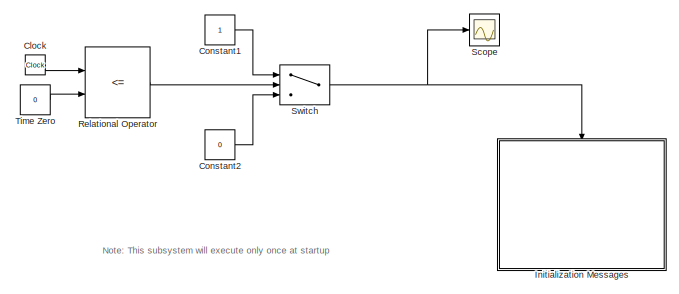
[diagram: root canvas - part 1/3, top left region]
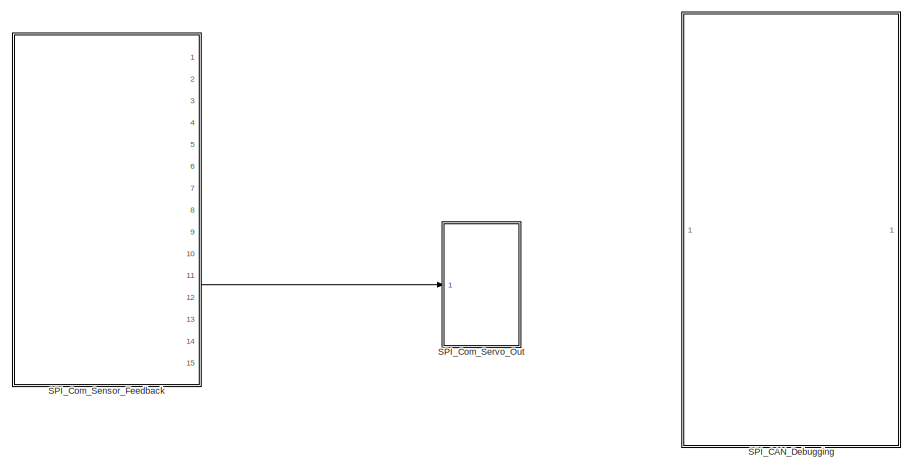
[diagram: root canvas - part 2/3, middle right region]
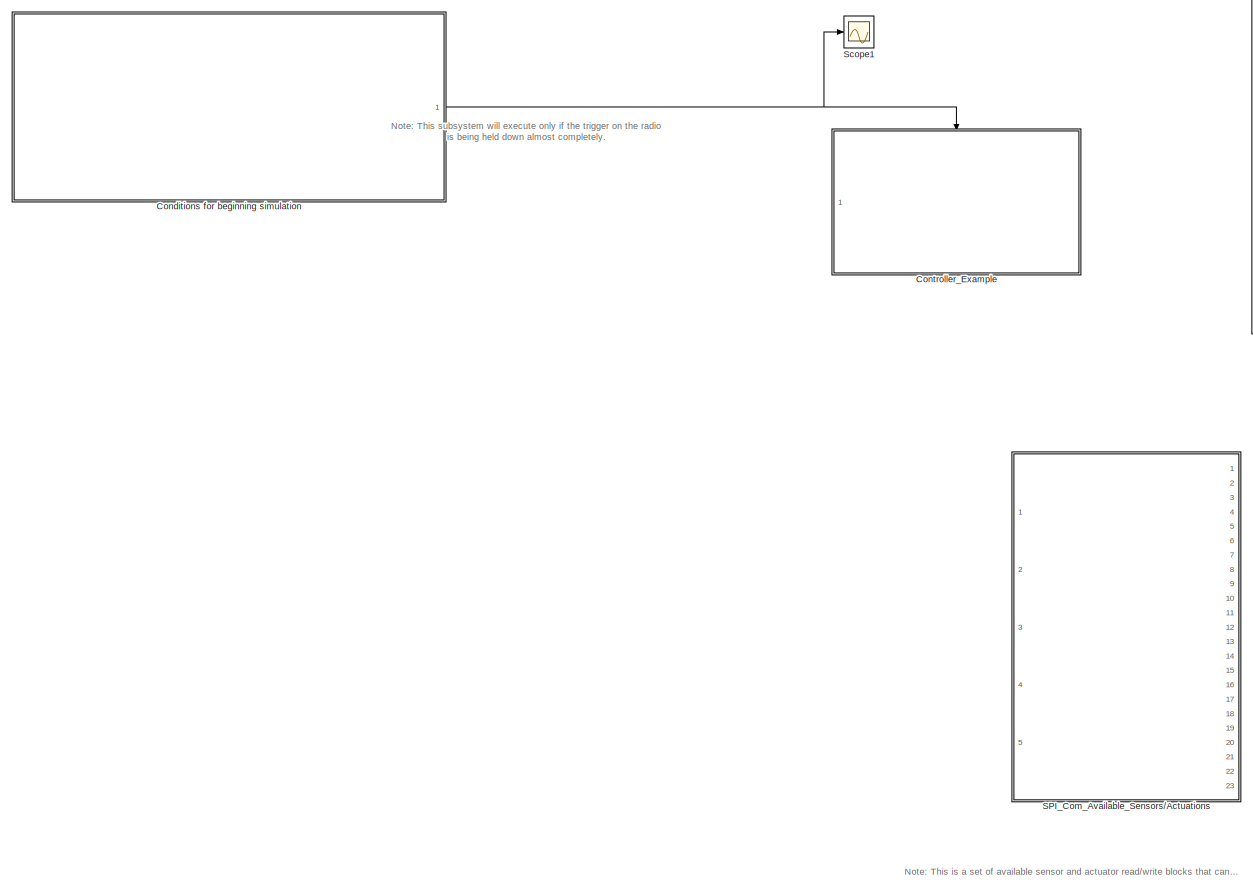
[diagram: root canvas - part 3/3, middle left region]
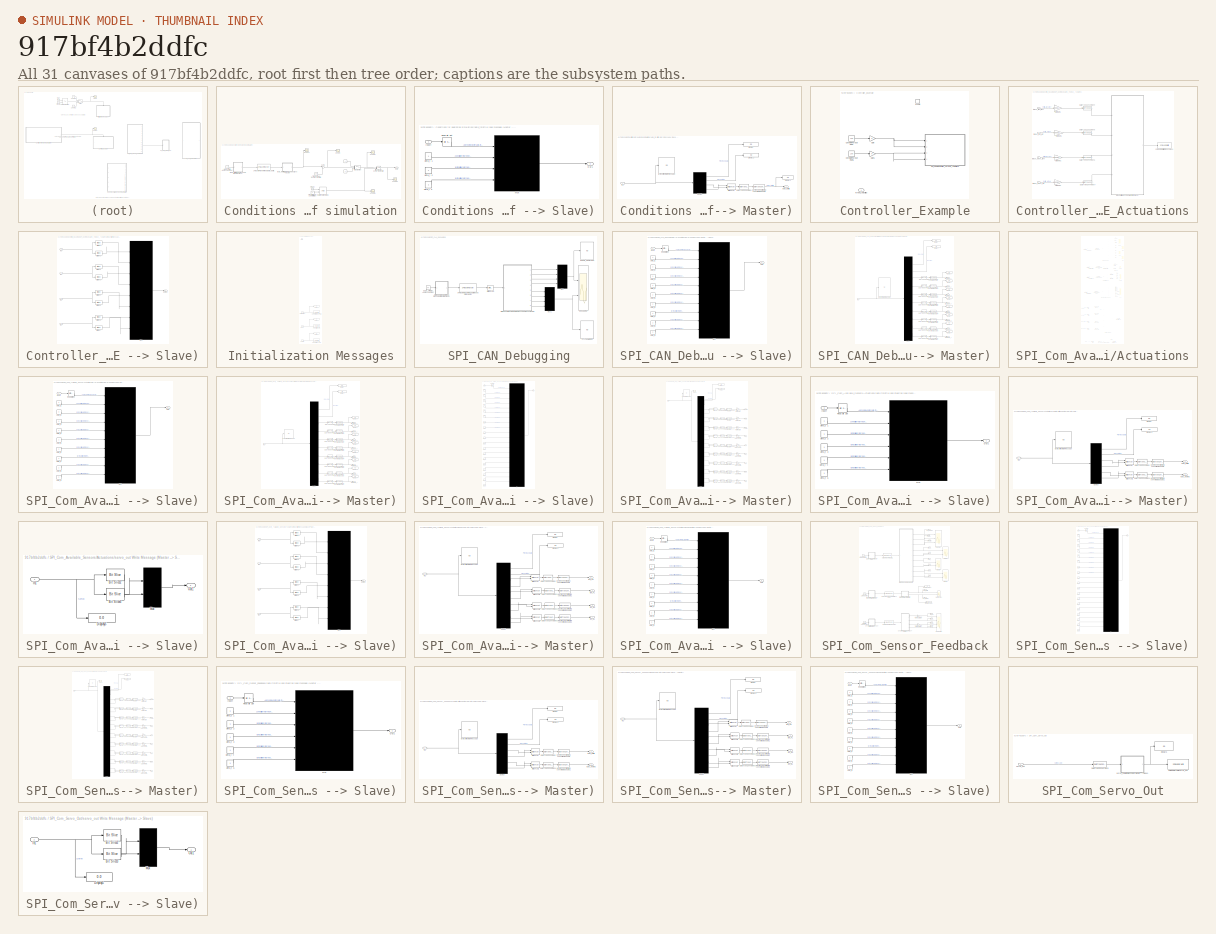
[diagram: thumbnail index - all 31 canvases of the model, root first then tree order]
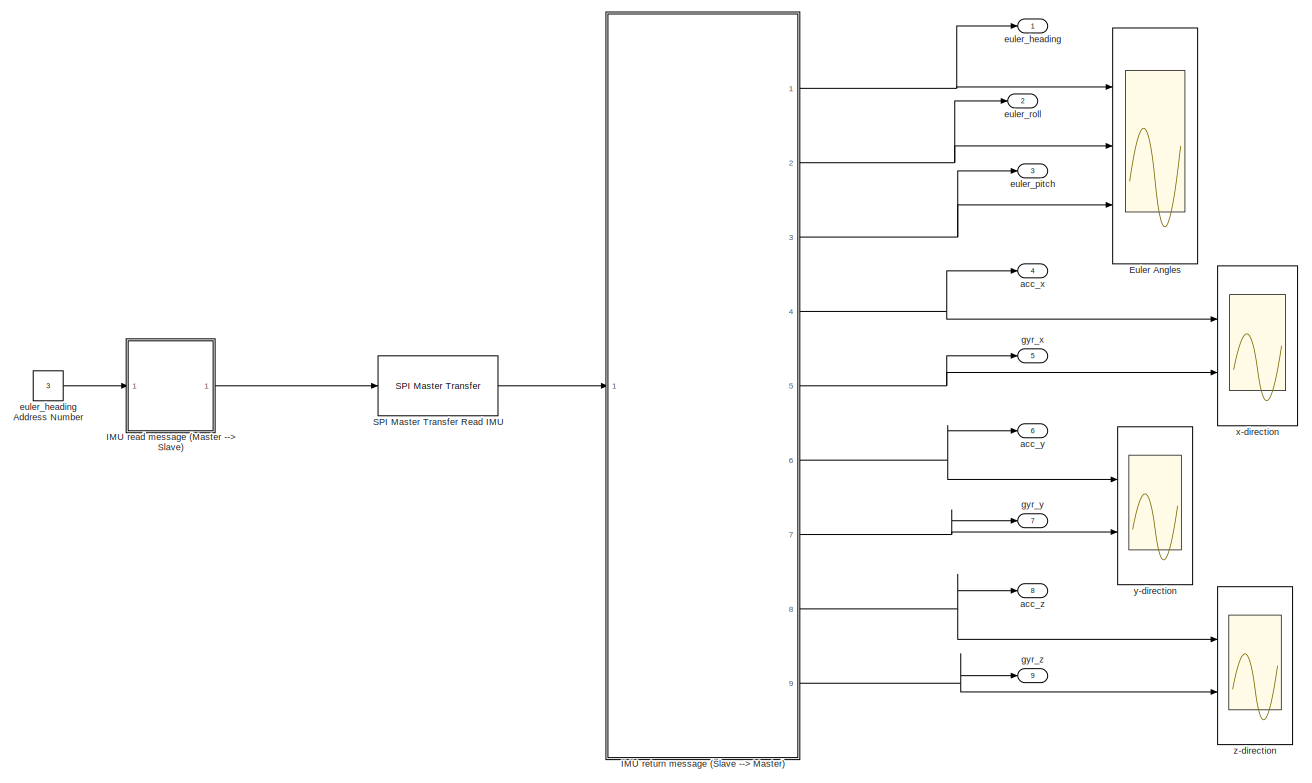
[diagram: SPI_Com_Available_Sensors/Actuations - part 1/5, full width, top band]
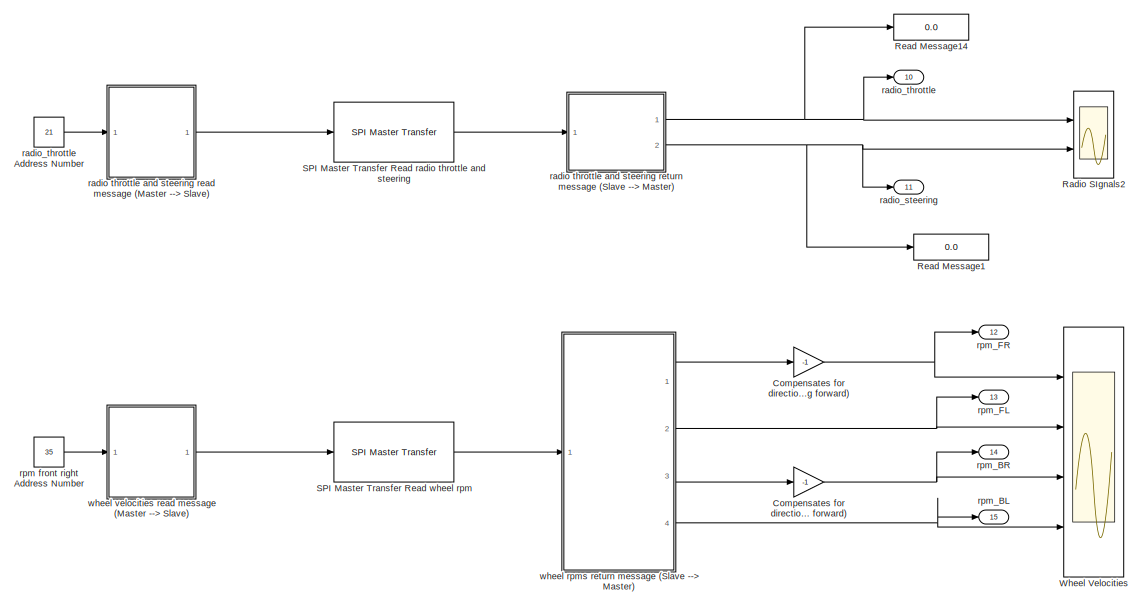
[diagram: SPI_Com_Available_Sensors/Actuations - part 2/5, full width, middle band]
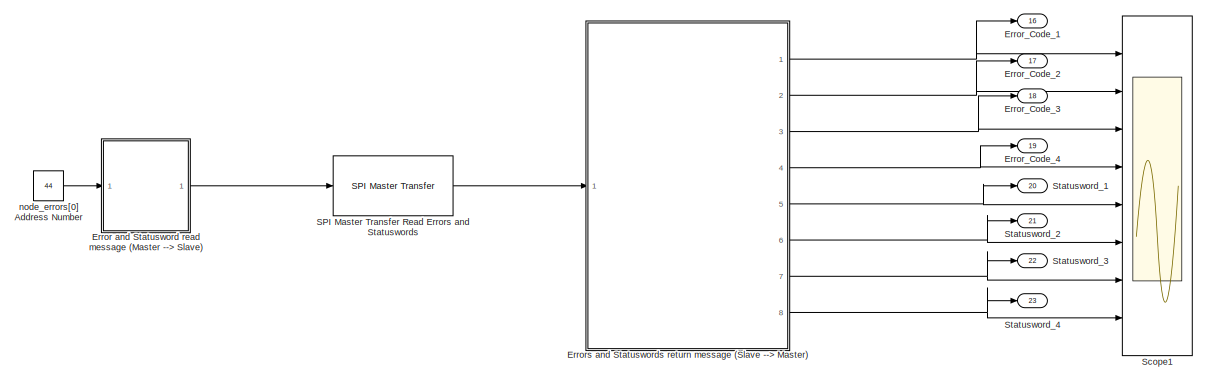
[diagram: SPI_Com_Available_Sensors/Actuations - part 3/5, full width, middle band]
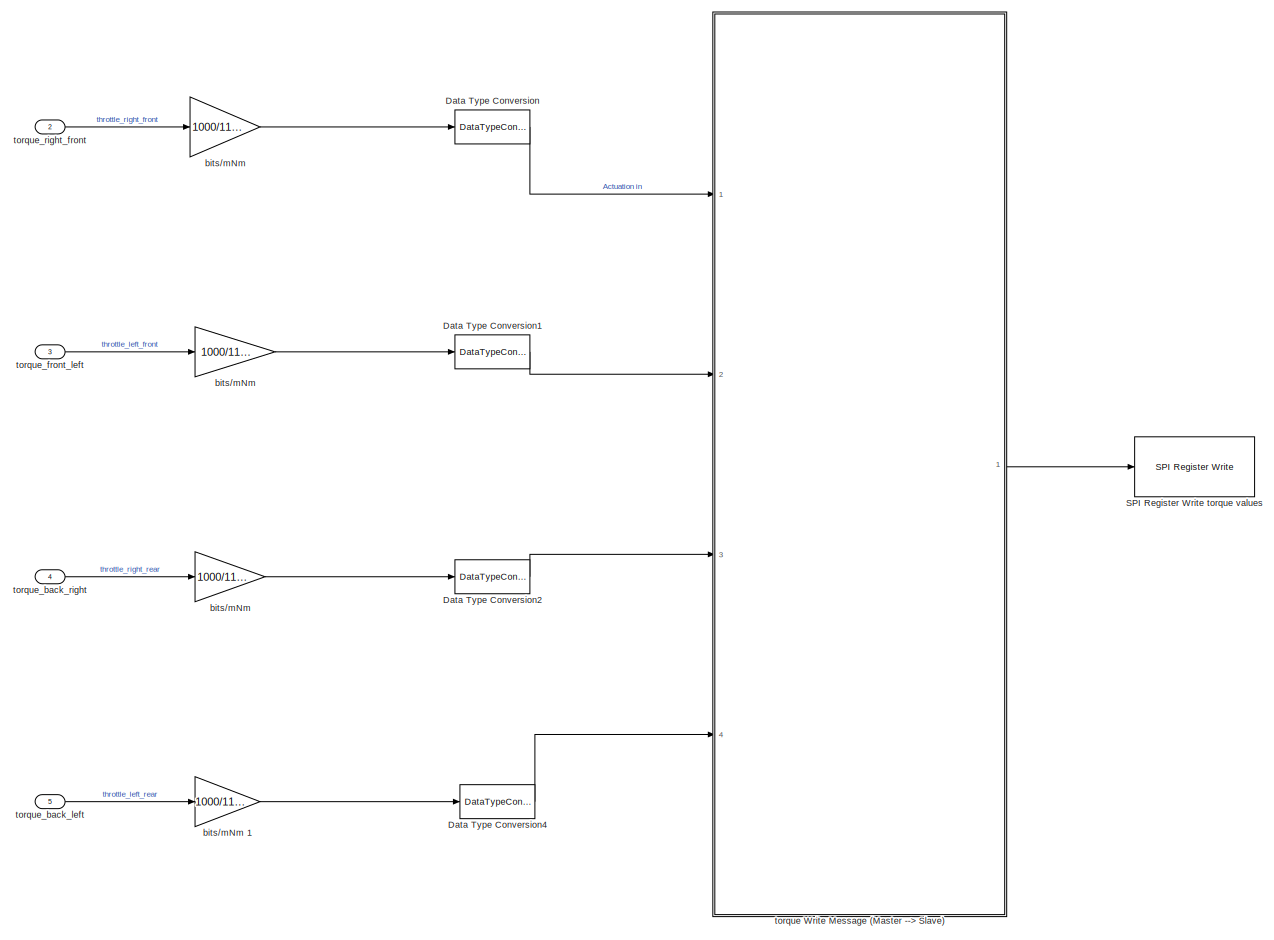
[diagram: SPI_Com_Available_Sensors/Actuations - part 4/5, full width, bottom band]
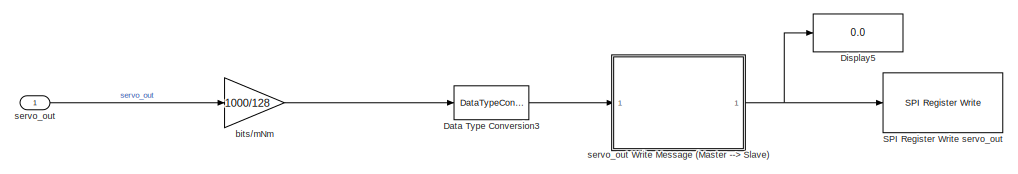
[diagram: SPI_Com_Available_Sensors/Actuations - part 5/5, full width, bottom band]
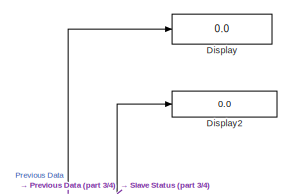
[diagram: SPI_Com_Available_Sensors/Actuations/IMU return message (Slave --> Master) - part 1/4, top center region]
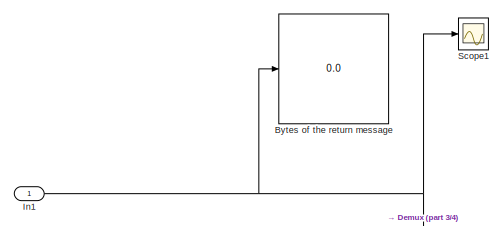
[diagram: SPI_Com_Available_Sensors/Actuations/IMU return message (Slave --> Master) - part 2/4, top left region]
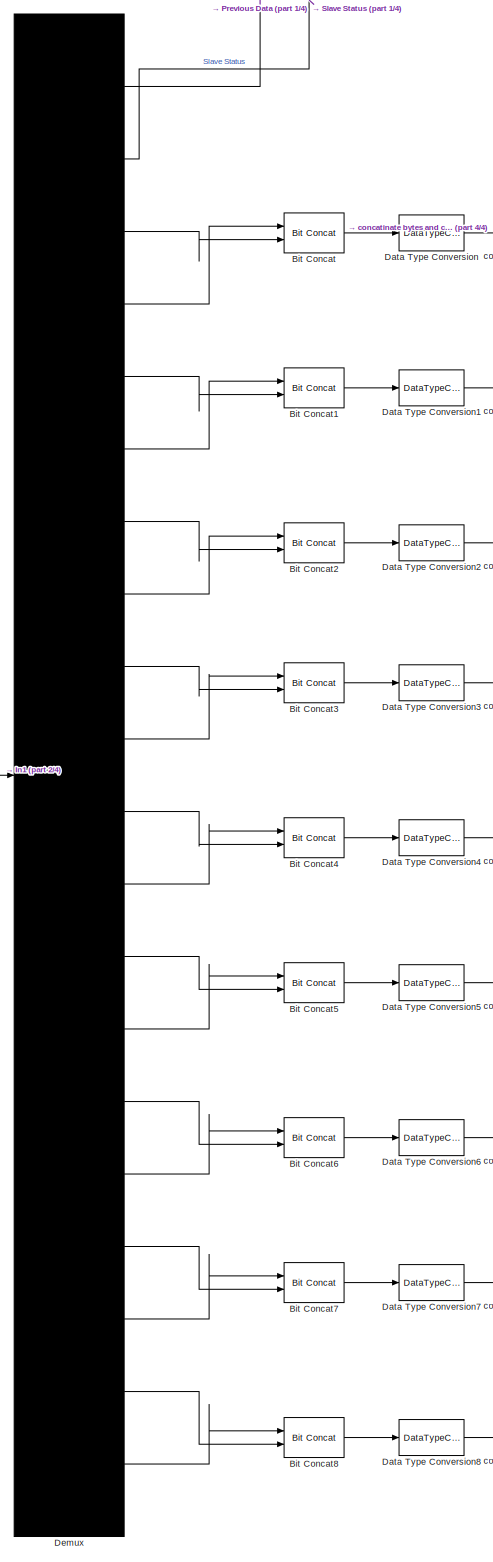
[diagram: SPI_Com_Available_Sensors/Actuations/IMU return message (Slave --> Master) - part 3/4, center side, full height]
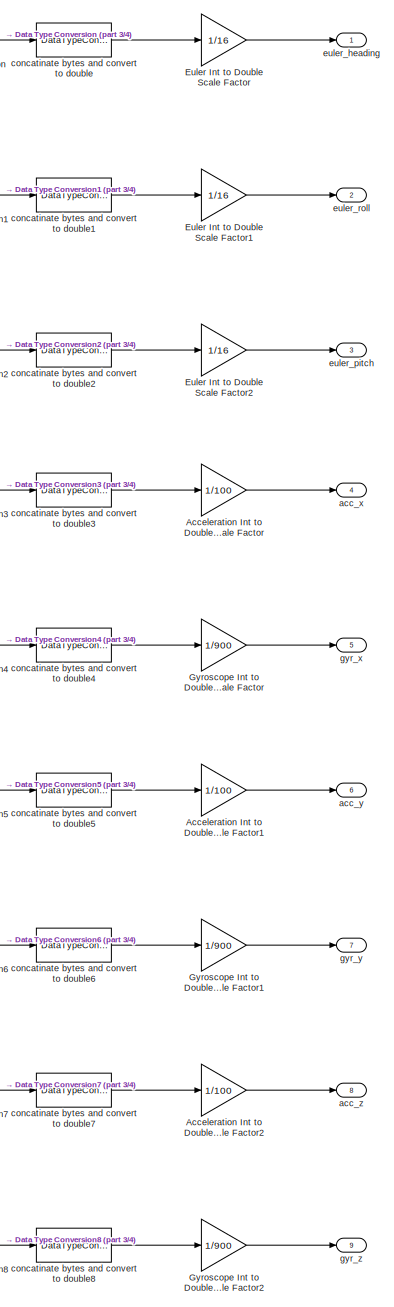
[diagram: SPI_Com_Available_Sensors/Actuations/IMU return message (Slave --> Master) - part 4/4, middle right region]
MODEL slx_917bf4b2ddfc
KIND model
CONFIG AbsTol = auto
CONFIG EnableMultiTasking = on
CONFIG FixedStep = .015
CONFIG MaxStep = auto
CONFIG MinStep = auto
CONFIG RelTol = 1e-3
CONFIG SampleTimeConstraint = Unconstrained
CONFIG SolverName = FixedStepAuto
CONFIG StartTime = 0.0
CONFIG StopTime = inf
BLOCK [Clock] Clock
BLOCK [SubSystem] Conditions for beginning simulation
  Ports = [0, 1]
  RequestExecContextInheritance = off
BLOCK [Constant] Conditions for beginning simulation/ 
  Value = 0
BLOCK [Constant] Conditions for beginning simulation/   
BLOCK [Clock] Conditions for beginning simulation/Clock1
BLOCK [Logic] Conditions for beginning simulation/If trigger pulled down and system given enough time to start
  AllPortsSameDT = off
  IconShape = distinctive
  OutDataTypeStr = boolean
  Ports = [2, 1]
BLOCK [Outport] Conditions for beginning simulation/Out1
  VectorParamsAs1DForOutWhenUnconnected = off
BLOCK [RelationalOperator] Conditions for beginning simulation/Relational Operator1
  InputSameDT = off
  OutDataTypeStr = boolean
  Ports = [2, 1]
  RndMeth = Simplest
BLOCK [Reference] Conditions for beginning simulation/SPI Master Transfer Read radio_throttle  REF=raspberrypilib/SPI Master Transfer
  Ports = [1, 1]
  SourceBlock = raspberrypilib/SPI Master Transfer
  SourceProductBaseCode = RASPPI
  SourceType = codertarget.raspi.internal.SPIMasterTransfer
BLOCK [Scope] Conditions for beginning simulation/Scope
  Floating = off
  NumInputPorts = 1
  Ports = [1]
  ScopeSpecificationString = Simulink.scopes.TimeScopeBlockCfg('CurrentConfiguration', extmgr.ConfigurationSet(extmgr.Configuration('Core','General UI',true),extmgr.Configuration('Core','Source UI',true),extmgr.Configuration('Sources','WiredSimulink',true,'DataLoggingVariableName','ScopeData3'),extmgr.Configuration('Visuals','Time Domain',true,'SerializedDisplays',{struct('MinYLimReal','-201.375','MaxYLimReal','-197.625','YLa...<+1367ch>
BLOCK [Scope] Conditions for beginning simulation/Scope1
  Floating = off
  NumInputPorts = 1
  Ports = [1]
  ScopeSpecificationString = Simulink.scopes.TimeScopeBlockCfg('CurrentConfiguration', extmgr.ConfigurationSet(extmgr.Configuration('Core','General UI',true),extmgr.Configuration('Core','Source UI',true),extmgr.Configuration('Sources','WiredSimulink',true,'DataLoggingVariableName','ScopeData4'),extmgr.Configuration('Visuals','Time Domain',true,'SerializedDisplays',{struct('MinYLimReal','-1.375','MaxYLimReal','2.375','YLabelRe...<+1396ch>
BLOCK [Scope] Conditions for beginning simulation/Scope2
  Floating = off
  NumInputPorts = 1
  Ports = [1]
  ScopeSpecificationString = Simulink.scopes.TimeScopeBlockCfg('CurrentConfiguration', extmgr.ConfigurationSet(extmgr.Configuration('Core','General UI',true),extmgr.Configuration('Core','Source UI',true),extmgr.Configuration('Sources','WiredSimulink',true,'DataLoggingVariableName','ScopeData5'),extmgr.Configuration('Visuals','Time Domain',true,'SerializedDisplays',{struct('MinYLimReal','-1.00000','MaxYLimReal','1.00000','YLab...<+1398ch>
BLOCK [Scope] Conditions for beginning simulation/Scope3
  Floating = off
  NumInputPorts = 1
  Ports = [1]
  ScopeSpecificationString = Simulink.scopes.TimeScopeBlockCfg('CurrentConfiguration', extmgr.ConfigurationSet(extmgr.Configuration('Core','General UI',true),extmgr.Configuration('Core','Source UI',true),extmgr.Configuration('Sources','WiredSimulink',true,'DataLoggingVariableName','ScopeData6'),extmgr.Configuration('Visuals','Time Domain',true,'SerializedDisplays',{struct('MinYLimReal','-0.125','MaxYLimReal','1.125','YLabelRe...<+1367ch>
BLOCK [Scope] Conditions for beginning simulation/Scope4
  Floating = off
  NumInputPorts = 1
  Ports = [1]
  ScopeSpecificationString = Simulink.scopes.TimeScopeBlockCfg('CurrentConfiguration', extmgr.ConfigurationSet(extmgr.Configuration('Core','General UI',true),extmgr.Configuration('Core','Source UI',true),extmgr.Configuration('Sources','WiredSimulink',true,'DataLoggingVariableName','ScopeData7'),extmgr.Configuration('Visuals','Time Domain',true,'SerializedDisplays',{struct('MinYLimReal','-1.00000','MaxYLimReal','1.00000','YLab...<+1445ch>
BLOCK [Sum] Conditions for beginning simulation/Sum1
  Inputs = |+-
  Ports = [2, 1]
BLOCK [Constant] Conditions for beginning simulation/Time allotted for SSIV to initialize
  Value = 5
BLOCK [Switch] Conditions for beginning simulation/Trigger Switch
  InputSameDT = off
  SaturateOnIntegerOverflow = off
BLOCK [Constant] Conditions for beginning simulation/Trigger Value Required for Subsystem Activation
  Value = 200
BLOCK [Constant] Conditions for beginning simulation/radio_throttle Address Number 
  OutDataTypeStr = uint8
  Value = 21
BLOCK [SubSystem] Conditions for beginning simulation/radio_throttle read message (Master --> Slave)
  Ports = [1, 1]
  RequestExecContextInheritance = off
BLOCK [Inport] Conditions for beginning simulation/radio_throttle read message (Master --> Slave)/Inport
BLOCK [Mux] Conditions for beginning simulation/radio_throttle read message (Master --> Slave)/Mux
  DisplayOption = signals
  Ports = [4, 1]
BLOCK [Outport] Conditions for beginning simulation/radio_throttle read message (Master --> Slave)/Out1
  VectorParamsAs1DForOutWhenUnconnected = off
BLOCK [Reference] Conditions for beginning simulation/radio_throttle read message (Master --> Slave)/Read Bit Set  REF=simulink/Logic and Bit
Operations/Bit Set
  Ports = [1, 1]
  SourceBlock = simulink/Logic and Bit\nOperations/Bit Set
  SourceProductBaseCode = SL
  SourceType = Bit Set
BLOCK [Constant] Conditions for beginning simulation/radio_throttle read message (Master --> Slave)/uint8_t 1
  OutDataTypeStr = uint8
BLOCK [Constant] Conditions for beginning simulation/radio_throttle read message (Master --> Slave)/uint8_t 2
  OutDataTypeStr = uint8
BLOCK [Constant] Conditions for beginning simulation/radio_throttle read message (Master --> Slave)/uint8_t 3
  OutDataTypeStr = uint8
BLOCK [SubSystem] Conditions for beginning simulation/radio_throttle return message (Slave --> Master)
  Ports = [1, 1]
  RequestExecContextInheritance = off
BLOCK [DataTypeConversion] Conditions for beginning simulation/radio_throttle return message (Slave --> Master)/8 bytes concatinated converted to double
  OutDataTypeStr = double
  RndMeth = Nearest
  SaturateOnIntegerOverflow = off
BLOCK [Reference] Conditions for beginning simulation/radio_throttle return message (Slave --> Master)/Bit Concat  REF=hdlsllib/Logic and Bit
Operations/Bit Concat
  Ports = [2, 1]
  SourceBlock = hdlsllib/Logic and Bit\nOperations/Bit Concat
  SourceProductBaseCode = SL
  SourceType = Bit Concat
BLOCK [Display] Conditions for beginning simulation/radio_throttle return message (Slave --> Master)/Bytes of the return message
  Decimation = 1
  Format = decimal (Stored Integer)
  Ports = [1]
BLOCK [DataTypeConversion] Conditions for beginning simulation/radio_throttle return message (Slave --> Master)/Data Type Conversion
  OutDataTypeStr = int16
  RndMeth = Nearest
  SaturateOnIntegerOverflow = off
BLOCK [Demux] Conditions for beginning simulation/radio_throttle return message (Slave --> Master)/Demux
  DisplayOption = none
  Ports = [1, 4]
BLOCK [Display] Conditions for beginning simulation/radio_throttle return message (Slave --> Master)/Display
  Decimation = 1
  Format = binary (Stored Integer)
  Ports = [1]
BLOCK [Display] Conditions for beginning simulation/radio_throttle return message (Slave --> Master)/Display1
  Decimation = 1
  Format = decimal (Stored Integer)
  Ports = [1]
BLOCK [Display] Conditions for beginning simulation/radio_throttle return message (Slave --> Master)/Display2
  Decimation = 1
  Format = binary (Stored Integer)
  Ports = [1]
BLOCK [Inport] Conditions for beginning simulation/radio_throttle return message (Slave --> Master)/In1
BLOCK [Outport] Conditions for beginning simulation/radio_throttle return message (Slave --> Master)/radio_throttle
  VectorParamsAs1DForOutWhenUnconnected = off
BLOCK [Constant] Constant1
BLOCK [Constant] Constant2
  Value = 0
BLOCK [SubSystem] Controller_Example
  Ports = [1, 0, 1]
  RequestExecContextInheritance = off
BLOCK [Constant] Controller_Example/Const Mot Torque mNm
  Value = 100
BLOCK [Constant] Controller_Example/Const Mot Torque mNm1
  Value = 100
BLOCK [EnablePort] Controller_Example/Enable
  Ports = []
BLOCK [Gain] Controller_Example/Gain
BLOCK [Gain] Controller_Example/Gain1
BLOCK [SubSystem] Controller_Example/SPI_Communication_Torque_Actuations
  Ports = [4]
  RequestExecContextInheritance = off
BLOCK [DataTypeConversion] Controller_Example/SPI_Communication_Torque_Actuations/Data Type Conversion4
  LockScale = on
  OutDataTypeStr = int16
  RndMeth = Nearest
  SaturateOnIntegerOverflow = off
BLOCK [DataTypeConversion] Controller_Example/SPI_Communication_Torque_Actuations/Data Type Conversion5
  OutDataTypeStr = int16
  RndMeth = Nearest
  SaturateOnIntegerOverflow = off
BLOCK [DataTypeConversion] Controller_Example/SPI_Communication_Torque_Actuations/Data Type Conversion6
  OutDataTypeStr = int16
  RndMeth = Nearest
  SaturateOnIntegerOverflow = off
BLOCK [DataTypeConversion] Controller_Example/SPI_Communication_Torque_Actuations/Data Type Conversion7
  OutDataTypeStr = int16
  RndMeth = Nearest
  SaturateOnIntegerOverflow = off
BLOCK [Reference] Controller_Example/SPI_Communication_Torque_Actuations/SPI Register Write torque values  REF=raspberrypilib/SPI Register Write
  Ports = [1]
  SourceBlock = raspberrypilib/SPI Register Write
  SourceProductBaseCode = RASPPI
  SourceType = codertarget.raspi.internal.SPIRegisterWrite
BLOCK [Gain] Controller_Example/SPI_Communication_Torque_Actuations/bits//mNm   2
  Gain = 1000/118.5
BLOCK [Gain] Controller_Example/SPI_Communication_Torque_Actuations/bits//mNm  1
  Gain = 1000/118.5
BLOCK [Gain] Controller_Example/SPI_Communication_Torque_Actuations/bits//mNm 1
  Gain = 1000/118.5
BLOCK [Gain] Controller_Example/SPI_Communication_Torque_Actuations/bits//mNm1
  Gain = 1000/118.5
BLOCK [SubSystem] Controller_Example/SPI_Communication_Torque_Actuations/torque Write Message (Master --> Slave)
  Ports = [4, 1]
  RequestExecContextInheritance = off
BLOCK [Reference] Controller_Example/SPI_Communication_Torque_Actuations/torque Write Message (Master --> Slave)/Bit Slice  REF=hdlsllib/Logic and Bit
Operations/Bit Slice
  Ports = [1, 1]
  SourceBlock = hdlsllib/Logic and Bit\nOperations/Bit Slice
  SourceProductBaseCode = SL
  SourceType = Bit Slice
BLOCK [Reference] Controller_Example/SPI_Communication_Torque_Actuations/torque Write Message (Master --> Slave)/Bit Slice1  REF=hdlsllib/Logic and Bit
Operations/Bit Slice
  Ports = [1, 1]
  SourceBlock = hdlsllib/Logic and Bit\nOperations/Bit Slice
  SourceProductBaseCode = SL
  SourceType = Bit Slice
BLOCK [Reference] Controller_Example/SPI_Communication_Torque_Actuations/torque Write Message (Master --> Slave)/Bit Slice2  REF=hdlsllib/Logic and Bit
Operations/Bit Slice
  Ports = [1, 1]
  SourceBlock = hdlsllib/Logic and Bit\nOperations/Bit Slice
  SourceProductBaseCode = SL
  SourceType = Bit Slice
BLOCK [Reference] Controller_Example/SPI_Communication_Torque_Actuations/torque Write Message (Master --> Slave)/Bit Slice3  REF=hdlsllib/Logic and Bit
Operations/Bit Slice
  Ports = [1, 1]
  SourceBlock = hdlsllib/Logic and Bit\nOperations/Bit Slice
  SourceProductBaseCode = SL
  SourceType = Bit Slice
BLOCK [Reference] Controller_Example/SPI_Communication_Torque_Actuations/torque Write Message (Master --> Slave)/Bit Slice4  REF=hdlsllib/Logic and Bit
Operations/Bit Slice
  Ports = [1, 1]
  SourceBlock = hdlsllib/Logic and Bit\nOperations/Bit Slice
  SourceProductBaseCode = SL
  SourceType = Bit Slice
BLOCK [Reference] Controller_Example/SPI_Communication_Torque_Actuations/torque Write Message (Master --> Slave)/Bit Slice5  REF=hdlsllib/Logic and Bit
Operations/Bit Slice
  Ports = [1, 1]
  SourceBlock = hdlsllib/Logic and Bit\nOperations/Bit Slice
  SourceProductBaseCode = SL
  SourceType = Bit Slice
BLOCK [Reference] Controller_Example/SPI_Communication_Torque_Actuations/torque Write Message (Master --> Slave)/Bit Slice6  REF=hdlsllib/Logic and Bit
Operations/Bit Slice
  Ports = [1, 1]
  SourceBlock = hdlsllib/Logic and Bit\nOperations/Bit Slice
  SourceProductBaseCode = SL
  SourceType = Bit Slice
BLOCK [Reference] Controller_Example/SPI_Communication_Torque_Actuations/torque Write Message (Master --> Slave)/Bit Slice7  REF=hdlsllib/Logic and Bit
Operations/Bit Slice
  Ports = [1, 1]
  SourceBlock = hdlsllib/Logic and Bit\nOperations/Bit Slice
  SourceProductBaseCode = SL
  SourceType = Bit Slice
BLOCK [Inport] Controller_Example/SPI_Communication_Torque_Actuations/torque Write Message (Master --> Slave)/In1
BLOCK [Inport] Controller_Example/SPI_Communication_Torque_Actuations/torque Write Message (Master --> Slave)/In2
  Port = 2
BLOCK [Inport] Controller_Example/SPI_Communication_Torque_Actuations/torque Write Message (Master --> Slave)/In3
  Port = 3
BLOCK [Inport] Controller_Example/SPI_Communication_Torque_Actuations/torque Write Message (Master --> Slave)/In4
  Port = 4
BLOCK [Mux] Controller_Example/SPI_Communication_Torque_Actuations/torque Write Message (Master --> Slave)/Mux
  DisplayOption = signals
  Inputs = 8
  Ports = [8, 1]
BLOCK [Outport] Controller_Example/SPI_Communication_Torque_Actuations/torque Write Message (Master --> Slave)/Output
  VectorParamsAs1DForOutWhenUnconnected = off
BLOCK [Inport] Controller_Example/SPI_Communication_Torque_Actuations/torque_back_left
  Port = 4
BLOCK [Inport] Controller_Example/SPI_Communication_Torque_Actuations/torque_back_right
  Port = 3
BLOCK [Inport] Controller_Example/SPI_Communication_Torque_Actuations/torque_front_left
  Port = 2
BLOCK [Inport] Controller_Example/SPI_Communication_Torque_Actuations/torque_right_front
BLOCK [Inport] Controller_Example/Wheel_Velocities 
BLOCK [SubSystem] Initialization Messages
  Ports = [0, 0, 1]
  RequestExecContextInheritance = off
BLOCK [Constant] Initialization Messages/Dead Switch
  OutDataTypeStr = uint8
BLOCK [Display] Initialization Messages/Display3
  Decimation = 1
  Format = decimal (Stored Integer)
  Ports = [1]
BLOCK [Display] Initialization Messages/Display4
  Decimation = 1
  Format = decimal (Stored Integer)
  Ports = [1]
BLOCK [Display] Initialization Messages/Display5
  Decimation = 1
  Format = decimal (Stored Integer)
  Ports = [1]
BLOCK [EnablePort] Initialization Messages/Enable
  Ports = []
BLOCK [Constant] Initialization Messages/IMU Reset
  OutDataTypeStr = uint8
BLOCK [Constant] Initialization Messages/Initialize Motor Controllers Command
  OutDataTypeStr = uint8
BLOCK [Reference] Initialization Messages/SPI Register Write dead_switch  REF=raspberrypilib/SPI Register Write
  Ports = [1]
  SourceBlock = raspberrypilib/SPI Register Write
  SourceProductBaseCode = RASPPI
  SourceType = codertarget.raspi.internal.SPIRegisterWrite
BLOCK [Reference] Initialization Messages/SPI Register Write init_motor_controllers  REF=raspberrypilib/SPI Register Write
  Ports = [1]
  SourceBlock = raspberrypilib/SPI Register Write
  SourceProductBaseCode = RASPPI
  SourceType = codertarget.raspi.internal.SPIRegisterWrite
BLOCK [Reference] Initialization Messages/SPI Register Write reset_imu  REF=raspberrypilib/SPI Register Write
  Ports = [1]
  SourceBlock = raspberrypilib/SPI Register Write
  SourceProductBaseCode = RASPPI
  SourceType = codertarget.raspi.internal.SPIRegisterWrite
BLOCK [RelationalOperator] Relational Operator
  InputSameDT = off
  Operator = <=
  OutDataTypeStr = boolean
  Ports = [2, 1]
  RndMeth = Simplest
BLOCK [SubSystem] SPI_CAN_Debugging
  Ports = []
  RequestExecContextInheritance = off
BLOCK [Reference] SPI_CAN_Debugging/Bitwise AND  REF=simulink/Logic and Bit
Operations/Bitwise
Operator
  Ports = [1, 1]
  SourceBlock = simulink/Logic and Bit\nOperations/Bitwise\nOperator
  SourceProductBaseCode = SL
  SourceType = Bitwise Operator
BLOCK [Scope] SPI_CAN_Debugging/Debugging
  Floating = off
  NumInputPorts = 2
  Ports = [2]
  ScopeSpecificationString = Simulink.scopes.TimeScopeBlockCfg('CurrentConfiguration', extmgr.ConfigurationSet(extmgr.Configuration('Core','General UI',true),extmgr.Configuration('Core','Source UI',true),extmgr.Configuration('Sources','WiredSimulink',true,'DataLoggingVariableName','ScopeData4'),extmgr.Configuration('Visuals','Time Domain',true,'SerializedDisplays',{struct('MinYLimReal','-1.00000','MaxYLimReal','1.00000','YLab...<+2525ch>
BLOCK [Display] SPI_CAN_Debugging/ERROR_REGISTERS
  Decimation = 1
  Format = binary (Stored Integer)
  Ports = [1]
BLOCK [SubSystem] SPI_CAN_Debugging/Error and Statusword read message (Master --> Slave)
  Ports = [1, 1]
  RequestExecContextInheritance = off
BLOCK [Inport] SPI_CAN_Debugging/Error and Statusword read message (Master --> Slave)/Inport
BLOCK [Mux] SPI_CAN_Debugging/Error and Statusword read message (Master --> Slave)/Mux
  DisplayOption = signals
  Inputs = 10
  Ports = [10, 1]
BLOCK [Outport] SPI_CAN_Debugging/Error and Statusword read message (Master --> Slave)/Out1
  VectorParamsAs1DForOutWhenUnconnected = off
BLOCK [Reference] SPI_CAN_Debugging/Error and Statusword read message (Master --> Slave)/Read Bit Set  REF=simulink/Logic and Bit
Operations/Bit Set
  Ports = [1, 1]
  SourceBlock = simulink/Logic and Bit\nOperations/Bit Set
  SourceProductBaseCode = SL
  SourceType = Bit Set
BLOCK [Constant] SPI_CAN_Debugging/Error and Statusword read message (Master --> Slave)/uint8_t 1
  OutDataTypeStr = uint8
BLOCK [Constant] SPI_CAN_Debugging/Error and Statusword read message (Master --> Slave)/uint8_t 2
  OutDataTypeStr = uint8
BLOCK [Constant] SPI_CAN_Debugging/Error and Statusword read message (Master --> Slave)/uint8_t 3
  OutDataTypeStr = uint8
BLOCK [Constant] SPI_CAN_Debugging/Error and Statusword read message (Master --> Slave)/uint8_t 4
  OutDataTypeStr = uint8
BLOCK [Constant] SPI_CAN_Debugging/Error and Statusword read message (Master --> Slave)/uint8_t 5
  OutDataTypeStr = uint8
BLOCK [Constant] SPI_CAN_Debugging/Error and Statusword read message (Master --> Slave)/uint8_t 6
  OutDataTypeStr = uint8
BLOCK [Constant] SPI_CAN_Debugging/Error and Statusword read message (Master --> Slave)/uint8_t 7
  OutDataTypeStr = uint8
BLOCK [Constant] SPI_CAN_Debugging/Error and Statusword read message (Master --> Slave)/uint8_t 8
  OutDataTypeStr = uint8
BLOCK [Constant] SPI_CAN_Debugging/Error and Statusword read message (Master --> Slave)/uint8_t 9
  OutDataTypeStr = uint8
BLOCK [SubSystem] SPI_CAN_Debugging/Errors and Statuswords return message (Slave --> Master)
  Ports = [1, 8]
  RequestExecContextInheritance = off
BLOCK [DataTypeConversion] SPI_CAN_Debugging/Errors and Statuswords return message (Slave --> Master)/8 bytes concatinated converted to double
  OutDataTypeStr = double
  RndMeth = Nearest
  SaturateOnIntegerOverflow = off
BLOCK [DataTypeConversion] SPI_CAN_Debugging/Errors and Statuswords return message (Slave --> Master)/8 bytes concatinated converted to double1
  OutDataTypeStr = double
  RndMeth = Nearest
  SaturateOnIntegerOverflow = off
BLOCK [DataTypeConversion] SPI_CAN_Debugging/Errors and Statuswords return message (Slave --> Master)/8 bytes concatinated converted to double2
  OutDataTypeStr = double
  RndMeth = Nearest
  SaturateOnIntegerOverflow = off
BLOCK [DataTypeConversion] SPI_CAN_Debugging/Errors and Statuswords return message (Slave --> Master)/8 bytes concatinated converted to double3
  OutDataTypeStr = double
  RndMeth = Nearest
  SaturateOnIntegerOverflow = off
BLOCK [DataTypeConversion] SPI_CAN_Debugging/Errors and Statuswords return message (Slave --> Master)/8 bytes concatinated converted to double4
  OutDataTypeStr = double
  RndMeth = Nearest
  SaturateOnIntegerOverflow = off
BLOCK [DataTypeConversion] SPI_CAN_Debugging/Errors and Statuswords return message (Slave --> Master)/8 bytes concatinated converted to double5
  OutDataTypeStr = double
  RndMeth = Nearest
  SaturateOnIntegerOverflow = off
BLOCK [DataTypeConversion] SPI_CAN_Debugging/Errors and Statuswords return message (Slave --> Master)/8 bytes concatinated converted to double6
  OutDataTypeStr = double
  RndMeth = Nearest
  SaturateOnIntegerOverflow = off
BLOCK [DataTypeConversion] SPI_CAN_Debugging/Errors and Statuswords return message (Slave --> Master)/8 bytes concatinated converted to double7
  OutDataTypeStr = double
  RndMeth = Nearest
  SaturateOnIntegerOverflow = off
BLOCK [Display] SPI_CAN_Debugging/Errors and Statuswords return message (Slave --> Master)/Bytes of the return message
  Decimation = 1
  Format = decimal (Stored Integer)
  Ports = [1]
BLOCK [DataTypeConversion] SPI_CAN_Debugging/Errors and Statuswords return message (Slave --> Master)/Data Type Conversion
  OutDataTypeStr = int8
  RndMeth = Nearest
  SaturateOnIntegerOverflow = off
BLOCK [DataTypeConversion] SPI_CAN_Debugging/Errors and Statuswords return message (Slave --> Master)/Data Type Conversion1
  OutDataTypeStr = int8
  RndMeth = Nearest
  SaturateOnIntegerOverflow = off
BLOCK [DataTypeConversion] SPI_CAN_Debugging/Errors and Statuswords return message (Slave --> Master)/Data Type Conversion2
  OutDataTypeStr = int8
  RndMeth = Nearest
  SaturateOnIntegerOverflow = off
BLOCK [DataTypeConversion] SPI_CAN_Debugging/Errors and Statuswords return message (Slave --> Master)/Data Type Conversion3
  OutDataTypeStr = int8
  RndMeth = Nearest
  SaturateOnIntegerOverflow = off
BLOCK [DataTypeConversion] SPI_CAN_Debugging/Errors and Statuswords return message (Slave --> Master)/Data Type Conversion4
  OutDataTypeStr = int8
  RndMeth = Nearest
  SaturateOnIntegerOverflow = off
BLOCK [DataTypeConversion] SPI_CAN_Debugging/Errors and Statuswords return message (Slave --> Master)/Data Type Conversion5
  OutDataTypeStr = int8
  RndMeth = Nearest
  SaturateOnIntegerOverflow = off
BLOCK [DataTypeConversion] SPI_CAN_Debugging/Errors and Statuswords return message (Slave --> Master)/Data Type Conversion6
  OutDataTypeStr = int8
  RndMeth = Nearest
  SaturateOnIntegerOverflow = off
BLOCK [DataTypeConversion] SPI_CAN_Debugging/Errors and Statuswords return message (Slave --> Master)/Data Type Conversion7
  OutDataTypeStr = int8
  RndMeth = Nearest
  SaturateOnIntegerOverflow = off
BLOCK [Demux] SPI_CAN_Debugging/Errors and Statuswords return message (Slave --> Master)/Demux
  DisplayOption = none
  Outputs = 10
  Ports = [1, 10]
BLOCK [Display] SPI_CAN_Debugging/Errors and Statuswords return message (Slave --> Master)/Display
  Decimation = 1
  Format = binary (Stored Integer)
  Ports = [1]
BLOCK [Display] SPI_CAN_Debugging/Errors and Statuswords return message (Slave --> Master)/Display1
  Decimation = 1
  Format = hex (Stored Integer)
  Ports = [1]
BLOCK [Display] SPI_CAN_Debugging/Errors and Statuswords return message (Slave --> Master)/Display2
  Decimation = 1
  Format = binary (Stored Integer)
  Ports = [1]
BLOCK [Display] SPI_CAN_Debugging/Errors and Statuswords return message (Slave --> Master)/Display3
  Decimation = 1
  Format = hex (Stored Integer)
  Ports = [1]
BLOCK [Display] SPI_CAN_Debugging/Errors and Statuswords return message (Slave --> Master)/Display4
  Decimation = 1
  Format = hex (Stored Integer)
  Ports = [1]
BLOCK [Display] SPI_CAN_Debugging/Errors and Statuswords return message (Slave --> Master)/Display5
  Decimation = 1
  Format = hex (Stored Integer)
  Ports = [1]
BLOCK [Display] SPI_CAN_Debugging/Errors and Statuswords return message (Slave --> Master)/Display6
  Decimation = 1
  Format = hex (Stored Integer)
  Ports = [1]
BLOCK [Display] SPI_CAN_Debugging/Errors and Statuswords return message (Slave --> Master)/Display7
  Decimation = 1
  Format = hex (Stored Integer)
  Ports = [1]
BLOCK [Display] SPI_CAN_Debugging/Errors and Statuswords return message (Slave --> Master)/Display8
  Decimation = 1
  Format = hex (Stored Integer)
  Ports = [1]
BLOCK [Display] SPI_CAN_Debugging/Errors and Statuswords return message (Slave --> Master)/Display9
  Decimation = 1
  Format = hex (Stored Integer)
  Ports = [1]
BLOCK [Outport] SPI_CAN_Debugging/Errors and Statuswords return message (Slave --> Master)/Error_Code_1
  VectorParamsAs1DForOutWhenUnconnected = off
BLOCK [Outport] SPI_CAN_Debugging/Errors and Statuswords return message (Slave --> Master)/Error_Code_2
  Port = 2
  VectorParamsAs1DForOutWhenUnconnected = off
BLOCK [Outport] SPI_CAN_Debugging/Errors and Statuswords return message (Slave --> Master)/Error_Code_3
  Port = 3
  VectorParamsAs1DForOutWhenUnconnected = off
BLOCK [Outport] SPI_CAN_Debugging/Errors and Statuswords return message (Slave --> Master)/Error_Code_4
  Port = 4
  VectorParamsAs1DForOutWhenUnconnected = off
BLOCK [Inport] SPI_CAN_Debugging/Errors and Statuswords return message (Slave --> Master)/In1
BLOCK [Outport] SPI_CAN_Debugging/Errors and Statuswords return message (Slave --> Master)/Statusword_1
  Port = 5
  VectorParamsAs1DForOutWhenUnconnected = off
BLOCK [Outport] SPI_CAN_Debugging/Errors and Statuswords return message (Slave --> Master)/Statusword_2
  Port = 6
  VectorParamsAs1DForOutWhenUnconnected = off
BLOCK [Outport] SPI_CAN_Debugging/Errors and Statuswords return message (Slave --> Master)/Statusword_3
  Port = 7
  VectorParamsAs1DForOutWhenUnconnected = off
BLOCK [Outport] SPI_CAN_Debugging/Errors and Statuswords return message (Slave --> Master)/Statusword_4
  Port = 8
  VectorParamsAs1DForOutWhenUnconnected = off
BLOCK [Mux] SPI_CAN_Debugging/Mux
  DisplayOption = bar
  Ports = [4, 1]
BLOCK [Mux] SPI_CAN_Debugging/Mux1
  DisplayOption = bar
  Ports = [4, 1]
BLOCK [Reference] SPI_CAN_Debugging/SPI Master Transfer Read Errors and Statuswords  REF=raspberrypilib/SPI Master Transfer
  Ports = [1, 1]
  SourceBlock = raspberrypilib/SPI Master Transfer
  SourceProductBaseCode = RASPPI
  SourceType = codertarget.raspi.internal.SPIMasterTransfer
BLOCK [Display] SPI_CAN_Debugging/STATUSWORDS
  Decimation = 1
  Format = binary (Stored Integer)
  Ports = [1]
BLOCK [Constant] SPI_CAN_Debugging/node_errors[0] Address Number
  OutDataTypeStr = uint8
  Value = 44
BLOCK [SubSystem] SPI_Com_Available_Sensors//Actuations
  Commented = on
  Ports = [5, 23]
  RequestExecContextInheritance = off
BLOCK [Gain] SPI_Com_Available_Sensors//Actuations/Compensates for direction of spin (want positive to be rolling forward)
  Gain = -1
BLOCK [Gain] SPI_Com_Available_Sensors//Actuations/Compensates for direction of spin (want positive to be rolling forward)  
  Gain = -1
BLOCK [DataTypeConversion] SPI_Com_Available_Sensors//Actuations/Data Type Conversion
  LockScale = on
  OutDataTypeStr = int16
  RndMeth = Nearest
  SaturateOnIntegerOverflow = off
BLOCK [DataTypeConversion] SPI_Com_Available_Sensors//Actuations/Data Type Conversion1
  OutDataTypeStr = int16
  RndMeth = Nearest
  SaturateOnIntegerOverflow = off
BLOCK [DataTypeConversion] SPI_Com_Available_Sensors//Actuations/Data Type Conversion2
  OutDataTypeStr = int16
  RndMeth = Nearest
  SaturateOnIntegerOverflow = off
BLOCK [DataTypeConversion] SPI_Com_Available_Sensors//Actuations/Data Type Conversion3
  OutDataTypeStr = int16
  RndMeth = Nearest
  SaturateOnIntegerOverflow = off
BLOCK [DataTypeConversion] SPI_Com_Available_Sensors//Actuations/Data Type Conversion4
  OutDataTypeStr = int16
  RndMeth = Nearest
  SaturateOnIntegerOverflow = off
BLOCK [Display] SPI_Com_Available_Sensors//Actuations/Display5
  Decimation = 1
  Format = decimal (Stored Integer)
  Ports = [1]
BLOCK [SubSystem] SPI_Com_Available_Sensors//Actuations/Error and Statusword read message (Master --> Slave)
  Ports = [1, 1]
  RequestExecContextInheritance = off
BLOCK [Inport] SPI_Com_Available_Sensors//Actuations/Error and Statusword read message (Master --> Slave)/Inport
BLOCK [Mux] SPI_Com_Available_Sensors//Actuations/Error and Statusword read message (Master --> Slave)/Mux
  DisplayOption = signals
  Inputs = 10
  Ports = [10, 1]
BLOCK [Outport] SPI_Com_Available_Sensors//Actuations/Error and Statusword read message (Master --> Slave)/Out1
  VectorParamsAs1DForOutWhenUnconnected = off
BLOCK [Reference] SPI_Com_Available_Sensors//Actuations/Error and Statusword read message (Master --> Slave)/Read Bit Set  REF=simulink/Logic and Bit
Operations/Bit Set
  Ports = [1, 1]
  SourceBlock = simulink/Logic and Bit\nOperations/Bit Set
  SourceProductBaseCode = SL
  SourceType = Bit Set
BLOCK [Constant] SPI_Com_Available_Sensors//Actuations/Error and Statusword read message (Master --> Slave)/uint8_t 1
  OutDataTypeStr = uint8
BLOCK [Constant] SPI_Com_Available_Sensors//Actuations/Error and Statusword read message (Master --> Slave)/uint8_t 2
  OutDataTypeStr = uint8
BLOCK [Constant] SPI_Com_Available_Sensors//Actuations/Error and Statusword read message (Master --> Slave)/uint8_t 3
  OutDataTypeStr = uint8
BLOCK [Constant] SPI_Com_Available_Sensors//Actuations/Error and Statusword read message (Master --> Slave)/uint8_t 4
  OutDataTypeStr = uint8
BLOCK [Constant] SPI_Com_Available_Sensors//Actuations/Error and Statusword read message (Master --> Slave)/uint8_t 5
  OutDataTypeStr = uint8
BLOCK [Constant] SPI_Com_Available_Sensors//Actuations/Error and Statusword read message (Master --> Slave)/uint8_t 6
  OutDataTypeStr = uint8
BLOCK [Constant] SPI_Com_Available_Sensors//Actuations/Error and Statusword read message (Master --> Slave)/uint8_t 7
  OutDataTypeStr = uint8
BLOCK [Constant] SPI_Com_Available_Sensors//Actuations/Error and Statusword read message (Master --> Slave)/uint8_t 8
  OutDataTypeStr = uint8
BLOCK [Constant] SPI_Com_Available_Sensors//Actuations/Error and Statusword read message (Master --> Slave)/uint8_t 9
  OutDataTypeStr = uint8
BLOCK [Outport] SPI_Com_Available_Sensors//Actuations/Error_Code_1
  Port = 16
  VectorParamsAs1DForOutWhenUnconnected = off
BLOCK [Outport] SPI_Com_Available_Sensors//Actuations/Error_Code_2
  Port = 17
  VectorParamsAs1DForOutWhenUnconnected = off
BLOCK [Outport] SPI_Com_Available_Sensors//Actuations/Error_Code_3
  Port = 18
  VectorParamsAs1DForOutWhenUnconnected = off
BLOCK [Outport] SPI_Com_Available_Sensors//Actuations/Error_Code_4
  Port = 19
  VectorParamsAs1DForOutWhenUnconnected = off
BLOCK [SubSystem] SPI_Com_Available_Sensors//Actuations/Errors and Statuswords return message (Slave --> Master)
  Ports = [1, 8]
  RequestExecContextInheritance = off
BLOCK [DataTypeConversion] SPI_Com_Available_Sensors//Actuations/Errors and Statuswords return message (Slave --> Master)/8 bytes concatinated converted to double
  OutDataTypeStr = double
  RndMeth = Nearest
  SaturateOnIntegerOverflow = off
BLOCK [DataTypeConversion] SPI_Com_Available_Sensors//Actuations/Errors and Statuswords return message (Slave --> Master)/8 bytes concatinated converted to double1
  OutDataTypeStr = double
  RndMeth = Nearest
  SaturateOnIntegerOverflow = off
BLOCK [DataTypeConversion] SPI_Com_Available_Sensors//Actuations/Errors and Statuswords return message (Slave --> Master)/8 bytes concatinated converted to double2
  OutDataTypeStr = double
  RndMeth = Nearest
  SaturateOnIntegerOverflow = off
BLOCK [DataTypeConversion] SPI_Com_Available_Sensors//Actuations/Errors and Statuswords return message (Slave --> Master)/8 bytes concatinated converted to double3
  OutDataTypeStr = double
  RndMeth = Nearest
  SaturateOnIntegerOverflow = off
BLOCK [DataTypeConversion] SPI_Com_Available_Sensors//Actuations/Errors and Statuswords return message (Slave --> Master)/8 bytes concatinated converted to double4
  OutDataTypeStr = double
  RndMeth = Nearest
  SaturateOnIntegerOverflow = off
BLOCK [DataTypeConversion] SPI_Com_Available_Sensors//Actuations/Errors and Statuswords return message (Slave --> Master)/8 bytes concatinated converted to double5
  OutDataTypeStr = double
  RndMeth = Nearest
  SaturateOnIntegerOverflow = off
BLOCK [DataTypeConversion] SPI_Com_Available_Sensors//Actuations/Errors and Statuswords return message (Slave --> Master)/8 bytes concatinated converted to double6
  OutDataTypeStr = double
  RndMeth = Nearest
  SaturateOnIntegerOverflow = off
BLOCK [DataTypeConversion] SPI_Com_Available_Sensors//Actuations/Errors and Statuswords return message (Slave --> Master)/8 bytes concatinated converted to double7
  OutDataTypeStr = double
  RndMeth = Nearest
  SaturateOnIntegerOverflow = off
BLOCK [Display] SPI_Com_Available_Sensors//Actuations/Errors and Statuswords return message (Slave --> Master)/Bytes of the return message
  Decimation = 1
  Format = decimal (Stored Integer)
  Ports = [1]
BLOCK [DataTypeConversion] SPI_Com_Available_Sensors//Actuations/Errors and Statuswords return message (Slave --> Master)/Data Type Conversion
  OutDataTypeStr = int8
  RndMeth = Nearest
  SaturateOnIntegerOverflow = off
BLOCK [DataTypeConversion] SPI_Com_Available_Sensors//Actuations/Errors and Statuswords return message (Slave --> Master)/Data Type Conversion1
  OutDataTypeStr = int8
  RndMeth = Nearest
  SaturateOnIntegerOverflow = off
BLOCK [DataTypeConversion] SPI_Com_Available_Sensors//Actuations/Errors and Statuswords return message (Slave --> Master)/Data Type Conversion2
  OutDataTypeStr = int8
  RndMeth = Nearest
  SaturateOnIntegerOverflow = off
BLOCK [DataTypeConversion] SPI_Com_Available_Sensors//Actuations/Errors and Statuswords return message (Slave --> Master)/Data Type Conversion3
  OutDataTypeStr = int8
  RndMeth = Nearest
  SaturateOnIntegerOverflow = off
BLOCK [DataTypeConversion] SPI_Com_Available_Sensors//Actuations/Errors and Statuswords return message (Slave --> Master)/Data Type Conversion4
  OutDataTypeStr = int8
  RndMeth = Nearest
  SaturateOnIntegerOverflow = off
BLOCK [DataTypeConversion] SPI_Com_Available_Sensors//Actuations/Errors and Statuswords return message (Slave --> Master)/Data Type Conversion5
  OutDataTypeStr = int8
  RndMeth = Nearest
  SaturateOnIntegerOverflow = off
BLOCK [DataTypeConversion] SPI_Com_Available_Sensors//Actuations/Errors and Statuswords return message (Slave --> Master)/Data Type Conversion6
  OutDataTypeStr = int8
  RndMeth = Nearest
  SaturateOnIntegerOverflow = off
BLOCK [DataTypeConversion] SPI_Com_Available_Sensors//Actuations/Errors and Statuswords return message (Slave --> Master)/Data Type Conversion7
  OutDataTypeStr = int8
  RndMeth = Nearest
  SaturateOnIntegerOverflow = off
BLOCK [Demux] SPI_Com_Available_Sensors//Actuations/Errors and Statuswords return message (Slave --> Master)/Demux
  DisplayOption = none
  Outputs = 10
  Ports = [1, 10]
BLOCK [Display] SPI_Com_Available_Sensors//Actuations/Errors and Statuswords return message (Slave --> Master)/Display
  Decimation = 1
  Format = binary (Stored Integer)
  Ports = [1]
BLOCK [Display] SPI_Com_Available_Sensors//Actuations/Errors and Statuswords return message (Slave --> Master)/Display1
  Decimation = 1
  Format = decimal (Stored Integer)
  Ports = [1]
BLOCK [Display] SPI_Com_Available_Sensors//Actuations/Errors and Statuswords return message (Slave --> Master)/Display2
  Decimation = 1
  Format = binary (Stored Integer)
  Ports = [1]
BLOCK [Display] SPI_Com_Available_Sensors//Actuations/Errors and Statuswords return message (Slave --> Master)/Display3
  Decimation = 1
  Format = decimal (Stored Integer)
  Ports = [1]
BLOCK [Display] SPI_Com_Available_Sensors//Actuations/Errors and Statuswords return message (Slave --> Master)/Display4
  Decimation = 1
  Format = decimal (Stored Integer)
  Ports = [1]
BLOCK [Display] SPI_Com_Available_Sensors//Actuations/Errors and Statuswords return message (Slave --> Master)/Display5
  Decimation = 1
  Format = decimal (Stored Integer)
  Ports = [1]
BLOCK [Display] SPI_Com_Available_Sensors//Actuations/Errors and Statuswords return message (Slave --> Master)/Display6
  Decimation = 1
  Format = decimal (Stored Integer)
  Ports = [1]
BLOCK [Display] SPI_Com_Available_Sensors//Actuations/Errors and Statuswords return message (Slave --> Master)/Display7
  Decimation = 1
  Format = decimal (Stored Integer)
  Ports = [1]
BLOCK [Display] SPI_Com_Available_Sensors//Actuations/Errors and Statuswords return message (Slave --> Master)/Display8
  Decimation = 1
  Format = decimal (Stored Integer)
  Ports = [1]
BLOCK [Display] SPI_Com_Available_Sensors//Actuations/Errors and Statuswords return message (Slave --> Master)/Display9
  Decimation = 1
  Format = decimal (Stored Integer)
  Ports = [1]
BLOCK [Outport] SPI_Com_Available_Sensors//Actuations/Errors and Statuswords return message (Slave --> Master)/Error_Code_1
  VectorParamsAs1DForOutWhenUnconnected = off
BLOCK [Outport] SPI_Com_Available_Sensors//Actuations/Errors and Statuswords return message (Slave --> Master)/Error_Code_2
  Port = 2
  VectorParamsAs1DForOutWhenUnconnected = off
BLOCK [Outport] SPI_Com_Available_Sensors//Actuations/Errors and Statuswords return message (Slave --> Master)/Error_Code_3
  Port = 3
  VectorParamsAs1DForOutWhenUnconnected = off
BLOCK [Outport] SPI_Com_Available_Sensors//Actuations/Errors and Statuswords return message (Slave --> Master)/Error_Code_4
  Port = 4
  VectorParamsAs1DForOutWhenUnconnected = off
BLOCK [Inport] SPI_Com_Available_Sensors//Actuations/Errors and Statuswords return message (Slave --> Master)/In1
BLOCK [Outport] SPI_Com_Available_Sensors//Actuations/Errors and Statuswords return message (Slave --> Master)/Statusword_1
  Port = 5
  VectorParamsAs1DForOutWhenUnconnected = off
BLOCK [Outport] SPI_Com_Available_Sensors//Actuations/Errors and Statuswords return message (Slave --> Master)/Statusword_2
  Port = 6
  VectorParamsAs1DForOutWhenUnconnected = off
BLOCK [Outport] SPI_Com_Available_Sensors//Actuations/Errors and Statuswords return message (Slave --> Master)/Statusword_3
  Port = 7
  VectorParamsAs1DForOutWhenUnconnected = off
BLOCK [Outport] SPI_Com_Available_Sensors//Actuations/Errors and Statuswords return message (Slave --> Master)/Statusword_4
  Port = 8
  VectorParamsAs1DForOutWhenUnconnected = off
BLOCK [Scope] SPI_Com_Available_Sensors//Actuations/Euler Angles
  Floating = off
  NumInputPorts = 3
  Ports = [3]
  ScopeSpecificationString = Simulink.scopes.TimeScopeBlockCfg('CurrentConfiguration', extmgr.ConfigurationSet(extmgr.Configuration('Core','General UI',true),extmgr.Configuration('Core','Source UI',true),extmgr.Configuration('Sources','WiredSimulink',true,'DataLoggingVariableName','ScopeData4'),extmgr.Configuration('Visuals','Time Domain',true,'SerializedDisplays',{struct('MinYLimReal','1.67188','MaxYLimReal','11.20313','YLab...<+2908ch>
BLOCK [SubSystem] SPI_Com_Available_Sensors//Actuations/IMU read message (Master --> Slave)
  Ports = [1, 1]
  RequestExecContextInheritance = off
BLOCK [Inport] SPI_Com_Available_Sensors//Actuations/IMU read message (Master --> Slave)/Inport
BLOCK [Mux] SPI_Com_Available_Sensors//Actuations/IMU read message (Master --> Slave)/Mux
  DisplayOption = signals
  Inputs = 20
  Ports = [20, 1]
BLOCK [Outport] SPI_Com_Available_Sensors//Actuations/IMU read message (Master --> Slave)/Out1
  VectorParamsAs1DForOutWhenUnconnected = off
BLOCK [Reference] SPI_Com_Available_Sensors//Actuations/IMU read message (Master --> Slave)/Read Bit Set  REF=simulink/Logic and Bit
Operations/Bit Set
  Ports = [1, 1]
  SourceBlock = simulink/Logic and Bit\nOperations/Bit Set
  SourceProductBaseCode = SL
  SourceType = Bit Set
BLOCK [Constant] SPI_Com_Available_Sensors//Actuations/IMU read message (Master --> Slave)/uint8_t  1
  OutDataTypeStr = uint8
BLOCK [Constant] SPI_Com_Available_Sensors//Actuations/IMU read message (Master --> Slave)/uint8_t  10
  OutDataTypeStr = uint8
BLOCK [Constant] SPI_Com_Available_Sensors//Actuations/IMU read message (Master --> Slave)/uint8_t  11
  OutDataTypeStr = uint8
BLOCK [Constant] SPI_Com_Available_Sensors//Actuations/IMU read message (Master --> Slave)/uint8_t  12
  OutDataTypeStr = uint8
BLOCK [Constant] SPI_Com_Available_Sensors//Actuations/IMU read message (Master --> Slave)/uint8_t  13
  OutDataTypeStr = uint8
BLOCK [Constant] SPI_Com_Available_Sensors//Actuations/IMU read message (Master --> Slave)/uint8_t  14
  OutDataTypeStr = uint8
BLOCK [Constant] SPI_Com_Available_Sensors//Actuations/IMU read message (Master --> Slave)/uint8_t  15
  OutDataTypeStr = uint8
BLOCK [Constant] SPI_Com_Available_Sensors//Actuations/IMU read message (Master --> Slave)/uint8_t  16
  OutDataTypeStr = uint8
BLOCK [Constant] SPI_Com_Available_Sensors//Actuations/IMU read message (Master --> Slave)/uint8_t  17
  OutDataTypeStr = uint8
BLOCK [Constant] SPI_Com_Available_Sensors//Actuations/IMU read message (Master --> Slave)/uint8_t  18
  OutDataTypeStr = uint8
BLOCK [Constant] SPI_Com_Available_Sensors//Actuations/IMU read message (Master --> Slave)/uint8_t  19
  OutDataTypeStr = uint8
BLOCK [Constant] SPI_Com_Available_Sensors//Actuations/IMU read message (Master --> Slave)/uint8_t  2
  OutDataTypeStr = uint8
BLOCK [Constant] SPI_Com_Available_Sensors//Actuations/IMU read message (Master --> Slave)/uint8_t  3
  OutDataTypeStr = uint8
BLOCK [Constant] SPI_Com_Available_Sensors//Actuations/IMU read message (Master --> Slave)/uint8_t  4
  OutDataTypeStr = uint8
BLOCK [Constant] SPI_Com_Available_Sensors//Actuations/IMU read message (Master --> Slave)/uint8_t  5
  OutDataTypeStr = uint8
BLOCK [Constant] SPI_Com_Available_Sensors//Actuations/IMU read message (Master --> Slave)/uint8_t  6
  OutDataTypeStr = uint8
BLOCK [Constant] SPI_Com_Available_Sensors//Actuations/IMU read message (Master --> Slave)/uint8_t  7
  OutDataTypeStr = uint8
BLOCK [Constant] SPI_Com_Available_Sensors//Actuations/IMU read message (Master --> Slave)/uint8_t  8
  OutDataTypeStr = uint8
BLOCK [Constant] SPI_Com_Available_Sensors//Actuations/IMU read message (Master --> Slave)/uint8_t  9
  OutDataTypeStr = uint8
BLOCK [SubSystem] SPI_Com_Available_Sensors//Actuations/IMU return message (Slave --> Master)
  Ports = [1, 9]
  RequestExecContextInheritance = off
BLOCK [Gain] SPI_Com_Available_Sensors//Actuations/IMU return message (Slave --> Master)/Acceleration Int to Double Scale Factor
  Gain = 1/100
BLOCK [Gain] SPI_Com_Available_Sensors//Actuations/IMU return message (Slave --> Master)/Acceleration Int to Double Scale Factor1
  Gain = 1/100
BLOCK [Gain] SPI_Com_Available_Sensors//Actuations/IMU return message (Slave --> Master)/Acceleration Int to Double Scale Factor2
  Gain = 1/100
BLOCK [Reference] SPI_Com_Available_Sensors//Actuations/IMU return message (Slave --> Master)/Bit Concat  REF=hdlsllib/Logic and Bit
Operations/Bit Concat
  Ports = [2, 1]
  SourceBlock = hdlsllib/Logic and Bit\nOperations/Bit Concat
  SourceProductBaseCode = SL
  SourceType = Bit Concat
BLOCK [Reference] SPI_Com_Available_Sensors//Actuations/IMU return message (Slave --> Master)/Bit Concat1  REF=hdlsllib/Logic and Bit
Operations/Bit Concat
  Ports = [2, 1]
  SourceBlock = hdlsllib/Logic and Bit\nOperations/Bit Concat
  SourceProductBaseCode = SL
  SourceType = Bit Concat
BLOCK [Reference] SPI_Com_Available_Sensors//Actuations/IMU return message (Slave --> Master)/Bit Concat2  REF=hdlsllib/Logic and Bit
Operations/Bit Concat
  Ports = [2, 1]
  SourceBlock = hdlsllib/Logic and Bit\nOperations/Bit Concat
  SourceProductBaseCode = SL
  SourceType = Bit Concat
BLOCK [Reference] SPI_Com_Available_Sensors//Actuations/IMU return message (Slave --> Master)/Bit Concat3  REF=hdlsllib/Logic and Bit
Operations/Bit Concat
  Ports = [2, 1]
  SourceBlock = hdlsllib/Logic and Bit\nOperations/Bit Concat
  SourceProductBaseCode = SL
  SourceType = Bit Concat
BLOCK [Reference] SPI_Com_Available_Sensors//Actuations/IMU return message (Slave --> Master)/Bit Concat4  REF=hdlsllib/Logic and Bit
Operations/Bit Concat
  Ports = [2, 1]
  SourceBlock = hdlsllib/Logic and Bit\nOperations/Bit Concat
  SourceProductBaseCode = SL
  SourceType = Bit Concat
BLOCK [Reference] SPI_Com_Available_Sensors//Actuations/IMU return message (Slave --> Master)/Bit Concat5  REF=hdlsllib/Logic and Bit
Operations/Bit Concat
  Ports = [2, 1]
  SourceBlock = hdlsllib/Logic and Bit\nOperations/Bit Concat
  SourceProductBaseCode = SL
  SourceType = Bit Concat
BLOCK [Reference] SPI_Com_Available_Sensors//Actuations/IMU return message (Slave --> Master)/Bit Concat6  REF=hdlsllib/Logic and Bit
Operations/Bit Concat
  Ports = [2, 1]
  SourceBlock = hdlsllib/Logic and Bit\nOperations/Bit Concat
  SourceProductBaseCode = SL
  SourceType = Bit Concat
BLOCK [Reference] SPI_Com_Available_Sensors//Actuations/IMU return message (Slave --> Master)/Bit Concat7  REF=hdlsllib/Logic and Bit
Operations/Bit Concat
  Ports = [2, 1]
  SourceBlock = hdlsllib/Logic and Bit\nOperations/Bit Concat
  SourceProductBaseCode = SL
  SourceType = Bit Concat
BLOCK [Reference] SPI_Com_Available_Sensors//Actuations/IMU return message (Slave --> Master)/Bit Concat8  REF=hdlsllib/Logic and Bit
Operations/Bit Concat
  Ports = [2, 1]
  SourceBlock = hdlsllib/Logic and Bit\nOperations/Bit Concat
  SourceProductBaseCode = SL
  SourceType = Bit Concat
BLOCK [Display] SPI_Com_Available_Sensors//Actuations/IMU return message (Slave --> Master)/Bytes of the return message
  Decimation = 1
  Format = decimal (Stored Integer)
  Ports = [1]
BLOCK [DataTypeConversion] SPI_Com_Available_Sensors//Actuations/IMU return message (Slave --> Master)/Data Type Conversion
  OutDataTypeStr = int16
  RndMeth = Nearest
  SaturateOnIntegerOverflow = off
BLOCK [DataTypeConversion] SPI_Com_Available_Sensors//Actuations/IMU return message (Slave --> Master)/Data Type Conversion1
  OutDataTypeStr = int16
  RndMeth = Nearest
  SaturateOnIntegerOverflow = off
BLOCK [DataTypeConversion] SPI_Com_Available_Sensors//Actuations/IMU return message (Slave --> Master)/Data Type Conversion2
  OutDataTypeStr = int16
  RndMeth = Nearest
  SaturateOnIntegerOverflow = off
BLOCK [DataTypeConversion] SPI_Com_Available_Sensors//Actuations/IMU return message (Slave --> Master)/Data Type Conversion3
  OutDataTypeStr = int16
  RndMeth = Nearest
  SaturateOnIntegerOverflow = off
BLOCK [DataTypeConversion] SPI_Com_Available_Sensors//Actuations/IMU return message (Slave --> Master)/Data Type Conversion4
  OutDataTypeStr = int16
  RndMeth = Nearest
  SaturateOnIntegerOverflow = off
BLOCK [DataTypeConversion] SPI_Com_Available_Sensors//Actuations/IMU return message (Slave --> Master)/Data Type Conversion5
  OutDataTypeStr = int16
  RndMeth = Nearest
  SaturateOnIntegerOverflow = off
BLOCK [DataTypeConversion] SPI_Com_Available_Sensors//Actuations/IMU return message (Slave --> Master)/Data Type Conversion6
  OutDataTypeStr = int16
  RndMeth = Nearest
  SaturateOnIntegerOverflow = off
BLOCK [DataTypeConversion] SPI_Com_Available_Sensors//Actuations/IMU return message (Slave --> Master)/Data Type Conversion7
  OutDataTypeStr = int16
  RndMeth = Nearest
  SaturateOnIntegerOverflow = off
BLOCK [DataTypeConversion] SPI_Com_Available_Sensors//Actuations/IMU return message (Slave --> Master)/Data Type Conversion8
  OutDataTypeStr = int16
  RndMeth = Nearest
  SaturateOnIntegerOverflow = off
BLOCK [Demux] SPI_Com_Available_Sensors//Actuations/IMU return message (Slave --> Master)/Demux
  DisplayOption = none
  Outputs = 20
  Ports = [1, 20]
BLOCK [Display] SPI_Com_Available_Sensors//Actuations/IMU return message (Slave --> Master)/Display
  Decimation = 1
  Format = binary (Stored Integer)
  Ports = [1]
BLOCK [Display] SPI_Com_Available_Sensors//Actuations/IMU return message (Slave --> Master)/Display2
  Decimation = 1
  Format = binary (Stored Integer)
  Ports = [1]
BLOCK [Gain] SPI_Com_Available_Sensors//Actuations/IMU return message (Slave --> Master)/Euler Int to Double Scale Factor
  Gain = 1/16
BLOCK [Gain] SPI_Com_Available_Sensors//Actuations/IMU return message (Slave --> Master)/Euler Int to Double Scale Factor1
  Gain = 1/16
BLOCK [Gain] SPI_Com_Available_Sensors//Actuations/IMU return message (Slave --> Master)/Euler Int to Double Scale Factor2
  Gain = 1/16
BLOCK [Gain] SPI_Com_Available_Sensors//Actuations/IMU return message (Slave --> Master)/Gyroscope Int to Double Scale Factor
  Gain = 1/900
BLOCK [Gain] SPI_Com_Available_Sensors//Actuations/IMU return message (Slave --> Master)/Gyroscope Int to Double Scale Factor1
  Gain = 1/900
BLOCK [Gain] SPI_Com_Available_Sensors//Actuations/IMU return message (Slave --> Master)/Gyroscope Int to Double Scale Factor2
  Gain = 1/900
BLOCK [Inport] SPI_Com_Available_Sensors//Actuations/IMU return message (Slave --> Master)/In1
BLOCK [Scope] SPI_Com_Available_Sensors//Actuations/IMU return message (Slave --> Master)/Scope1
  Floating = off
  NumInputPorts = 1
  Ports = [1]
  ScopeSpecificationString = Simulink.scopes.TimeScopeBlockCfg('CurrentConfiguration', extmgr.ConfigurationSet(extmgr.Configuration('Core','General UI',true),extmgr.Configuration('Core','Source UI',true),extmgr.Configuration('Sources','WiredSimulink',true,'DataLoggingVariableName','ScopeData10'),extmgr.Configuration('Visuals','Time Domain',true,'SerializedDisplays',{struct('MinYLimReal','-17.25','MaxYLimReal','155.25','YLabel...<+1454ch>
BLOCK [Outport] SPI_Com_Available_Sensors//Actuations/IMU return message (Slave --> Master)/acc_x
  Port = 4
  VectorParamsAs1DForOutWhenUnconnected = off
BLOCK [Outport] SPI_Com_Available_Sensors//Actuations/IMU return message (Slave --> Master)/acc_y
  Port = 6
  VectorParamsAs1DForOutWhenUnconnected = off
BLOCK [Outport] SPI_Com_Available_Sensors//Actuations/IMU return message (Slave --> Master)/acc_z
  Port = 8
  VectorParamsAs1DForOutWhenUnconnected = off
BLOCK [DataTypeConversion] SPI_Com_Available_Sensors//Actuations/IMU return message (Slave --> Master)/concatinate bytes and convert to double
  LockScale = on
  OutDataTypeStr = double
  RndMeth = Nearest
  SaturateOnIntegerOverflow = off
BLOCK [DataTypeConversion] SPI_Com_Available_Sensors//Actuations/IMU return message (Slave --> Master)/concatinate bytes and convert to double1
  LockScale = on
  OutDataTypeStr = double
  RndMeth = Nearest
  SaturateOnIntegerOverflow = off
BLOCK [DataTypeConversion] SPI_Com_Available_Sensors//Actuations/IMU return message (Slave --> Master)/concatinate bytes and convert to double2
  LockScale = on
  OutDataTypeStr = double
  RndMeth = Nearest
  SaturateOnIntegerOverflow = off
BLOCK [DataTypeConversion] SPI_Com_Available_Sensors//Actuations/IMU return message (Slave --> Master)/concatinate bytes and convert to double3
  LockScale = on
  OutDataTypeStr = double
  RndMeth = Nearest
  SaturateOnIntegerOverflow = off
BLOCK [DataTypeConversion] SPI_Com_Available_Sensors//Actuations/IMU return message (Slave --> Master)/concatinate bytes and convert to double4
  LockScale = on
  OutDataTypeStr = double
  RndMeth = Nearest
  SaturateOnIntegerOverflow = off
BLOCK [DataTypeConversion] SPI_Com_Available_Sensors//Actuations/IMU return message (Slave --> Master)/concatinate bytes and convert to double5
  LockScale = on
  OutDataTypeStr = double
  RndMeth = Nearest
  SaturateOnIntegerOverflow = off
BLOCK [DataTypeConversion] SPI_Com_Available_Sensors//Actuations/IMU return message (Slave --> Master)/concatinate bytes and convert to double6
  LockScale = on
  OutDataTypeStr = double
  RndMeth = Nearest
  SaturateOnIntegerOverflow = off
BLOCK [DataTypeConversion] SPI_Com_Available_Sensors//Actuations/IMU return message (Slave --> Master)/concatinate bytes and convert to double7
  LockScale = on
  OutDataTypeStr = double
  RndMeth = Nearest
  SaturateOnIntegerOverflow = off
BLOCK [DataTypeConversion] SPI_Com_Available_Sensors//Actuations/IMU return message (Slave --> Master)/concatinate bytes and convert to double8
  LockScale = on
  OutDataTypeStr = double
  RndMeth = Nearest
  SaturateOnIntegerOverflow = off
BLOCK [Outport] SPI_Com_Available_Sensors//Actuations/IMU return message (Slave --> Master)/euler_heading
  VectorParamsAs1DForOutWhenUnconnected = off
BLOCK [Outport] SPI_Com_Available_Sensors//Actuations/IMU return message (Slave --> Master)/euler_pitch
  Port = 3
  VectorParamsAs1DForOutWhenUnconnected = off
BLOCK [Outport] SPI_Com_Available_Sensors//Actuations/IMU return message (Slave --> Master)/euler_roll
  Port = 2
  VectorParamsAs1DForOutWhenUnconnected = off
BLOCK [Outport] SPI_Com_Available_Sensors//Actuations/IMU return message (Slave --> Master)/gyr_x
  Port = 5
  VectorParamsAs1DForOutWhenUnconnected = off
BLOCK [Outport] SPI_Com_Available_Sensors//Actuations/IMU return message (Slave --> Master)/gyr_y
  Port = 7
  VectorParamsAs1DForOutWhenUnconnected = off
BLOCK [Outport] SPI_Com_Available_Sensors//Actuations/IMU return message (Slave --> Master)/gyr_z
  Port = 9
  VectorParamsAs1DForOutWhenUnconnected = off
BLOCK [Scope] SPI_Com_Available_Sensors//Actuations/Radio SIgnals2
  Floating = off
  NumInputPorts = 2
  Ports = [2]
  ScopeSpecificationString = Simulink.scopes.TimeScopeBlockCfg('CurrentConfiguration', extmgr.ConfigurationSet(extmgr.Configuration('Core','General UI',true),extmgr.Configuration('Core','Source UI',true),extmgr.Configuration('Sources','WiredSimulink',true,'DataLoggingVariableName','ScopeData3'),extmgr.Configuration('Visuals','Time Domain',true,'SerializedDisplays',{struct('MinYLimReal','-42.875','MaxYLimReal','475.875','YLabe...<+2192ch>
BLOCK [Display] SPI_Com_Available_Sensors//Actuations/Read Message1
  Decimation = 1
  Format = decimal (Stored Integer)
  Ports = [1]
BLOCK [Display] SPI_Com_Available_Sensors//Actuations/Read Message14
  Decimation = 1
  Format = decimal (Stored Integer)
  Ports = [1]
BLOCK [Reference] SPI_Com_Available_Sensors//Actuations/SPI Master Transfer Read Errors and Statuswords  REF=raspberrypilib/SPI Master Transfer
  Ports = [1, 1]
  SourceBlock = raspberrypilib/SPI Master Transfer
  SourceProductBaseCode = RASPPI
  SourceType = codertarget.raspi.internal.SPIMasterTransfer
BLOCK [Reference] SPI_Com_Available_Sensors//Actuations/SPI Master Transfer Read IMU  REF=raspberrypilib/SPI Master Transfer
  Ports = [1, 1]
  SourceBlock = raspberrypilib/SPI Master Transfer
  SourceProductBaseCode = RASPPI
  SourceType = codertarget.raspi.internal.SPIMasterTransfer
BLOCK [Reference] SPI_Com_Available_Sensors//Actuations/SPI Master Transfer Read radio throttle and steering  REF=raspberrypilib/SPI Master Transfer
  Ports = [1, 1]
  SourceBlock = raspberrypilib/SPI Master Transfer
  SourceProductBaseCode = RASPPI
  SourceType = codertarget.raspi.internal.SPIMasterTransfer
BLOCK [Reference] SPI_Com_Available_Sensors//Actuations/SPI Master Transfer Read wheel rpm  REF=raspberrypilib/SPI Master Transfer
  Ports = [1, 1]
  SourceBlock = raspberrypilib/SPI Master Transfer
  SourceProductBaseCode = RASPPI
  SourceType = codertarget.raspi.internal.SPIMasterTransfer
BLOCK [Reference] SPI_Com_Available_Sensors//Actuations/SPI Register Write servo_out   REF=raspberrypilib/SPI Register Write
  Ports = [1]
  SourceBlock = raspberrypilib/SPI Register Write
  SourceProductBaseCode = RASPPI
  SourceType = codertarget.raspi.internal.SPIRegisterWrite
BLOCK [Reference] SPI_Com_Available_Sensors//Actuations/SPI Register Write torque values  REF=raspberrypilib/SPI Register Write
  Ports = [1]
  SourceBlock = raspberrypilib/SPI Register Write
  SourceProductBaseCode = RASPPI
  SourceType = codertarget.raspi.internal.SPIRegisterWrite
BLOCK [Scope] SPI_Com_Available_Sensors//Actuations/Scope1
  Floating = off
  NumInputPorts = 8
  Ports = [8]
  ScopeSpecificationString = Simulink.scopes.TimeScopeBlockCfg('CurrentConfiguration', extmgr.ConfigurationSet(extmgr.Configuration('Core','General UI',true),extmgr.Configuration('Core','Source UI',true),extmgr.Configuration('Sources','WiredSimulink',true,'DataLoggingVariableName','ScopeData1'),extmgr.Configuration('Visuals','Time Domain',true,'SerializedDisplays',{struct('MinYLimReal','-10.00000','MaxYLimReal','10.00000','YL...<+2126ch>
BLOCK [Outport] SPI_Com_Available_Sensors//Actuations/Statusword_1
  Port = 20
  VectorParamsAs1DForOutWhenUnconnected = off
BLOCK [Outport] SPI_Com_Available_Sensors//Actuations/Statusword_2
  Port = 21
  VectorParamsAs1DForOutWhenUnconnected = off
BLOCK [Outport] SPI_Com_Available_Sensors//Actuations/Statusword_3
  Port = 22
  VectorParamsAs1DForOutWhenUnconnected = off
BLOCK [Outport] SPI_Com_Available_Sensors//Actuations/Statusword_4
  Port = 23
  VectorParamsAs1DForOutWhenUnconnected = off
BLOCK [Scope] SPI_Com_Available_Sensors//Actuations/Wheel Velocities
  Floating = off
  NumInputPorts = 4
  Ports = [4]
  ScopeSpecificationString = Simulink.scopes.TimeScopeBlockCfg('CurrentConfiguration', extmgr.ConfigurationSet(extmgr.Configuration('Core','General UI',true),extmgr.Configuration('Core','Source UI',true),extmgr.Configuration('Sources','WiredSimulink',true,'DataLoggingVariableName','ScopeData2'),extmgr.Configuration('Visuals','Time Domain',true,'SerializedDisplays',{struct('MinYLimReal','-20.5','MaxYLimReal','184.5','YLabelRea...<+3635ch>
BLOCK [Outport] SPI_Com_Available_Sensors//Actuations/acc_x
  Port = 4
  VectorParamsAs1DForOutWhenUnconnected = off
BLOCK [Outport] SPI_Com_Available_Sensors//Actuations/acc_y
  Port = 6
  VectorParamsAs1DForOutWhenUnconnected = off
BLOCK [Outport] SPI_Com_Available_Sensors//Actuations/acc_z
  Port = 8
  VectorParamsAs1DForOutWhenUnconnected = off
BLOCK [Gain] SPI_Com_Available_Sensors//Actuations/bits//mNm
  Gain = 1000/118.5
BLOCK [Gain] SPI_Com_Available_Sensors//Actuations/bits//mNm 
  Gain = 1000/118.5
BLOCK [Gain] SPI_Com_Available_Sensors//Actuations/bits//mNm  
  Gain = 1000/118.5
BLOCK [Gain] SPI_Com_Available_Sensors//Actuations/bits//mNm    
  Gain = 1000/128
BLOCK [Gain] SPI_Com_Available_Sensors//Actuations/bits//mNm   1
  Gain = 1000/118.5
BLOCK [Outport] SPI_Com_Available_Sensors//Actuations/euler_heading
  VectorParamsAs1DForOutWhenUnconnected = off
BLOCK [Constant] SPI_Com_Available_Sensors//Actuations/euler_heading Address Number
  OutDataTypeStr = uint8
  Value = 3
BLOCK [Outport] SPI_Com_Available_Sensors//Actuations/euler_pitch
  Port = 3
  VectorParamsAs1DForOutWhenUnconnected = off
BLOCK [Outport] SPI_Com_Available_Sensors//Actuations/euler_roll
  Port = 2
  VectorParamsAs1DForOutWhenUnconnected = off
BLOCK [Outport] SPI_Com_Available_Sensors//Actuations/gyr_x
  Port = 5
  VectorParamsAs1DForOutWhenUnconnected = off
BLOCK [Outport] SPI_Com_Available_Sensors//Actuations/gyr_y
  Port = 7
  VectorParamsAs1DForOutWhenUnconnected = off
BLOCK [Outport] SPI_Com_Available_Sensors//Actuations/gyr_z
  Port = 9
  VectorParamsAs1DForOutWhenUnconnected = off
BLOCK [Constant] SPI_Com_Available_Sensors//Actuations/node_errors[0] Address Number
  OutDataTypeStr = uint8
  Value = 44
BLOCK [SubSystem] SPI_Com_Available_Sensors//Actuations/radio throttle and steering read message (Master --> Slave)
  Ports = [1, 1]
  RequestExecContextInheritance = off
BLOCK [Inport] SPI_Com_Available_Sensors//Actuations/radio throttle and steering read message (Master --> Slave)/Inport
BLOCK [Mux] SPI_Com_Available_Sensors//Actuations/radio throttle and steering read message (Master --> Slave)/Mux
  DisplayOption = signals
  Inputs = 6
  Ports = [6, 1]
BLOCK [Outport] SPI_Com_Available_Sensors//Actuations/radio throttle and steering read message (Master --> Slave)/Out1
  VectorParamsAs1DForOutWhenUnconnected = off
BLOCK [Reference] SPI_Com_Available_Sensors//Actuations/radio throttle and steering read message (Master --> Slave)/Read Bit Set  REF=simulink/Logic and Bit
Operations/Bit Set
  Ports = [1, 1]
  SourceBlock = simulink/Logic and Bit\nOperations/Bit Set
  SourceProductBaseCode = SL
  SourceType = Bit Set
BLOCK [Constant] SPI_Com_Available_Sensors//Actuations/radio throttle and steering read message (Master --> Slave)/uint8_t 1
  OutDataTypeStr = uint8
BLOCK [Constant] SPI_Com_Available_Sensors//Actuations/radio throttle and steering read message (Master --> Slave)/uint8_t 2
  OutDataTypeStr = uint8
BLOCK [Constant] SPI_Com_Available_Sensors//Actuations/radio throttle and steering read message (Master --> Slave)/uint8_t 3
  OutDataTypeStr = uint8
BLOCK [Constant] SPI_Com_Available_Sensors//Actuations/radio throttle and steering read message (Master --> Slave)/uint8_t 4
  OutDataTypeStr = uint8
BLOCK [Constant] SPI_Com_Available_Sensors//Actuations/radio throttle and steering read message (Master --> Slave)/uint8_t 5
  OutDataTypeStr = uint8
BLOCK [SubSystem] SPI_Com_Available_Sensors//Actuations/radio throttle and steering return message (Slave --> Master)
  Ports = [1, 2]
  RequestExecContextInheritance = off
BLOCK [DataTypeConversion] SPI_Com_Available_Sensors//Actuations/radio throttle and steering return message (Slave --> Master)/8 bytes concatinated converted to double
  OutDataTypeStr = double
  RndMeth = Nearest
  SaturateOnIntegerOverflow = off
BLOCK [DataTypeConversion] SPI_Com_Available_Sensors//Actuations/radio throttle and steering return message (Slave --> Master)/8 bytes concatinated converted to double1
  OutDataTypeStr = double
  RndMeth = Nearest
  SaturateOnIntegerOverflow = off
BLOCK [Reference] SPI_Com_Available_Sensors//Actuations/radio throttle and steering return message (Slave --> Master)/Bit Concat  REF=hdlsllib/Logic and Bit
Operations/Bit Concat
  Ports = [2, 1]
  SourceBlock = hdlsllib/Logic and Bit\nOperations/Bit Concat
  SourceProductBaseCode = SL
  SourceType = Bit Concat
BLOCK [Reference] SPI_Com_Available_Sensors//Actuations/radio throttle and steering return message (Slave --> Master)/Bit Concat1  REF=hdlsllib/Logic and Bit
Operations/Bit Concat
  Ports = [2, 1]
  SourceBlock = hdlsllib/Logic and Bit\nOperations/Bit Concat
  SourceProductBaseCode = SL
  SourceType = Bit Concat
BLOCK [Display] SPI_Com_Available_Sensors//Actuations/radio throttle and steering return message (Slave --> Master)/Bytes of the return message
  Decimation = 1
  Format = decimal (Stored Integer)
  Ports = [1]
BLOCK [DataTypeConversion] SPI_Com_Available_Sensors//Actuations/radio throttle and steering return message (Slave --> Master)/Data Type Conversion
  OutDataTypeStr = int16
  RndMeth = Nearest
  SaturateOnIntegerOverflow = off
BLOCK [DataTypeConversion] SPI_Com_Available_Sensors//Actuations/radio throttle and steering return message (Slave --> Master)/Data Type Conversion1
  OutDataTypeStr = int16
  RndMeth = Nearest
  SaturateOnIntegerOverflow = off
BLOCK [Demux] SPI_Com_Available_Sensors//Actuations/radio throttle and steering return message (Slave --> Master)/Demux
  DisplayOption = none
  Outputs = 6
  Ports = [1, 6]
BLOCK [Display] SPI_Com_Available_Sensors//Actuations/radio throttle and steering return message (Slave --> Master)/Display
  Decimation = 1
  Format = binary (Stored Integer)
  Ports = [1]
BLOCK [Display] SPI_Com_Available_Sensors//Actuations/radio throttle and steering return message (Slave --> Master)/Display2
  Decimation = 1
  Format = binary (Stored Integer)
  Ports = [1]
BLOCK [Inport] SPI_Com_Available_Sensors//Actuations/radio throttle and steering return message (Slave --> Master)/In1
BLOCK [Outport] SPI_Com_Available_Sensors//Actuations/radio throttle and steering return message (Slave --> Master)/radio_steering
  Port = 2
  VectorParamsAs1DForOutWhenUnconnected = off
BLOCK [Outport] SPI_Com_Available_Sensors//Actuations/radio throttle and steering return message (Slave --> Master)/radio_throttle
  VectorParamsAs1DForOutWhenUnconnected = off
BLOCK [Outport] SPI_Com_Available_Sensors//Actuations/radio_steering
  Port = 11
  VectorParamsAs1DForOutWhenUnconnected = off
BLOCK [Outport] SPI_Com_Available_Sensors//Actuations/radio_throttle
  Port = 10
  VectorParamsAs1DForOutWhenUnconnected = off
BLOCK [Constant] SPI_Com_Available_Sensors//Actuations/radio_throttle Address Number 
  OutDataTypeStr = uint8
  Value = 21
BLOCK [Constant] SPI_Com_Available_Sensors//Actuations/rpm front right Address Number 
  OutDataTypeStr = uint8
  Value = 35
BLOCK [Outport] SPI_Com_Available_Sensors//Actuations/rpm_BL
  Port = 15
  VectorParamsAs1DForOutWhenUnconnected = off
BLOCK [Outport] SPI_Com_Available_Sensors//Actuations/rpm_BR
  Port = 14
  VectorParamsAs1DForOutWhenUnconnected = off
BLOCK [Outport] SPI_Com_Available_Sensors//Actuations/rpm_FL
  Port = 13
  VectorParamsAs1DForOutWhenUnconnected = off
BLOCK [Outport] SPI_Com_Available_Sensors//Actuations/rpm_FR
  Port = 12
  VectorParamsAs1DForOutWhenUnconnected = off
BLOCK [Inport] SPI_Com_Available_Sensors//Actuations/servo_out
BLOCK [SubSystem] SPI_Com_Available_Sensors//Actuations/servo_out Write Message (Master --> Slave)
  Ports = [1, 1]
  RequestExecContextInheritance = off
BLOCK [Reference] SPI_Com_Available_Sensors//Actuations/servo_out Write Message (Master --> Slave)/Bit Slice2  REF=hdlsllib/Logic and Bit
Operations/Bit Slice
  Ports = [1, 1]
  SourceBlock = hdlsllib/Logic and Bit\nOperations/Bit Slice
  SourceProductBaseCode = SL
  SourceType = Bit Slice
BLOCK [Reference] SPI_Com_Available_Sensors//Actuations/servo_out Write Message (Master --> Slave)/Bit Slice3  REF=hdlsllib/Logic and Bit
Operations/Bit Slice
  Ports = [1, 1]
  SourceBlock = hdlsllib/Logic and Bit\nOperations/Bit Slice
  SourceProductBaseCode = SL
  SourceType = Bit Slice
BLOCK [Display] SPI_Com_Available_Sensors//Actuations/servo_out Write Message (Master --> Slave)/Display5
  Decimation = 1
  Format = decimal (Stored Integer)
  Ports = [1]
BLOCK [Inport] SPI_Com_Available_Sensors//Actuations/servo_out Write Message (Master --> Slave)/In1
BLOCK [Mux] SPI_Com_Available_Sensors//Actuations/servo_out Write Message (Master --> Slave)/Mux
  DisplayOption = signals
  Inputs = 2
  Ports = [2, 1]
BLOCK [Outport] SPI_Com_Available_Sensors//Actuations/servo_out Write Message (Master --> Slave)/Out1
  VectorParamsAs1DForOutWhenUnconnected = off
BLOCK [SubSystem] SPI_Com_Available_Sensors//Actuations/torque Write Message (Master --> Slave)
  Ports = [4, 1]
  RequestExecContextInheritance = off
BLOCK [Reference] SPI_Com_Available_Sensors//Actuations/torque Write Message (Master --> Slave)/Bit Slice  REF=hdlsllib/Logic and Bit
Operations/Bit Slice
  Ports = [1, 1]
  SourceBlock = hdlsllib/Logic and Bit\nOperations/Bit Slice
  SourceProductBaseCode = SL
  SourceType = Bit Slice
BLOCK [Reference] SPI_Com_Available_Sensors//Actuations/torque Write Message (Master --> Slave)/Bit Slice1  REF=hdlsllib/Logic and Bit
Operations/Bit Slice
  Ports = [1, 1]
  SourceBlock = hdlsllib/Logic and Bit\nOperations/Bit Slice
  SourceProductBaseCode = SL
  SourceType = Bit Slice
BLOCK [Reference] SPI_Com_Available_Sensors//Actuations/torque Write Message (Master --> Slave)/Bit Slice2  REF=hdlsllib/Logic and Bit
Operations/Bit Slice
  Ports = [1, 1]
  SourceBlock = hdlsllib/Logic and Bit\nOperations/Bit Slice
  SourceProductBaseCode = SL
  SourceType = Bit Slice
BLOCK [Reference] SPI_Com_Available_Sensors//Actuations/torque Write Message (Master --> Slave)/Bit Slice3  REF=hdlsllib/Logic and Bit
Operations/Bit Slice
  Ports = [1, 1]
  SourceBlock = hdlsllib/Logic and Bit\nOperations/Bit Slice
  SourceProductBaseCode = SL
  SourceType = Bit Slice
BLOCK [Reference] SPI_Com_Available_Sensors//Actuations/torque Write Message (Master --> Slave)/Bit Slice4  REF=hdlsllib/Logic and Bit
Operations/Bit Slice
  Ports = [1, 1]
  SourceBlock = hdlsllib/Logic and Bit\nOperations/Bit Slice
  SourceProductBaseCode = SL
  SourceType = Bit Slice
BLOCK [Reference] SPI_Com_Available_Sensors//Actuations/torque Write Message (Master --> Slave)/Bit Slice5  REF=hdlsllib/Logic and Bit
Operations/Bit Slice
  Ports = [1, 1]
  SourceBlock = hdlsllib/Logic and Bit\nOperations/Bit Slice
  SourceProductBaseCode = SL
  SourceType = Bit Slice
BLOCK [Reference] SPI_Com_Available_Sensors//Actuations/torque Write Message (Master --> Slave)/Bit Slice6  REF=hdlsllib/Logic and Bit
Operations/Bit Slice
  Ports = [1, 1]
  SourceBlock = hdlsllib/Logic and Bit\nOperations/Bit Slice
  SourceProductBaseCode = SL
  SourceType = Bit Slice
BLOCK [Reference] SPI_Com_Available_Sensors//Actuations/torque Write Message (Master --> Slave)/Bit Slice7  REF=hdlsllib/Logic and Bit
Operations/Bit Slice
  Ports = [1, 1]
  SourceBlock = hdlsllib/Logic and Bit\nOperations/Bit Slice
  SourceProductBaseCode = SL
  SourceType = Bit Slice
BLOCK [Inport] SPI_Com_Available_Sensors//Actuations/torque Write Message (Master --> Slave)/In1
BLOCK [Inport] SPI_Com_Available_Sensors//Actuations/torque Write Message (Master --> Slave)/In2
  Port = 2
BLOCK [Inport] SPI_Com_Available_Sensors//Actuations/torque Write Message (Master --> Slave)/In3
  Port = 3
BLOCK [Inport] SPI_Com_Available_Sensors//Actuations/torque Write Message (Master --> Slave)/In4
  Port = 4
BLOCK [Mux] SPI_Com_Available_Sensors//Actuations/torque Write Message (Master --> Slave)/Mux
  DisplayOption = signals
  Inputs = 8
  Ports = [8, 1]
BLOCK [Outport] SPI_Com_Available_Sensors//Actuations/torque Write Message (Master --> Slave)/Output
  VectorParamsAs1DForOutWhenUnconnected = off
BLOCK [Inport] SPI_Com_Available_Sensors//Actuations/torque_back_left
  Port = 5
BLOCK [Inport] SPI_Com_Available_Sensors//Actuations/torque_back_right
  Port = 4
BLOCK [Inport] SPI_Com_Available_Sensors//Actuations/torque_front_left
  Port = 3
BLOCK [Inport] SPI_Com_Available_Sensors//Actuations/torque_right_front
  Port = 2
BLOCK [SubSystem] SPI_Com_Available_Sensors//Actuations/wheel rpms return message (Slave --> Master)
  Ports = [1, 4]
  RequestExecContextInheritance = off
BLOCK [DataTypeConversion] SPI_Com_Available_Sensors//Actuations/wheel rpms return message (Slave --> Master)/8 bytes concatinated converted to double
  OutDataTypeStr = double
  RndMeth = Nearest
  SaturateOnIntegerOverflow = off
BLOCK [DataTypeConversion] SPI_Com_Available_Sensors//Actuations/wheel rpms return message (Slave --> Master)/8 bytes concatinated converted to double1
  OutDataTypeStr = double
  RndMeth = Nearest
  SaturateOnIntegerOverflow = off
BLOCK [DataTypeConversion] SPI_Com_Available_Sensors//Actuations/wheel rpms return message (Slave --> Master)/8 bytes concatinated converted to double2
  OutDataTypeStr = double
  RndMeth = Nearest
  SaturateOnIntegerOverflow = off
BLOCK [DataTypeConversion] SPI_Com_Available_Sensors//Actuations/wheel rpms return message (Slave --> Master)/8 bytes concatinated converted to double3
  OutDataTypeStr = double
  RndMeth = Nearest
  SaturateOnIntegerOverflow = off
BLOCK [Reference] SPI_Com_Available_Sensors//Actuations/wheel rpms return message (Slave --> Master)/Bit Concat  REF=hdlsllib/Logic and Bit
Operations/Bit Concat
  Ports = [2, 1]
  SourceBlock = hdlsllib/Logic and Bit\nOperations/Bit Concat
  SourceProductBaseCode = SL
  SourceType = Bit Concat
BLOCK [Reference] SPI_Com_Available_Sensors//Actuations/wheel rpms return message (Slave --> Master)/Bit Concat1  REF=hdlsllib/Logic and Bit
Operations/Bit Concat
  Ports = [2, 1]
  SourceBlock = hdlsllib/Logic and Bit\nOperations/Bit Concat
  SourceProductBaseCode = SL
  SourceType = Bit Concat
BLOCK [Reference] SPI_Com_Available_Sensors//Actuations/wheel rpms return message (Slave --> Master)/Bit Concat2  REF=hdlsllib/Logic and Bit
Operations/Bit Concat
  Ports = [2, 1]
  SourceBlock = hdlsllib/Logic and Bit\nOperations/Bit Concat
  SourceProductBaseCode = SL
  SourceType = Bit Concat
BLOCK [Reference] SPI_Com_Available_Sensors//Actuations/wheel rpms return message (Slave --> Master)/Bit Concat3  REF=hdlsllib/Logic and Bit
Operations/Bit Concat
  Ports = [2, 1]
  SourceBlock = hdlsllib/Logic and Bit\nOperations/Bit Concat
  SourceProductBaseCode = SL
  SourceType = Bit Concat
BLOCK [Display] SPI_Com_Available_Sensors//Actuations/wheel rpms return message (Slave --> Master)/Bytes of the return message
  Decimation = 1
  Format = decimal (Stored Integer)
  Ports = [1]
BLOCK [DataTypeConversion] SPI_Com_Available_Sensors//Actuations/wheel rpms return message (Slave --> Master)/Data Type Conversion
  OutDataTypeStr = int16
  RndMeth = Nearest
  SaturateOnIntegerOverflow = off
BLOCK [DataTypeConversion] SPI_Com_Available_Sensors//Actuations/wheel rpms return message (Slave --> Master)/Data Type Conversion1
  OutDataTypeStr = int16
  RndMeth = Nearest
  SaturateOnIntegerOverflow = off
BLOCK [DataTypeConversion] SPI_Com_Available_Sensors//Actuations/wheel rpms return message (Slave --> Master)/Data Type Conversion2
  OutDataTypeStr = int16
  RndMeth = Nearest
  SaturateOnIntegerOverflow = off
BLOCK [DataTypeConversion] SPI_Com_Available_Sensors//Actuations/wheel rpms return message (Slave --> Master)/Data Type Conversion3
  OutDataTypeStr = int16
  RndMeth = Nearest
  SaturateOnIntegerOverflow = off
BLOCK [Demux] SPI_Com_Available_Sensors//Actuations/wheel rpms return message (Slave --> Master)/Demux
  DisplayOption = none
  Outputs = 10
  Ports = [1, 10]
BLOCK [Display] SPI_Com_Available_Sensors//Actuations/wheel rpms return message (Slave --> Master)/Display
  Decimation = 1
  Format = binary (Stored Integer)
  Ports = [1]
BLOCK [Display] SPI_Com_Available_Sensors//Actuations/wheel rpms return message (Slave --> Master)/Display2
  Decimation = 1
  Format = binary (Stored Integer)
  Ports = [1]
BLOCK [Inport] SPI_Com_Available_Sensors//Actuations/wheel rpms return message (Slave --> Master)/In1
BLOCK [Outport] SPI_Com_Available_Sensors//Actuations/wheel rpms return message (Slave --> Master)/rpm_BL
  Port = 4
  VectorParamsAs1DForOutWhenUnconnected = off
BLOCK [Outport] SPI_Com_Available_Sensors//Actuations/wheel rpms return message (Slave --> Master)/rpm_BR
  Port = 3
  VectorParamsAs1DForOutWhenUnconnected = off
BLOCK [Outport] SPI_Com_Available_Sensors//Actuations/wheel rpms return message (Slave --> Master)/rpm_FL
  Port = 2
  VectorParamsAs1DForOutWhenUnconnected = off
BLOCK [Outport] SPI_Com_Available_Sensors//Actuations/wheel rpms return message (Slave --> Master)/rpm_FR
  VectorParamsAs1DForOutWhenUnconnected = off
BLOCK [SubSystem] SPI_Com_Available_Sensors//Actuations/wheel velocities read message (Master --> Slave)
  Ports = [1, 1]
  RequestExecContextInheritance = off
BLOCK [Inport] SPI_Com_Available_Sensors//Actuations/wheel velocities read message (Master --> Slave)/Inport
BLOCK [Mux] SPI_Com_Available_Sensors//Actuations/wheel velocities read message (Master --> Slave)/Mux
  DisplayOption = signals
  Inputs = 10
  Ports = [10, 1]
BLOCK [Outport] SPI_Com_Available_Sensors//Actuations/wheel velocities read message (Master --> Slave)/Out1
  VectorParamsAs1DForOutWhenUnconnected = off
BLOCK [Reference] SPI_Com_Available_Sensors//Actuations/wheel velocities read message (Master --> Slave)/Read Bit Set  REF=simulink/Logic and Bit
Operations/Bit Set
  Ports = [1, 1]
  SourceBlock = simulink/Logic and Bit\nOperations/Bit Set
  SourceProductBaseCode = SL
  SourceType = Bit Set
BLOCK [Constant] SPI_Com_Available_Sensors//Actuations/wheel velocities read message (Master --> Slave)/uint8_t 1
  OutDataTypeStr = uint8
BLOCK [Constant] SPI_Com_Available_Sensors//Actuations/wheel velocities read message (Master --> Slave)/uint8_t 2
  OutDataTypeStr = uint8
BLOCK [Constant] SPI_Com_Available_Sensors//Actuations/wheel velocities read message (Master --> Slave)/uint8_t 3
  OutDataTypeStr = uint8
BLOCK [Constant] SPI_Com_Available_Sensors//Actuations/wheel velocities read message (Master --> Slave)/uint8_t 4
  OutDataTypeStr = uint8
BLOCK [Constant] SPI_Com_Available_Sensors//Actuations/wheel velocities read message (Master --> Slave)/uint8_t 5
  OutDataTypeStr = uint8
BLOCK [Constant] SPI_Com_Available_Sensors//Actuations/wheel velocities read message (Master --> Slave)/uint8_t 6
  OutDataTypeStr = uint8
BLOCK [Constant] SPI_Com_Available_Sensors//Actuations/wheel velocities read message (Master --> Slave)/uint8_t 7
  OutDataTypeStr = uint8
BLOCK [Constant] SPI_Com_Available_Sensors//Actuations/wheel velocities read message (Master --> Slave)/uint8_t 8
  OutDataTypeStr = uint8
BLOCK [Constant] SPI_Com_Available_Sensors//Actuations/wheel velocities read message (Master --> Slave)/uint8_t 9
  OutDataTypeStr = uint8
BLOCK [Scope] SPI_Com_Available_Sensors//Actuations/x-direction
  Floating = off
  NumInputPorts = 2
  Ports = [2]
  ScopeSpecificationString = Simulink.scopes.TimeScopeBlockCfg('CurrentConfiguration', extmgr.ConfigurationSet(extmgr.Configuration('Core','General UI',true),extmgr.Configuration('Core','Source UI',true),extmgr.Configuration('Sources','WiredSimulink',true,'DataLoggingVariableName','ScopeData3'),extmgr.Configuration('Visuals','Time Domain',true,'SerializedDisplays',{struct('MinYLimReal','-0.82499','MaxYLimReal','-0.23078','YLa...<+2147ch>
BLOCK [Scope] SPI_Com_Available_Sensors//Actuations/y-direction
  Floating = off
  NumInputPorts = 2
  Ports = [2]
  ScopeSpecificationString = Simulink.scopes.TimeScopeBlockCfg('CurrentConfiguration', extmgr.ConfigurationSet(extmgr.Configuration('Core','General UI',true),extmgr.Configuration('Core','Source UI',true),extmgr.Configuration('Sources','WiredSimulink',true,'DataLoggingVariableName','ScopeData5'),extmgr.Configuration('Visuals','Time Domain',true,'SerializedDisplays',{struct('MinYLimReal','-5.46125','MaxYLimReal','3.25125','YLab...<+2144ch>
BLOCK [Scope] SPI_Com_Available_Sensors//Actuations/z-direction
  Floating = off
  NumInputPorts = 2
  Ports = [2]
  ScopeSpecificationString = Simulink.scopes.TimeScopeBlockCfg('CurrentConfiguration', extmgr.ConfigurationSet(extmgr.Configuration('Core','General UI',true),extmgr.Configuration('Core','Source UI',true),extmgr.Configuration('Sources','WiredSimulink',true,'DataLoggingVariableName','ScopeData6'),extmgr.Configuration('Visuals','Time Domain',true,'SerializedDisplays',{struct('MinYLimReal','3.395','MaxYLimReal','15.945','YLabelRe...<+2140ch>
BLOCK [SubSystem] SPI_Com_Sensor_Feedback
  Ports = [0, 15]
  RequestExecContextInheritance = off
BLOCK [Gain] SPI_Com_Sensor_Feedback/Compensates for direction of spin (want positive to be rolling forward)
  Gain = -1
BLOCK [Gain] SPI_Com_Sensor_Feedback/Compensates for direction of spin (want positive to be rolling forward)  
  Gain = -1
BLOCK [Scope] SPI_Com_Sensor_Feedback/Euler Angles
  Floating = off
  NumInputPorts = 3
  Ports = [3]
  ScopeSpecificationString = Simulink.scopes.TimeScopeBlockCfg('CurrentConfiguration', extmgr.ConfigurationSet(extmgr.Configuration('Core','General UI',true),extmgr.Configuration('Core','Source UI',true),extmgr.Configuration('Sources','WiredSimulink',true,'DataLoggingVariableName','ScopeData2'),extmgr.Configuration('Visuals','Time Domain',true,'SerializedDisplays',{struct('MinYLimReal','-44.99219','MaxYLimReal','404.92969','Y...<+2895ch>
BLOCK [SubSystem] SPI_Com_Sensor_Feedback/IMU read message (Master --> Slave)
  Ports = [1, 1]
  RequestExecContextInheritance = off
BLOCK [Inport] SPI_Com_Sensor_Feedback/IMU read message (Master --> Slave)/Inport
BLOCK [Mux] SPI_Com_Sensor_Feedback/IMU read message (Master --> Slave)/Mux
  DisplayOption = signals
  Inputs = 20
  Ports = [20, 1]
BLOCK [Outport] SPI_Com_Sensor_Feedback/IMU read message (Master --> Slave)/Out1
  VectorParamsAs1DForOutWhenUnconnected = off
BLOCK [Reference] SPI_Com_Sensor_Feedback/IMU read message (Master --> Slave)/Read Bit Set  REF=simulink/Logic and Bit
Operations/Bit Set
  Ports = [1, 1]
  SourceBlock = simulink/Logic and Bit\nOperations/Bit Set
  SourceProductBaseCode = SL
  SourceType = Bit Set
BLOCK [Constant] SPI_Com_Sensor_Feedback/IMU read message (Master --> Slave)/uint8_t  1
  OutDataTypeStr = uint8
BLOCK [Constant] SPI_Com_Sensor_Feedback/IMU read message (Master --> Slave)/uint8_t  10
  OutDataTypeStr = uint8
BLOCK [Constant] SPI_Com_Sensor_Feedback/IMU read message (Master --> Slave)/uint8_t  11
  OutDataTypeStr = uint8
BLOCK [Constant] SPI_Com_Sensor_Feedback/IMU read message (Master --> Slave)/uint8_t  12
  OutDataTypeStr = uint8
BLOCK [Constant] SPI_Com_Sensor_Feedback/IMU read message (Master --> Slave)/uint8_t  13
  OutDataTypeStr = uint8
BLOCK [Constant] SPI_Com_Sensor_Feedback/IMU read message (Master --> Slave)/uint8_t  14
  OutDataTypeStr = uint8
BLOCK [Constant] SPI_Com_Sensor_Feedback/IMU read message (Master --> Slave)/uint8_t  15
  OutDataTypeStr = uint8
BLOCK [Constant] SPI_Com_Sensor_Feedback/IMU read message (Master --> Slave)/uint8_t  16
  OutDataTypeStr = uint8
BLOCK [Constant] SPI_Com_Sensor_Feedback/IMU read message (Master --> Slave)/uint8_t  17
  OutDataTypeStr = uint8
BLOCK [Constant] SPI_Com_Sensor_Feedback/IMU read message (Master --> Slave)/uint8_t  18
  OutDataTypeStr = uint8
BLOCK [Constant] SPI_Com_Sensor_Feedback/IMU read message (Master --> Slave)/uint8_t  19
  OutDataTypeStr = uint8
BLOCK [Constant] SPI_Com_Sensor_Feedback/IMU read message (Master --> Slave)/uint8_t  2
  OutDataTypeStr = uint8
BLOCK [Constant] SPI_Com_Sensor_Feedback/IMU read message (Master --> Slave)/uint8_t  3
  OutDataTypeStr = uint8
BLOCK [Constant] SPI_Com_Sensor_Feedback/IMU read message (Master --> Slave)/uint8_t  4
  OutDataTypeStr = uint8
BLOCK [Constant] SPI_Com_Sensor_Feedback/IMU read message (Master --> Slave)/uint8_t  5
  OutDataTypeStr = uint8
BLOCK [Constant] SPI_Com_Sensor_Feedback/IMU read message (Master --> Slave)/uint8_t  6
  OutDataTypeStr = uint8
BLOCK [Constant] SPI_Com_Sensor_Feedback/IMU read message (Master --> Slave)/uint8_t  7
  OutDataTypeStr = uint8
BLOCK [Constant] SPI_Com_Sensor_Feedback/IMU read message (Master --> Slave)/uint8_t  8
  OutDataTypeStr = uint8
BLOCK [Constant] SPI_Com_Sensor_Feedback/IMU read message (Master --> Slave)/uint8_t  9
  OutDataTypeStr = uint8
BLOCK [SubSystem] SPI_Com_Sensor_Feedback/IMU return message (Slave --> Master)
  Ports = [1, 9]
  RequestExecContextInheritance = off
BLOCK [Gain] SPI_Com_Sensor_Feedback/IMU return message (Slave --> Master)/Acceleration Int to Double Scale Factor
  Gain = 1/100
BLOCK [Gain] SPI_Com_Sensor_Feedback/IMU return message (Slave --> Master)/Acceleration Int to Double Scale Factor1
  Gain = 1/100
BLOCK [Gain] SPI_Com_Sensor_Feedback/IMU return message (Slave --> Master)/Acceleration Int to Double Scale Factor2
  Gain = 1/100
BLOCK [Reference] SPI_Com_Sensor_Feedback/IMU return message (Slave --> Master)/Bit Concat  REF=hdlsllib/Logic and Bit
Operations/Bit Concat
  Ports = [2, 1]
  SourceBlock = hdlsllib/Logic and Bit\nOperations/Bit Concat
  SourceProductBaseCode = SL
  SourceType = Bit Concat
BLOCK [Reference] SPI_Com_Sensor_Feedback/IMU return message (Slave --> Master)/Bit Concat1  REF=hdlsllib/Logic and Bit
Operations/Bit Concat
  Ports = [2, 1]
  SourceBlock = hdlsllib/Logic and Bit\nOperations/Bit Concat
  SourceProductBaseCode = SL
  SourceType = Bit Concat
BLOCK [Reference] SPI_Com_Sensor_Feedback/IMU return message (Slave --> Master)/Bit Concat2  REF=hdlsllib/Logic and Bit
Operations/Bit Concat
  Ports = [2, 1]
  SourceBlock = hdlsllib/Logic and Bit\nOperations/Bit Concat
  SourceProductBaseCode = SL
  SourceType = Bit Concat
BLOCK [Reference] SPI_Com_Sensor_Feedback/IMU return message (Slave --> Master)/Bit Concat3  REF=hdlsllib/Logic and Bit
Operations/Bit Concat
  Ports = [2, 1]
  SourceBlock = hdlsllib/Logic and Bit\nOperations/Bit Concat
  SourceProductBaseCode = SL
  SourceType = Bit Concat
BLOCK [Reference] SPI_Com_Sensor_Feedback/IMU return message (Slave --> Master)/Bit Concat4  REF=hdlsllib/Logic and Bit
Operations/Bit Concat
  Ports = [2, 1]
  SourceBlock = hdlsllib/Logic and Bit\nOperations/Bit Concat
  SourceProductBaseCode = SL
  SourceType = Bit Concat
BLOCK [Reference] SPI_Com_Sensor_Feedback/IMU return message (Slave --> Master)/Bit Concat5  REF=hdlsllib/Logic and Bit
Operations/Bit Concat
  Ports = [2, 1]
  SourceBlock = hdlsllib/Logic and Bit\nOperations/Bit Concat
  SourceProductBaseCode = SL
  SourceType = Bit Concat
BLOCK [Reference] SPI_Com_Sensor_Feedback/IMU return message (Slave --> Master)/Bit Concat6  REF=hdlsllib/Logic and Bit
Operations/Bit Concat
  Ports = [2, 1]
  SourceBlock = hdlsllib/Logic and Bit\nOperations/Bit Concat
  SourceProductBaseCode = SL
  SourceType = Bit Concat
BLOCK [Reference] SPI_Com_Sensor_Feedback/IMU return message (Slave --> Master)/Bit Concat7  REF=hdlsllib/Logic and Bit
Operations/Bit Concat
  Ports = [2, 1]
  SourceBlock = hdlsllib/Logic and Bit\nOperations/Bit Concat
  SourceProductBaseCode = SL
  SourceType = Bit Concat
BLOCK [Reference] SPI_Com_Sensor_Feedback/IMU return message (Slave --> Master)/Bit Concat8  REF=hdlsllib/Logic and Bit
Operations/Bit Concat
  Ports = [2, 1]
  SourceBlock = hdlsllib/Logic and Bit\nOperations/Bit Concat
  SourceProductBaseCode = SL
  SourceType = Bit Concat
BLOCK [Display] SPI_Com_Sensor_Feedback/IMU return message (Slave --> Master)/Bytes of the return message
  Decimation = 1
  Format = decimal (Stored Integer)
  Ports = [1]
BLOCK [DataTypeConversion] SPI_Com_Sensor_Feedback/IMU return message (Slave --> Master)/Data Type Conversion
  OutDataTypeStr = int16
  RndMeth = Nearest
  SaturateOnIntegerOverflow = off
BLOCK [DataTypeConversion] SPI_Com_Sensor_Feedback/IMU return message (Slave --> Master)/Data Type Conversion1
  OutDataTypeStr = int16
  RndMeth = Nearest
  SaturateOnIntegerOverflow = off
BLOCK [DataTypeConversion] SPI_Com_Sensor_Feedback/IMU return message (Slave --> Master)/Data Type Conversion2
  OutDataTypeStr = int16
  RndMeth = Nearest
  SaturateOnIntegerOverflow = off
BLOCK [DataTypeConversion] SPI_Com_Sensor_Feedback/IMU return message (Slave --> Master)/Data Type Conversion3
  OutDataTypeStr = int16
  RndMeth = Nearest
  SaturateOnIntegerOverflow = off
BLOCK [DataTypeConversion] SPI_Com_Sensor_Feedback/IMU return message (Slave --> Master)/Data Type Conversion4
  OutDataTypeStr = int16
  RndMeth = Nearest
  SaturateOnIntegerOverflow = off
BLOCK [DataTypeConversion] SPI_Com_Sensor_Feedback/IMU return message (Slave --> Master)/Data Type Conversion5
  OutDataTypeStr = int16
  RndMeth = Nearest
  SaturateOnIntegerOverflow = off
BLOCK [DataTypeConversion] SPI_Com_Sensor_Feedback/IMU return message (Slave --> Master)/Data Type Conversion6
  OutDataTypeStr = int16
  RndMeth = Nearest
  SaturateOnIntegerOverflow = off
BLOCK [DataTypeConversion] SPI_Com_Sensor_Feedback/IMU return message (Slave --> Master)/Data Type Conversion7
  OutDataTypeStr = int16
  RndMeth = Nearest
  SaturateOnIntegerOverflow = off
BLOCK [DataTypeConversion] SPI_Com_Sensor_Feedback/IMU return message (Slave --> Master)/Data Type Conversion8
  OutDataTypeStr = int16
  RndMeth = Nearest
  SaturateOnIntegerOverflow = off
BLOCK [Demux] SPI_Com_Sensor_Feedback/IMU return message (Slave --> Master)/Demux
  DisplayOption = none
  Outputs = 20
  Ports = [1, 20]
BLOCK [Display] SPI_Com_Sensor_Feedback/IMU return message (Slave --> Master)/Display
  Decimation = 1
  Format = binary (Stored Integer)
  Ports = [1]
BLOCK [Display] SPI_Com_Sensor_Feedback/IMU return message (Slave --> Master)/Display2
  Decimation = 1
  Format = binary (Stored Integer)
  Ports = [1]
BLOCK [Gain] SPI_Com_Sensor_Feedback/IMU return message (Slave --> Master)/Euler Int to Double Scale Factor
  Gain = 1/16
BLOCK [Gain] SPI_Com_Sensor_Feedback/IMU return message (Slave --> Master)/Euler Int to Double Scale Factor1
  Gain = 1/16
BLOCK [Gain] SPI_Com_Sensor_Feedback/IMU return message (Slave --> Master)/Euler Int to Double Scale Factor2
  Gain = 1/16
BLOCK [Gain] SPI_Com_Sensor_Feedback/IMU return message (Slave --> Master)/Gyroscope Int to Double Scale Factor
  Gain = 1/900
BLOCK [Gain] SPI_Com_Sensor_Feedback/IMU return message (Slave --> Master)/Gyroscope Int to Double Scale Factor1
  Gain = 1/900
BLOCK [Gain] SPI_Com_Sensor_Feedback/IMU return message (Slave --> Master)/Gyroscope Int to Double Scale Factor2
  Gain = 1/900
BLOCK [Inport] SPI_Com_Sensor_Feedback/IMU return message (Slave --> Master)/In1
BLOCK [Scope] SPI_Com_Sensor_Feedback/IMU return message (Slave --> Master)/Scope1
  Floating = off
  NumInputPorts = 1
  Ports = [1]
  ScopeSpecificationString = Simulink.scopes.TimeScopeBlockCfg('CurrentConfiguration', extmgr.ConfigurationSet(extmgr.Configuration('Core','General UI',true),extmgr.Configuration('Core','Source UI',true),extmgr.Configuration('Sources','WiredSimulink',true,'DataLoggingVariableName','ScopeData10'),extmgr.Configuration('Visuals','Time Domain',true,'SerializedDisplays',{struct('MinYLimReal','-17.25','MaxYLimReal','155.25','YLabel...<+1454ch>
BLOCK [Outport] SPI_Com_Sensor_Feedback/IMU return message (Slave --> Master)/acc_x
  Port = 4
  VectorParamsAs1DForOutWhenUnconnected = off
BLOCK [Outport] SPI_Com_Sensor_Feedback/IMU return message (Slave --> Master)/acc_y
  Port = 6
  VectorParamsAs1DForOutWhenUnconnected = off
BLOCK [Outport] SPI_Com_Sensor_Feedback/IMU return message (Slave --> Master)/acc_z
  Port = 8
  VectorParamsAs1DForOutWhenUnconnected = off
BLOCK [DataTypeConversion] SPI_Com_Sensor_Feedback/IMU return message (Slave --> Master)/concatinate bytes and convert to double
  LockScale = on
  OutDataTypeStr = double
  RndMeth = Nearest
  SaturateOnIntegerOverflow = off
BLOCK [DataTypeConversion] SPI_Com_Sensor_Feedback/IMU return message (Slave --> Master)/concatinate bytes and convert to double1
  LockScale = on
  OutDataTypeStr = double
  RndMeth = Nearest
  SaturateOnIntegerOverflow = off
BLOCK [DataTypeConversion] SPI_Com_Sensor_Feedback/IMU return message (Slave --> Master)/concatinate bytes and convert to double2
  LockScale = on
  OutDataTypeStr = double
  RndMeth = Nearest
  SaturateOnIntegerOverflow = off
BLOCK [DataTypeConversion] SPI_Com_Sensor_Feedback/IMU return message (Slave --> Master)/concatinate bytes and convert to double3
  LockScale = on
  OutDataTypeStr = double
  RndMeth = Nearest
  SaturateOnIntegerOverflow = off
BLOCK [DataTypeConversion] SPI_Com_Sensor_Feedback/IMU return message (Slave --> Master)/concatinate bytes and convert to double4
  LockScale = on
  OutDataTypeStr = double
  RndMeth = Nearest
  SaturateOnIntegerOverflow = off
BLOCK [DataTypeConversion] SPI_Com_Sensor_Feedback/IMU return message (Slave --> Master)/concatinate bytes and convert to double5
  LockScale = on
  OutDataTypeStr = double
  RndMeth = Nearest
  SaturateOnIntegerOverflow = off
BLOCK [DataTypeConversion] SPI_Com_Sensor_Feedback/IMU return message (Slave --> Master)/concatinate bytes and convert to double6
  LockScale = on
  OutDataTypeStr = double
  RndMeth = Nearest
  SaturateOnIntegerOverflow = off
BLOCK [DataTypeConversion] SPI_Com_Sensor_Feedback/IMU return message (Slave --> Master)/concatinate bytes and convert to double7
  LockScale = on
  OutDataTypeStr = double
  RndMeth = Nearest
  SaturateOnIntegerOverflow = off
BLOCK [DataTypeConversion] SPI_Com_Sensor_Feedback/IMU return message (Slave --> Master)/concatinate bytes and convert to double8
  LockScale = on
  OutDataTypeStr = double
  RndMeth = Nearest
  SaturateOnIntegerOverflow = off
BLOCK [Outport] SPI_Com_Sensor_Feedback/IMU return message (Slave --> Master)/euler_heading
  VectorParamsAs1DForOutWhenUnconnected = off
BLOCK [Outport] SPI_Com_Sensor_Feedback/IMU return message (Slave --> Master)/euler_pitch
  Port = 3
  VectorParamsAs1DForOutWhenUnconnected = off
BLOCK [Outport] SPI_Com_Sensor_Feedback/IMU return message (Slave --> Master)/euler_roll
  Port = 2
  VectorParamsAs1DForOutWhenUnconnected = off
BLOCK [Outport] SPI_Com_Sensor_Feedback/IMU return message (Slave --> Master)/gyr_x
  Port = 5
  VectorParamsAs1DForOutWhenUnconnected = off
BLOCK [Outport] SPI_Com_Sensor_Feedback/IMU return message (Slave --> Master)/gyr_y
  Port = 7
  VectorParamsAs1DForOutWhenUnconnected = off
BLOCK [Outport] SPI_Com_Sensor_Feedback/IMU return message (Slave --> Master)/gyr_z
  Port = 9
  VectorParamsAs1DForOutWhenUnconnected = off
BLOCK [Scope] SPI_Com_Sensor_Feedback/Radio SIgnals2
  Floating = off
  NumInputPorts = 2
  Ports = [2]
  ScopeSpecificationString = Simulink.scopes.TimeScopeBlockCfg('CurrentConfiguration', extmgr.ConfigurationSet(extmgr.Configuration('Core','General UI',true),extmgr.Configuration('Core','Source UI',true),extmgr.Configuration('Sources','WiredSimulink',true,'DataLoggingVariableName','ScopeData3'),extmgr.Configuration('Visuals','Time Domain',true,'SerializedDisplays',{struct('MinYLimReal','-60.875','MaxYLimReal','407.875','YLabe...<+2224ch>
BLOCK [Display] SPI_Com_Sensor_Feedback/Read Message1
  Decimation = 1
  Format = decimal (Stored Integer)
  Ports = [1]
BLOCK [Display] SPI_Com_Sensor_Feedback/Read Message14
  Decimation = 1
  Format = decimal (Stored Integer)
  Ports = [1]
BLOCK [Reference] SPI_Com_Sensor_Feedback/SPI Master Transfer Read IMU  REF=raspberrypilib/SPI Master Transfer
  Ports = [1, 1]
  SourceBlock = raspberrypilib/SPI Master Transfer
  SourceProductBaseCode = RASPPI
  SourceType = codertarget.raspi.internal.SPIMasterTransfer
BLOCK [Reference] SPI_Com_Sensor_Feedback/SPI Master Transfer Read radio throttle and steering  REF=raspberrypilib/SPI Master Transfer
  Ports = [1, 1]
  SourceBlock = raspberrypilib/SPI Master Transfer
  SourceProductBaseCode = RASPPI
  SourceType = codertarget.raspi.internal.SPIMasterTransfer
BLOCK [Reference] SPI_Com_Sensor_Feedback/SPI Master Transfer Read wheel rpm  REF=raspberrypilib/SPI Master Transfer
  Ports = [1, 1]
  SourceBlock = raspberrypilib/SPI Master Transfer
  SourceProductBaseCode = RASPPI
  SourceType = codertarget.raspi.internal.SPIMasterTransfer
BLOCK [Scope] SPI_Com_Sensor_Feedback/Wheel Velocities
  Floating = off
  NumInputPorts = 4
  Ports = [4]
  ScopeSpecificationString = Simulink.scopes.TimeScopeBlockCfg('CurrentConfiguration', extmgr.ConfigurationSet(extmgr.Configuration('Core','General UI',true),extmgr.Configuration('Core','Source UI',true),extmgr.Configuration('Sources','WiredSimulink',true,'DataLoggingVariableName','ScopeData1'),extmgr.Configuration('Visuals','Time Domain',true,'SerializedDisplays',{struct('MinYLimReal','-1.00000','MaxYLimReal','1.00000','YLab...<+3652ch>
BLOCK [Outport] SPI_Com_Sensor_Feedback/acc_x
  Port = 4
  VectorParamsAs1DForOutWhenUnconnected = off
BLOCK [Outport] SPI_Com_Sensor_Feedback/acc_y
  Port = 6
  VectorParamsAs1DForOutWhenUnconnected = off
BLOCK [Outport] SPI_Com_Sensor_Feedback/acc_z
  Port = 8
  VectorParamsAs1DForOutWhenUnconnected = off
BLOCK [Outport] SPI_Com_Sensor_Feedback/euler_heading
  VectorParamsAs1DForOutWhenUnconnected = off
BLOCK [Constant] SPI_Com_Sensor_Feedback/euler_heading Address Number
  OutDataTypeStr = uint8
  Value = 3
BLOCK [Outport] SPI_Com_Sensor_Feedback/euler_pitch
  Port = 3
  VectorParamsAs1DForOutWhenUnconnected = off
BLOCK [Outport] SPI_Com_Sensor_Feedback/euler_roll
  Port = 2
  VectorParamsAs1DForOutWhenUnconnected = off
BLOCK [Outport] SPI_Com_Sensor_Feedback/gyr_x
  Port = 5
  VectorParamsAs1DForOutWhenUnconnected = off
BLOCK [Outport] SPI_Com_Sensor_Feedback/gyr_y
  Port = 7
  VectorParamsAs1DForOutWhenUnconnected = off
BLOCK [Outport] SPI_Com_Sensor_Feedback/gyr_z
  Port = 9
  VectorParamsAs1DForOutWhenUnconnected = off
BLOCK [SubSystem] SPI_Com_Sensor_Feedback/radio throttle and steering read message (Master --> Slave)
  Ports = [1, 1]
  RequestExecContextInheritance = off
BLOCK [Inport] SPI_Com_Sensor_Feedback/radio throttle and steering read message (Master --> Slave)/Inport
BLOCK [Mux] SPI_Com_Sensor_Feedback/radio throttle and steering read message (Master --> Slave)/Mux
  DisplayOption = signals
  Inputs = 6
  Ports = [6, 1]
BLOCK [Outport] SPI_Com_Sensor_Feedback/radio throttle and steering read message (Master --> Slave)/Out1
  VectorParamsAs1DForOutWhenUnconnected = off
BLOCK [Reference] SPI_Com_Sensor_Feedback/radio throttle and steering read message (Master --> Slave)/Read Bit Set  REF=simulink/Logic and Bit
Operations/Bit Set
  Ports = [1, 1]
  SourceBlock = simulink/Logic and Bit\nOperations/Bit Set
  SourceProductBaseCode = SL
  SourceType = Bit Set
BLOCK [Constant] SPI_Com_Sensor_Feedback/radio throttle and steering read message (Master --> Slave)/uint8_t 1
  OutDataTypeStr = uint8
BLOCK [Constant] SPI_Com_Sensor_Feedback/radio throttle and steering read message (Master --> Slave)/uint8_t 2
  OutDataTypeStr = uint8
BLOCK [Constant] SPI_Com_Sensor_Feedback/radio throttle and steering read message (Master --> Slave)/uint8_t 3
  OutDataTypeStr = uint8
BLOCK [Constant] SPI_Com_Sensor_Feedback/radio throttle and steering read message (Master --> Slave)/uint8_t 4
  OutDataTypeStr = uint8
BLOCK [Constant] SPI_Com_Sensor_Feedback/radio throttle and steering read message (Master --> Slave)/uint8_t 5
  OutDataTypeStr = uint8
BLOCK [SubSystem] SPI_Com_Sensor_Feedback/radio throttle and steering return message (Slave --> Master)
  Ports = [1, 2]
  RequestExecContextInheritance = off
BLOCK [DataTypeConversion] SPI_Com_Sensor_Feedback/radio throttle and steering return message (Slave --> Master)/8 bytes concatinated converted to double
  OutDataTypeStr = double
  RndMeth = Nearest
  SaturateOnIntegerOverflow = off
BLOCK [DataTypeConversion] SPI_Com_Sensor_Feedback/radio throttle and steering return message (Slave --> Master)/8 bytes concatinated converted to double1
  OutDataTypeStr = double
  RndMeth = Nearest
  SaturateOnIntegerOverflow = off
BLOCK [Reference] SPI_Com_Sensor_Feedback/radio throttle and steering return message (Slave --> Master)/Bit Concat  REF=hdlsllib/Logic and Bit
Operations/Bit Concat
  Ports = [2, 1]
  SourceBlock = hdlsllib/Logic and Bit\nOperations/Bit Concat
  SourceProductBaseCode = SL
  SourceType = Bit Concat
BLOCK [Reference] SPI_Com_Sensor_Feedback/radio throttle and steering return message (Slave --> Master)/Bit Concat1  REF=hdlsllib/Logic and Bit
Operations/Bit Concat
  Ports = [2, 1]
  SourceBlock = hdlsllib/Logic and Bit\nOperations/Bit Concat
  SourceProductBaseCode = SL
  SourceType = Bit Concat
BLOCK [Display] SPI_Com_Sensor_Feedback/radio throttle and steering return message (Slave --> Master)/Bytes of the return message
  Decimation = 1
  Format = decimal (Stored Integer)
  Ports = [1]
BLOCK [DataTypeConversion] SPI_Com_Sensor_Feedback/radio throttle and steering return message (Slave --> Master)/Data Type Conversion
  OutDataTypeStr = int16
  RndMeth = Nearest
  SaturateOnIntegerOverflow = off
BLOCK [DataTypeConversion] SPI_Com_Sensor_Feedback/radio throttle and steering return message (Slave --> Master)/Data Type Conversion1
  OutDataTypeStr = int16
  RndMeth = Nearest
  SaturateOnIntegerOverflow = off
BLOCK [Demux] SPI_Com_Sensor_Feedback/radio throttle and steering return message (Slave --> Master)/Demux
  DisplayOption = none
  Outputs = 6
  Ports = [1, 6]
BLOCK [Display] SPI_Com_Sensor_Feedback/radio throttle and steering return message (Slave --> Master)/Display
  Decimation = 1
  Format = binary (Stored Integer)
  Ports = [1]
BLOCK [Display] SPI_Com_Sensor_Feedback/radio throttle and steering return message (Slave --> Master)/Display2
  Decimation = 1
  Format = binary (Stored Integer)
  Ports = [1]
BLOCK [Inport] SPI_Com_Sensor_Feedback/radio throttle and steering return message (Slave --> Master)/In1
BLOCK [Outport] SPI_Com_Sensor_Feedback/radio throttle and steering return message (Slave --> Master)/radio_steering
  Port = 2
  VectorParamsAs1DForOutWhenUnconnected = off
BLOCK [Outport] SPI_Com_Sensor_Feedback/radio throttle and steering return message (Slave --> Master)/radio_throttle
  VectorParamsAs1DForOutWhenUnconnected = off
BLOCK [Outport] SPI_Com_Sensor_Feedback/radio_steering
  Port = 11
  VectorParamsAs1DForOutWhenUnconnected = off
BLOCK [Outport] SPI_Com_Sensor_Feedback/radio_throttle
  Port = 10
  VectorParamsAs1DForOutWhenUnconnected = off
BLOCK [Constant] SPI_Com_Sensor_Feedback/radio_throttle Address Number 
  OutDataTypeStr = uint8
  Value = 21
BLOCK [Constant] SPI_Com_Sensor_Feedback/rpm front right Address Number 
  OutDataTypeStr = uint8
  Value = 35
BLOCK [Outport] SPI_Com_Sensor_Feedback/rpm_BL
  Port = 15
  VectorParamsAs1DForOutWhenUnconnected = off
BLOCK [Outport] SPI_Com_Sensor_Feedback/rpm_BR
  Port = 14
  VectorParamsAs1DForOutWhenUnconnected = off
BLOCK [Outport] SPI_Com_Sensor_Feedback/rpm_FL
  Port = 13
  VectorParamsAs1DForOutWhenUnconnected = off
BLOCK [Outport] SPI_Com_Sensor_Feedback/rpm_FR
  Port = 12
  VectorParamsAs1DForOutWhenUnconnected = off
BLOCK [SubSystem] SPI_Com_Sensor_Feedback/wheel rpms return message (Slave --> Master)
  Ports = [1, 4]
  RequestExecContextInheritance = off
BLOCK [DataTypeConversion] SPI_Com_Sensor_Feedback/wheel rpms return message (Slave --> Master)/8 bytes concatinated converted to double
  OutDataTypeStr = double
  RndMeth = Nearest
  SaturateOnIntegerOverflow = off
BLOCK [DataTypeConversion] SPI_Com_Sensor_Feedback/wheel rpms return message (Slave --> Master)/8 bytes concatinated converted to double1
  OutDataTypeStr = double
  RndMeth = Nearest
  SaturateOnIntegerOverflow = off
BLOCK [DataTypeConversion] SPI_Com_Sensor_Feedback/wheel rpms return message (Slave --> Master)/8 bytes concatinated converted to double2
  OutDataTypeStr = double
  RndMeth = Nearest
  SaturateOnIntegerOverflow = off
BLOCK [DataTypeConversion] SPI_Com_Sensor_Feedback/wheel rpms return message (Slave --> Master)/8 bytes concatinated converted to double3
  OutDataTypeStr = double
  RndMeth = Nearest
  SaturateOnIntegerOverflow = off
BLOCK [Reference] SPI_Com_Sensor_Feedback/wheel rpms return message (Slave --> Master)/Bit Concat  REF=hdlsllib/Logic and Bit
Operations/Bit Concat
  Ports = [2, 1]
  SourceBlock = hdlsllib/Logic and Bit\nOperations/Bit Concat
  SourceProductBaseCode = SL
  SourceType = Bit Concat
BLOCK [Reference] SPI_Com_Sensor_Feedback/wheel rpms return message (Slave --> Master)/Bit Concat1  REF=hdlsllib/Logic and Bit
Operations/Bit Concat
  Ports = [2, 1]
  SourceBlock = hdlsllib/Logic and Bit\nOperations/Bit Concat
  SourceProductBaseCode = SL
  SourceType = Bit Concat
BLOCK [Reference] SPI_Com_Sensor_Feedback/wheel rpms return message (Slave --> Master)/Bit Concat2  REF=hdlsllib/Logic and Bit
Operations/Bit Concat
  Ports = [2, 1]
  SourceBlock = hdlsllib/Logic and Bit\nOperations/Bit Concat
  SourceProductBaseCode = SL
  SourceType = Bit Concat
BLOCK [Reference] SPI_Com_Sensor_Feedback/wheel rpms return message (Slave --> Master)/Bit Concat3  REF=hdlsllib/Logic and Bit
Operations/Bit Concat
  Ports = [2, 1]
  SourceBlock = hdlsllib/Logic and Bit\nOperations/Bit Concat
  SourceProductBaseCode = SL
  SourceType = Bit Concat
BLOCK [Display] SPI_Com_Sensor_Feedback/wheel rpms return message (Slave --> Master)/Bytes of the return message
  Decimation = 1
  Format = decimal (Stored Integer)
  Ports = [1]
BLOCK [DataTypeConversion] SPI_Com_Sensor_Feedback/wheel rpms return message (Slave --> Master)/Data Type Conversion
  OutDataTypeStr = int16
  RndMeth = Nearest
  SaturateOnIntegerOverflow = off
BLOCK [DataTypeConversion] SPI_Com_Sensor_Feedback/wheel rpms return message (Slave --> Master)/Data Type Conversion1
  OutDataTypeStr = int16
  RndMeth = Nearest
  SaturateOnIntegerOverflow = off
BLOCK [DataTypeConversion] SPI_Com_Sensor_Feedback/wheel rpms return message (Slave --> Master)/Data Type Conversion2
  OutDataTypeStr = int16
  RndMeth = Nearest
  SaturateOnIntegerOverflow = off
BLOCK [DataTypeConversion] SPI_Com_Sensor_Feedback/wheel rpms return message (Slave --> Master)/Data Type Conversion3
  OutDataTypeStr = int16
  RndMeth = Nearest
  SaturateOnIntegerOverflow = off
BLOCK [Demux] SPI_Com_Sensor_Feedback/wheel rpms return message (Slave --> Master)/Demux
  DisplayOption = none
  Outputs = 10
  Ports = [1, 10]
BLOCK [Display] SPI_Com_Sensor_Feedback/wheel rpms return message (Slave --> Master)/Display
  Decimation = 1
  Format = binary (Stored Integer)
  Ports = [1]
BLOCK [Display] SPI_Com_Sensor_Feedback/wheel rpms return message (Slave --> Master)/Display2
  Decimation = 1
  Format = binary (Stored Integer)
  Ports = [1]
BLOCK [Inport] SPI_Com_Sensor_Feedback/wheel rpms return message (Slave --> Master)/In1
BLOCK [Outport] SPI_Com_Sensor_Feedback/wheel rpms return message (Slave --> Master)/rpm_BL
  Port = 4
  VectorParamsAs1DForOutWhenUnconnected = off
BLOCK [Outport] SPI_Com_Sensor_Feedback/wheel rpms return message (Slave --> Master)/rpm_BR
  Port = 3
  VectorParamsAs1DForOutWhenUnconnected = off
BLOCK [Outport] SPI_Com_Sensor_Feedback/wheel rpms return message (Slave --> Master)/rpm_FL
  Port = 2
  VectorParamsAs1DForOutWhenUnconnected = off
BLOCK [Outport] SPI_Com_Sensor_Feedback/wheel rpms return message (Slave --> Master)/rpm_FR
  VectorParamsAs1DForOutWhenUnconnected = off
BLOCK [SubSystem] SPI_Com_Sensor_Feedback/wheel velocities read message (Master --> Slave)
  Ports = [1, 1]
  RequestExecContextInheritance = off
BLOCK [Inport] SPI_Com_Sensor_Feedback/wheel velocities read message (Master --> Slave)/Inport
BLOCK [Mux] SPI_Com_Sensor_Feedback/wheel velocities read message (Master --> Slave)/Mux
  DisplayOption = signals
  Inputs = 10
  Ports = [10, 1]
BLOCK [Outport] SPI_Com_Sensor_Feedback/wheel velocities read message (Master --> Slave)/Out1
  VectorParamsAs1DForOutWhenUnconnected = off
BLOCK [Reference] SPI_Com_Sensor_Feedback/wheel velocities read message (Master --> Slave)/Read Bit Set  REF=simulink/Logic and Bit
Operations/Bit Set
  Ports = [1, 1]
  SourceBlock = simulink/Logic and Bit\nOperations/Bit Set
  SourceProductBaseCode = SL
  SourceType = Bit Set
BLOCK [Constant] SPI_Com_Sensor_Feedback/wheel velocities read message (Master --> Slave)/uint8_t 1
  OutDataTypeStr = uint8
BLOCK [Constant] SPI_Com_Sensor_Feedback/wheel velocities read message (Master --> Slave)/uint8_t 2
  OutDataTypeStr = uint8
BLOCK [Constant] SPI_Com_Sensor_Feedback/wheel velocities read message (Master --> Slave)/uint8_t 3
  OutDataTypeStr = uint8
BLOCK [Constant] SPI_Com_Sensor_Feedback/wheel velocities read message (Master --> Slave)/uint8_t 4
  OutDataTypeStr = uint8
BLOCK [Constant] SPI_Com_Sensor_Feedback/wheel velocities read message (Master --> Slave)/uint8_t 5
  OutDataTypeStr = uint8
BLOCK [Constant] SPI_Com_Sensor_Feedback/wheel velocities read message (Master --> Slave)/uint8_t 6
  OutDataTypeStr = uint8
BLOCK [Constant] SPI_Com_Sensor_Feedback/wheel velocities read message (Master --> Slave)/uint8_t 7
  OutDataTypeStr = uint8
BLOCK [Constant] SPI_Com_Sensor_Feedback/wheel velocities read message (Master --> Slave)/uint8_t 8
  OutDataTypeStr = uint8
BLOCK [Constant] SPI_Com_Sensor_Feedback/wheel velocities read message (Master --> Slave)/uint8_t 9
  OutDataTypeStr = uint8
BLOCK [Scope] SPI_Com_Sensor_Feedback/x-direction
  Floating = off
  NumInputPorts = 2
  Ports = [2]
  ScopeSpecificationString = Simulink.scopes.TimeScopeBlockCfg('CurrentConfiguration', extmgr.ConfigurationSet(extmgr.Configuration('Core','General UI',true),extmgr.Configuration('Core','Source UI',true),extmgr.Configuration('Sources','WiredSimulink',true,'DataLoggingVariableName','ScopeData6'),extmgr.Configuration('Visuals','Time Domain',true,'SerializedDisplays',{struct('MinYLimReal','-3.52','MaxYLimReal','2.08','YLabelReal...<+2137ch>
BLOCK [Scope] SPI_Com_Sensor_Feedback/y-direction
  Floating = off
  NumInputPorts = 2
  Ports = [2]
  ScopeSpecificationString = Simulink.scopes.TimeScopeBlockCfg('CurrentConfiguration', extmgr.ConfigurationSet(extmgr.Configuration('Core','General UI',true),extmgr.Configuration('Core','Source UI',true),extmgr.Configuration('Sources','WiredSimulink',true,'DataLoggingVariableName','ScopeData7'),extmgr.Configuration('Visuals','Time Domain',true,'SerializedDisplays',{struct('MinYLimReal','-5.995','MaxYLimReal','4.255','YLabelRe...<+2140ch>
BLOCK [Scope] SPI_Com_Sensor_Feedback/z-direction
  Floating = off
  NumInputPorts = 2
  Ports = [2]
  ScopeSpecificationString = Simulink.scopes.TimeScopeBlockCfg('CurrentConfiguration', extmgr.ConfigurationSet(extmgr.Configuration('Core','General UI',true),extmgr.Configuration('Core','Source UI',true),extmgr.Configuration('Sources','WiredSimulink',true,'DataLoggingVariableName','ScopeData8'),extmgr.Configuration('Visuals','Time Domain',true,'SerializedDisplays',{struct('MinYLimReal','3.395','MaxYLimReal','15.945','YLabelRe...<+2140ch>
BLOCK [SubSystem] SPI_Com_Servo_Out
  Ports = [1]
  RequestExecContextInheritance = off
BLOCK [DataTypeConversion] SPI_Com_Servo_Out/Data Type Conversion3
  OutDataTypeStr = int16
  RndMeth = Nearest
  SaturateOnIntegerOverflow = off
BLOCK [Display] SPI_Com_Servo_Out/Display5
  Decimation = 1
  Format = decimal (Stored Integer)
  Ports = [1]
BLOCK [Reference] SPI_Com_Servo_Out/SPI Register Write servo_out   REF=raspberrypilib/SPI Register Write
  Ports = [1]
  SourceBlock = raspberrypilib/SPI Register Write
  SourceProductBaseCode = RASPPI
  SourceType = codertarget.raspi.internal.SPIRegisterWrite
BLOCK [Inport] SPI_Com_Servo_Out/servo_out
BLOCK [SubSystem] SPI_Com_Servo_Out/servo_out Write Message (Master --> Slave)
  Ports = [1, 1]
  RequestExecContextInheritance = off
BLOCK [Reference] SPI_Com_Servo_Out/servo_out Write Message (Master --> Slave)/Bit Slice2  REF=hdlsllib/Logic and Bit
Operations/Bit Slice
  Ports = [1, 1]
  SourceBlock = hdlsllib/Logic and Bit\nOperations/Bit Slice
  SourceProductBaseCode = SL
  SourceType = Bit Slice
BLOCK [Reference] SPI_Com_Servo_Out/servo_out Write Message (Master --> Slave)/Bit Slice3  REF=hdlsllib/Logic and Bit
Operations/Bit Slice
  Ports = [1, 1]
  SourceBlock = hdlsllib/Logic and Bit\nOperations/Bit Slice
  SourceProductBaseCode = SL
  SourceType = Bit Slice
BLOCK [Display] SPI_Com_Servo_Out/servo_out Write Message (Master --> Slave)/Display5
  Decimation = 1
  Format = decimal (Stored Integer)
  Ports = [1]
BLOCK [Inport] SPI_Com_Servo_Out/servo_out Write Message (Master --> Slave)/In1
BLOCK [Mux] SPI_Com_Servo_Out/servo_out Write Message (Master --> Slave)/Mux
  DisplayOption = signals
  Inputs = 2
  Ports = [2, 1]
BLOCK [Outport] SPI_Com_Servo_Out/servo_out Write Message (Master --> Slave)/Out1
  VectorParamsAs1DForOutWhenUnconnected = off
BLOCK [Scope] Scope
  Floating = off
  NumInputPorts = 1
  Ports = [1]
  ScopeSpecificationString = Simulink.scopes.TimeScopeBlockCfg('CurrentConfiguration', extmgr.ConfigurationSet(extmgr.Configuration('Core','General UI',true),extmgr.Configuration('Core','Source UI',true),extmgr.Configuration('Sources','WiredSimulink',true,'DataLoggingVariableName','ScopeData1'),extmgr.Configuration('Visuals','Time Domain',true,'SerializedDisplays',{struct('MinYLimReal','-1.00000','MaxYLimReal','1.00000','YLab...<+1384ch>
BLOCK [Scope] Scope1
  Floating = off
  NumInputPorts = 1
  Ports = [1]
  ScopeSpecificationString = Simulink.scopes.TimeScopeBlockCfg('CurrentConfiguration', extmgr.ConfigurationSet(extmgr.Configuration('Core','General UI',true),extmgr.Configuration('Core','Source UI',true),extmgr.Configuration('Sources','WiredSimulink',true,'DataLoggingVariableName','ScopeData2'),extmgr.Configuration('Visuals','Time Domain',true,'SerializedDisplays',{struct('MinYLimReal','-1.00000','MaxYLimReal','1.00000','YLab...<+1419ch>
BLOCK [Switch] Switch
  InputSameDT = off
  SaturateOnIntegerOverflow = off
BLOCK [Constant] Time Zero
  Value = 0
ANNOTATION (root): Note: This is a set of available sensor and actuator read/write blocks that can be uncommented and brought into the model if desired.
ANNOTATION (root): Note: This subsystem will execute only if the trigger on the radio is being held down almost completely.
ANNOTATION (root): Note: This subsystem will execute only once at startup
LINE Clock:1 -> Relational Operator:1
LINE Conditions for beginning simulation/   :1 -> Conditions for beginning simulation/Trigger Switch:1
LINE Conditions for beginning simulation/ :1 -> Conditions for beginning simulation/Trigger Switch:3
LINE Conditions for beginning simulation/Clock1:1 -> Conditions for beginning simulation/Relational Operator1:1
NET Conditions for beginning simulation/If trigger pulled down and system given enough time to start:1 -> Conditions for beginning simulation/Out1:1, Conditions for beginning simulation/Scope4:1
NET Conditions for beginning simulation/Relational Operator1:1 -> Conditions for beginning simulation/If trigger pulled down and system given enough time to start:2, Conditions for beginning simulation/Scope3:1
LINE Conditions for beginning simulation/SPI Master Transfer Read radio_throttle:1 -> Conditions for beginning simulation/radio_throttle return message (Slave --> Master):1
NET Conditions for beginning simulation/Sum1:1 -> Conditions for beginning simulation/Scope:1, Conditions for beginning simulation/Trigger Switch:2
LINE Conditions for beginning simulation/Time allotted for SSIV to initialize:1 -> Conditions for beginning simulation/Relational Operator1:2
NET Conditions for beginning simulation/Trigger Switch:1 -> Conditions for beginning simulation/If trigger pulled down and system given enough time to start:1, Conditions for beginning simulation/Scope2:1
LINE Conditions for beginning simulation/Trigger Value Required for Subsystem Activation:1 -> Conditions for beginning simulation/Sum1:2
LINE Conditions for beginning simulation/radio_throttle Address Number :1 -> Conditions for beginning simulation/radio_throttle read message (Master --> Slave):1
LINE Conditions for beginning simulation/radio_throttle read message (Master --> Slave)/Inport:1 -> Conditions for beginning simulation/radio_throttle read message (Master --> Slave)/Read Bit Set:1
LINE Conditions for beginning simulation/radio_throttle read message (Master --> Slave)/Mux:1 -> Conditions for beginning simulation/radio_throttle read message (Master --> Slave)/Out1:1
LINE Conditions for beginning simulation/radio_throttle read message (Master --> Slave)/Read Bit Set:1 -> Conditions for beginning simulation/radio_throttle read message (Master --> Slave)/Mux:1
LINE Conditions for beginning simulation/radio_throttle read message (Master --> Slave)/uint8_t 1:1 -> Conditions for beginning simulation/radio_throttle read message (Master --> Slave)/Mux:2
LINE Conditions for beginning simulation/radio_throttle read message (Master --> Slave)/uint8_t 2:1 -> Conditions for beginning simulation/radio_throttle read message (Master --> Slave)/Mux:3
LINE Conditions for beginning simulation/radio_throttle read message (Master --> Slave)/uint8_t 3:1 -> Conditions for beginning simulation/radio_throttle read message (Master --> Slave)/Mux:4
LINE Conditions for beginning simulation/radio_throttle read message (Master --> Slave):1 -> Conditions for beginning simulation/SPI Master Transfer Read radio_throttle:1
NET Conditions for beginning simulation/radio_throttle return message (Slave --> Master)/8 bytes concatinated converted to double:1 -> Conditions for beginning simulation/radio_throttle return message (Slave --> Master)/Display1:1, Conditions for beginning simulation/radio_throttle return message (Slave --> Master)/radio_throttle:1
LINE Conditions for beginning simulation/radio_throttle return message (Slave --> Master)/Bit Concat:1 -> Conditions for beginning simulation/radio_throttle return message (Slave --> Master)/Data Type Conversion:1
LINE Conditions for beginning simulation/radio_throttle return message (Slave --> Master)/Data Type Conversion:1 -> Conditions for beginning simulation/radio_throttle return message (Slave --> Master)/8 bytes concatinated converted to double:1
LINE Conditions for beginning simulation/radio_throttle return message (Slave --> Master)/Demux:1 -> Conditions for beginning simulation/radio_throttle return message (Slave --> Master)/Display:1
LINE Conditions for beginning simulation/radio_throttle return message (Slave --> Master)/Demux:2 -> Conditions for beginning simulation/radio_throttle return message (Slave --> Master)/Display2:1
LINE Conditions for beginning simulation/radio_throttle return message (Slave --> Master)/Demux:3 -> Conditions for beginning simulation/radio_throttle return message (Slave --> Master)/Bit Concat:2
LINE Conditions for beginning simulation/radio_throttle return message (Slave --> Master)/Demux:4 -> Conditions for beginning simulation/radio_throttle return message (Slave --> Master)/Bit Concat:1
NET Conditions for beginning simulation/radio_throttle return message (Slave --> Master)/In1:1 -> Conditions for beginning simulation/radio_throttle return message (Slave --> Master)/Bytes of the return message:1, Conditions for beginning simulation/radio_throttle return message (Slave --> Master)/Demux:1
NET Conditions for beginning simulation/radio_throttle return message (Slave --> Master):1 -> Conditions for beginning simulation/Scope1:1, Conditions for beginning simulation/Sum1:1
NET Conditions for beginning simulation:1 -> Controller_Example:enable, Scope1:1
LINE Constant1:1 -> Switch:1
LINE Constant2:1 -> Switch:3
LINE Controller_Example/Const Mot Torque mNm1:1 -> Controller_Example/Gain1:1
LINE Controller_Example/Const Mot Torque mNm:1 -> Controller_Example/Gain:1
NET Controller_Example/Gain1:1 -> Controller_Example/SPI_Communication_Torque_Actuations:3, Controller_Example/SPI_Communication_Torque_Actuations:4
NET Controller_Example/Gain:1 -> Controller_Example/SPI_Communication_Torque_Actuations:1, Controller_Example/SPI_Communication_Torque_Actuations:2
LINE Controller_Example/SPI_Communication_Torque_Actuations/Data Type Conversion4:1 -> Controller_Example/SPI_Communication_Torque_Actuations/torque Write Message (Master --> Slave):1
LINE Controller_Example/SPI_Communication_Torque_Actuations/Data Type Conversion5:1 -> Controller_Example/SPI_Communication_Torque_Actuations/torque Write Message (Master --> Slave):2
LINE Controller_Example/SPI_Communication_Torque_Actuations/Data Type Conversion6:1 -> Controller_Example/SPI_Communication_Torque_Actuations/torque Write Message (Master --> Slave):3
LINE Controller_Example/SPI_Communication_Torque_Actuations/Data Type Conversion7:1 -> Controller_Example/SPI_Communication_Torque_Actuations/torque Write Message (Master --> Slave):4
LINE Controller_Example/SPI_Communication_Torque_Actuations/bits//mNm   2:1 -> Controller_Example/SPI_Communication_Torque_Actuations/Data Type Conversion7:1
LINE Controller_Example/SPI_Communication_Torque_Actuations/bits//mNm  1:1 -> Controller_Example/SPI_Communication_Torque_Actuations/Data Type Conversion6:1
LINE Controller_Example/SPI_Communication_Torque_Actuations/bits//mNm 1:1 -> Controller_Example/SPI_Communication_Torque_Actuations/Data Type Conversion5:1
LINE Controller_Example/SPI_Communication_Torque_Actuations/bits//mNm1:1 -> Controller_Example/SPI_Communication_Torque_Actuations/Data Type Conversion4:1
LINE Controller_Example/SPI_Communication_Torque_Actuations/torque Write Message (Master --> Slave)/Bit Slice1:1 -> Controller_Example/SPI_Communication_Torque_Actuations/torque Write Message (Master --> Slave)/Mux:1
LINE Controller_Example/SPI_Communication_Torque_Actuations/torque Write Message (Master --> Slave)/Bit Slice2:1 -> Controller_Example/SPI_Communication_Torque_Actuations/torque Write Message (Master --> Slave)/Mux:4
LINE Controller_Example/SPI_Communication_Torque_Actuations/torque Write Message (Master --> Slave)/Bit Slice3:1 -> Controller_Example/SPI_Communication_Torque_Actuations/torque Write Message (Master --> Slave)/Mux:3
LINE Controller_Example/SPI_Communication_Torque_Actuations/torque Write Message (Master --> Slave)/Bit Slice4:1 -> Controller_Example/SPI_Communication_Torque_Actuations/torque Write Message (Master --> Slave)/Mux:6
LINE Controller_Example/SPI_Communication_Torque_Actuations/torque Write Message (Master --> Slave)/Bit Slice5:1 -> Controller_Example/SPI_Communication_Torque_Actuations/torque Write Message (Master --> Slave)/Mux:5
LINE Controller_Example/SPI_Communication_Torque_Actuations/torque Write Message (Master --> Slave)/Bit Slice6:1 -> Controller_Example/SPI_Communication_Torque_Actuations/torque Write Message (Master --> Slave)/Mux:8
LINE Controller_Example/SPI_Communication_Torque_Actuations/torque Write Message (Master --> Slave)/Bit Slice7:1 -> Controller_Example/SPI_Communication_Torque_Actuations/torque Write Message (Master --> Slave)/Mux:7
LINE Controller_Example/SPI_Communication_Torque_Actuations/torque Write Message (Master --> Slave)/Bit Slice:1 -> Controller_Example/SPI_Communication_Torque_Actuations/torque Write Message (Master --> Slave)/Mux:2
NET Controller_Example/SPI_Communication_Torque_Actuations/torque Write Message (Master --> Slave)/In1:1 -> Controller_Example/SPI_Communication_Torque_Actuations/torque Write Message (Master --> Slave)/Bit Slice1:1, Controller_Example/SPI_Communication_Torque_Actuations/torque Write Message (Master --> Slave)/Bit Slice:1
NET Controller_Example/SPI_Communication_Torque_Actuations/torque Write Message (Master --> Slave)/In2:1 -> Controller_Example/SPI_Communication_Torque_Actuations/torque Write Message (Master --> Slave)/Bit Slice2:1, Controller_Example/SPI_Communication_Torque_Actuations/torque Write Message (Master --> Slave)/Bit Slice3:1
NET Controller_Example/SPI_Communication_Torque_Actuations/torque Write Message (Master --> Slave)/In3:1 -> Controller_Example/SPI_Communication_Torque_Actuations/torque Write Message (Master --> Slave)/Bit Slice4:1, Controller_Example/SPI_Communication_Torque_Actuations/torque Write Message (Master --> Slave)/Bit Slice5:1
NET Controller_Example/SPI_Communication_Torque_Actuations/torque Write Message (Master --> Slave)/In4:1 -> Controller_Example/SPI_Communication_Torque_Actuations/torque Write Message (Master --> Slave)/Bit Slice6:1, Controller_Example/SPI_Communication_Torque_Actuations/torque Write Message (Master --> Slave)/Bit Slice7:1
LINE Controller_Example/SPI_Communication_Torque_Actuations/torque Write Message (Master --> Slave)/Mux:1 -> Controller_Example/SPI_Communication_Torque_Actuations/torque Write Message (Master --> Slave)/Output:1
LINE Controller_Example/SPI_Communication_Torque_Actuations/torque Write Message (Master --> Slave):1 -> Controller_Example/SPI_Communication_Torque_Actuations/SPI Register Write torque values:1
LINE Controller_Example/SPI_Communication_Torque_Actuations/torque_back_left:1 -> Controller_Example/SPI_Communication_Torque_Actuations/bits//mNm   2:1
LINE Controller_Example/SPI_Communication_Torque_Actuations/torque_back_right:1 -> Controller_Example/SPI_Communication_Torque_Actuations/bits//mNm  1:1
LINE Controller_Example/SPI_Communication_Torque_Actuations/torque_front_left:1 -> Controller_Example/SPI_Communication_Torque_Actuations/bits//mNm 1:1
LINE Controller_Example/SPI_Communication_Torque_Actuations/torque_right_front:1 -> Controller_Example/SPI_Communication_Torque_Actuations/bits//mNm1:1
NET Initialization Messages/Dead Switch:1 -> Initialization Messages/Display5:1, Initialization Messages/SPI Register Write dead_switch:1
NET Initialization Messages/IMU Reset:1 -> Initialization Messages/Display4:1, Initialization Messages/SPI Register Write reset_imu:1
NET Initialization Messages/Initialize Motor Controllers Command:1 -> Initialization Messages/Display3:1, Initialization Messages/SPI Register Write init_motor_controllers:1
LINE Relational Operator:1 -> Switch:2
LINE SPI_CAN_Debugging/Bitwise AND:1 -> SPI_CAN_Debugging/Errors and Statuswords return message (Slave --> Master):1
LINE SPI_CAN_Debugging/Error and Statusword read message (Master --> Slave)/Inport:1 -> SPI_CAN_Debugging/Error and Statusword read message (Master --> Slave)/Read Bit Set:1
LINE SPI_CAN_Debugging/Error and Statusword read message (Master --> Slave)/Mux:1 -> SPI_CAN_Debugging/Error and Statusword read message (Master --> Slave)/Out1:1
LINE SPI_CAN_Debugging/Error and Statusword read message (Master --> Slave)/Read Bit Set:1 -> SPI_CAN_Debugging/Error and Statusword read message (Master --> Slave)/Mux:1
LINE SPI_CAN_Debugging/Error and Statusword read message (Master --> Slave)/uint8_t 1:1 -> SPI_CAN_Debugging/Error and Statusword read message (Master --> Slave)/Mux:2
LINE SPI_CAN_Debugging/Error and Statusword read message (Master --> Slave)/uint8_t 2:1 -> SPI_CAN_Debugging/Error and Statusword read message (Master --> Slave)/Mux:3
LINE SPI_CAN_Debugging/Error and Statusword read message (Master --> Slave)/uint8_t 3:1 -> SPI_CAN_Debugging/Error and Statusword read message (Master --> Slave)/Mux:4
LINE SPI_CAN_Debugging/Error and Statusword read message (Master --> Slave)/uint8_t 4:1 -> SPI_CAN_Debugging/Error and Statusword read message (Master --> Slave)/Mux:5
LINE SPI_CAN_Debugging/Error and Statusword read message (Master --> Slave)/uint8_t 5:1 -> SPI_CAN_Debugging/Error and Statusword read message (Master --> Slave)/Mux:6
LINE SPI_CAN_Debugging/Error and Statusword read message (Master --> Slave)/uint8_t 6:1 -> SPI_CAN_Debugging/Error and Statusword read message (Master --> Slave)/Mux:7
LINE SPI_CAN_Debugging/Error and Statusword read message (Master --> Slave)/uint8_t 7:1 -> SPI_CAN_Debugging/Error and Statusword read message (Master --> Slave)/Mux:8
LINE SPI_CAN_Debugging/Error and Statusword read message (Master --> Slave)/uint8_t 8:1 -> SPI_CAN_Debugging/Error and Statusword read message (Master --> Slave)/Mux:9
LINE SPI_CAN_Debugging/Error and Statusword read message (Master --> Slave)/uint8_t 9:1 -> SPI_CAN_Debugging/Error and Statusword read message (Master --> Slave)/Mux:10
LINE SPI_CAN_Debugging/Error and Statusword read message (Master --> Slave):1 -> SPI_CAN_Debugging/SPI Master Transfer Read Errors and Statuswords:1
NET SPI_CAN_Debugging/Errors and Statuswords return message (Slave --> Master)/8 bytes concatinated converted to double1:1 -> SPI_CAN_Debugging/Errors and Statuswords return message (Slave --> Master)/Display3:1, SPI_CAN_Debugging/Errors and Statuswords return message (Slave --> Master)/Error_Code_2:1
NET SPI_CAN_Debugging/Errors and Statuswords return message (Slave --> Master)/8 bytes concatinated converted to double2:1 -> SPI_CAN_Debugging/Errors and Statuswords return message (Slave --> Master)/Display4:1, SPI_CAN_Debugging/Errors and Statuswords return message (Slave --> Master)/Error_Code_3:1
NET SPI_CAN_Debugging/Errors and Statuswords return message (Slave --> Master)/8 bytes concatinated converted to double3:1 -> SPI_CAN_Debugging/Errors and Statuswords return message (Slave --> Master)/Display5:1, SPI_CAN_Debugging/Errors and Statuswords return message (Slave --> Master)/Error_Code_4:1
NET SPI_CAN_Debugging/Errors and Statuswords return message (Slave --> Master)/8 bytes concatinated converted to double4:1 -> SPI_CAN_Debugging/Errors and Statuswords return message (Slave --> Master)/Display6:1, SPI_CAN_Debugging/Errors and Statuswords return message (Slave --> Master)/Statusword_1:1
NET SPI_CAN_Debugging/Errors and Statuswords return message (Slave --> Master)/8 bytes concatinated converted to double5:1 -> SPI_CAN_Debugging/Errors and Statuswords return message (Slave --> Master)/Display7:1, SPI_CAN_Debugging/Errors and Statuswords return message (Slave --> Master)/Statusword_2:1
NET SPI_CAN_Debugging/Errors and Statuswords return message (Slave --> Master)/8 bytes concatinated converted to double6:1 -> SPI_CAN_Debugging/Errors and Statuswords return message (Slave --> Master)/Display8:1, SPI_CAN_Debugging/Errors and Statuswords return message (Slave --> Master)/Statusword_3:1
NET SPI_CAN_Debugging/Errors and Statuswords return message (Slave --> Master)/8 bytes concatinated converted to double7:1 -> SPI_CAN_Debugging/Errors and Statuswords return message (Slave --> Master)/Display9:1, SPI_CAN_Debugging/Errors and Statuswords return message (Slave --> Master)/Statusword_4:1
NET SPI_CAN_Debugging/Errors and Statuswords return message (Slave --> Master)/8 bytes concatinated converted to double:1 -> SPI_CAN_Debugging/Errors and Statuswords return message (Slave --> Master)/Display1:1, SPI_CAN_Debugging/Errors and Statuswords return message (Slave --> Master)/Error_Code_1:1
LINE SPI_CAN_Debugging/Errors and Statuswords return message (Slave --> Master)/Data Type Conversion1:1 -> SPI_CAN_Debugging/Errors and Statuswords return message (Slave --> Master)/8 bytes concatinated converted to double1:1
LINE SPI_CAN_Debugging/Errors and Statuswords return message (Slave --> Master)/Data Type Conversion2:1 -> SPI_CAN_Debugging/Errors and Statuswords return message (Slave --> Master)/8 bytes concatinated converted to double2:1
LINE SPI_CAN_Debugging/Errors and Statuswords return message (Slave --> Master)/Data Type Conversion3:1 -> SPI_CAN_Debugging/Errors and Statuswords return message (Slave --> Master)/8 bytes concatinated converted to double3:1
LINE SPI_CAN_Debugging/Errors and Statuswords return message (Slave --> Master)/Data Type Conversion4:1 -> SPI_CAN_Debugging/Errors and Statuswords return message (Slave --> Master)/8 bytes concatinated converted to double4:1
LINE SPI_CAN_Debugging/Errors and Statuswords return message (Slave --> Master)/Data Type Conversion5:1 -> SPI_CAN_Debugging/Errors and Statuswords return message (Slave --> Master)/8 bytes concatinated converted to double5:1
LINE SPI_CAN_Debugging/Errors and Statuswords return message (Slave --> Master)/Data Type Conversion6:1 -> SPI_CAN_Debugging/Errors and Statuswords return message (Slave --> Master)/8 bytes concatinated converted to double6:1
LINE SPI_CAN_Debugging/Errors and Statuswords return message (Slave --> Master)/Data Type Conversion7:1 -> SPI_CAN_Debugging/Errors and Statuswords return message (Slave --> Master)/8 bytes concatinated converted to double7:1
LINE SPI_CAN_Debugging/Errors and Statuswords return message (Slave --> Master)/Data Type Conversion:1 -> SPI_CAN_Debugging/Errors and Statuswords return message (Slave --> Master)/8 bytes concatinated converted to double:1
LINE SPI_CAN_Debugging/Errors and Statuswords return message (Slave --> Master)/Demux:1 -> SPI_CAN_Debugging/Errors and Statuswords return message (Slave --> Master)/Display:1
LINE SPI_CAN_Debugging/Errors and Statuswords return message (Slave --> Master)/Demux:10 -> SPI_CAN_Debugging/Errors and Statuswords return message (Slave --> Master)/Data Type Conversion7:1
LINE SPI_CAN_Debugging/Errors and Statuswords return message (Slave --> Master)/Demux:2 -> SPI_CAN_Debugging/Errors and Statuswords return message (Slave --> Master)/Display2:1
LINE SPI_CAN_Debugging/Errors and Statuswords return message (Slave --> Master)/Demux:3 -> SPI_CAN_Debugging/Errors and Statuswords return message (Slave --> Master)/Data Type Conversion:1
LINE SPI_CAN_Debugging/Errors and Statuswords return message (Slave --> Master)/Demux:4 -> SPI_CAN_Debugging/Errors and Statuswords return message (Slave --> Master)/Data Type Conversion1:1
LINE SPI_CAN_Debugging/Errors and Statuswords return message (Slave --> Master)/Demux:5 -> SPI_CAN_Debugging/Errors and Statuswords return message (Slave --> Master)/Data Type Conversion2:1
LINE SPI_CAN_Debugging/Errors and Statuswords return message (Slave --> Master)/Demux:6 -> SPI_CAN_Debugging/Errors and Statuswords return message (Slave --> Master)/Data Type Conversion3:1
LINE SPI_CAN_Debugging/Errors and Statuswords return message (Slave --> Master)/Demux:7 -> SPI_CAN_Debugging/Errors and Statuswords return message (Slave --> Master)/Data Type Conversion4:1
LINE SPI_CAN_Debugging/Errors and Statuswords return message (Slave --> Master)/Demux:8 -> SPI_CAN_Debugging/Errors and Statuswords return message (Slave --> Master)/Data Type Conversion5:1
LINE SPI_CAN_Debugging/Errors and Statuswords return message (Slave --> Master)/Demux:9 -> SPI_CAN_Debugging/Errors and Statuswords return message (Slave --> Master)/Data Type Conversion6:1
NET SPI_CAN_Debugging/Errors and Statuswords return message (Slave --> Master)/In1:1 -> SPI_CAN_Debugging/Errors and Statuswords return message (Slave --> Master)/Bytes of the return message:1, SPI_CAN_Debugging/Errors and Statuswords return message (Slave --> Master)/Demux:1
LINE SPI_CAN_Debugging/Errors and Statuswords return message (Slave --> Master):1 -> SPI_CAN_Debugging/Mux:1
LINE SPI_CAN_Debugging/Errors and Statuswords return message (Slave --> Master):2 -> SPI_CAN_Debugging/Mux:2
LINE SPI_CAN_Debugging/Errors and Statuswords return message (Slave --> Master):3 -> SPI_CAN_Debugging/Mux:3
LINE SPI_CAN_Debugging/Errors and Statuswords return message (Slave --> Master):4 -> SPI_CAN_Debugging/Mux:4
LINE SPI_CAN_Debugging/Errors and Statuswords return message (Slave --> Master):5 -> SPI_CAN_Debugging/Mux1:1
LINE SPI_CAN_Debugging/Errors and Statuswords return message (Slave --> Master):6 -> SPI_CAN_Debugging/Mux1:2
LINE SPI_CAN_Debugging/Errors and Statuswords return message (Slave --> Master):7 -> SPI_CAN_Debugging/Mux1:3
LINE SPI_CAN_Debugging/Errors and Statuswords return message (Slave --> Master):8 -> SPI_CAN_Debugging/Mux1:4
NET SPI_CAN_Debugging/Mux1:1 -> SPI_CAN_Debugging/Debugging:2, SPI_CAN_Debugging/STATUSWORDS:1
NET SPI_CAN_Debugging/Mux:1 -> SPI_CAN_Debugging/Debugging:1, SPI_CAN_Debugging/ERROR_REGISTERS:1
LINE SPI_CAN_Debugging/SPI Master Transfer Read Errors and Statuswords:1 -> SPI_CAN_Debugging/Bitwise AND:1
LINE SPI_CAN_Debugging/node_errors[0] Address Number:1 -> SPI_CAN_Debugging/Error and Statusword read message (Master --> Slave):1
NET SPI_Com_Available_Sensors//Actuations/Compensates for direction of spin (want positive to be rolling forward)  :1 -> SPI_Com_Available_Sensors//Actuations/Wheel Velocities:3, SPI_Com_Available_Sensors//Actuations/rpm_BR:1
NET SPI_Com_Available_Sensors//Actuations/Compensates for direction of spin (want positive to be rolling forward):1 -> SPI_Com_Available_Sensors//Actuations/Wheel Velocities:1, SPI_Com_Available_Sensors//Actuations/rpm_FR:1
LINE SPI_Com_Available_Sensors//Actuations/Data Type Conversion1:1 -> SPI_Com_Available_Sensors//Actuations/torque Write Message (Master --> Slave):2
LINE SPI_Com_Available_Sensors//Actuations/Data Type Conversion2:1 -> SPI_Com_Available_Sensors//Actuations/torque Write Message (Master --> Slave):3
LINE SPI_Com_Available_Sensors//Actuations/Data Type Conversion3:1 -> SPI_Com_Available_Sensors//Actuations/servo_out Write Message (Master --> Slave):1
LINE SPI_Com_Available_Sensors//Actuations/Data Type Conversion4:1 -> SPI_Com_Available_Sensors//Actuations/torque Write Message (Master --> Slave):4
LINE SPI_Com_Available_Sensors//Actuations/Data Type Conversion:1 -> SPI_Com_Available_Sensors//Actuations/torque Write Message (Master --> Slave):1
LINE SPI_Com_Available_Sensors//Actuations/Error and Statusword read message (Master --> Slave)/Inport:1 -> SPI_Com_Available_Sensors//Actuations/Error and Statusword read message (Master --> Slave)/Read Bit Set:1
LINE SPI_Com_Available_Sensors//Actuations/Error and Statusword read message (Master --> Slave)/Mux:1 -> SPI_Com_Available_Sensors//Actuations/Error and Statusword read message (Master --> Slave)/Out1:1
LINE SPI_Com_Available_Sensors//Actuations/Error and Statusword read message (Master --> Slave)/Read Bit Set:1 -> SPI_Com_Available_Sensors//Actuations/Error and Statusword read message (Master --> Slave)/Mux:1
LINE SPI_Com_Available_Sensors//Actuations/Error and Statusword read message (Master --> Slave)/uint8_t 1:1 -> SPI_Com_Available_Sensors//Actuations/Error and Statusword read message (Master --> Slave)/Mux:2
LINE SPI_Com_Available_Sensors//Actuations/Error and Statusword read message (Master --> Slave)/uint8_t 2:1 -> SPI_Com_Available_Sensors//Actuations/Error and Statusword read message (Master --> Slave)/Mux:3
LINE SPI_Com_Available_Sensors//Actuations/Error and Statusword read message (Master --> Slave)/uint8_t 3:1 -> SPI_Com_Available_Sensors//Actuations/Error and Statusword read message (Master --> Slave)/Mux:4
LINE SPI_Com_Available_Sensors//Actuations/Error and Statusword read message (Master --> Slave)/uint8_t 4:1 -> SPI_Com_Available_Sensors//Actuations/Error and Statusword read message (Master --> Slave)/Mux:5
LINE SPI_Com_Available_Sensors//Actuations/Error and Statusword read message (Master --> Slave)/uint8_t 5:1 -> SPI_Com_Available_Sensors//Actuations/Error and Statusword read message (Master --> Slave)/Mux:6
LINE SPI_Com_Available_Sensors//Actuations/Error and Statusword read message (Master --> Slave)/uint8_t 6:1 -> SPI_Com_Available_Sensors//Actuations/Error and Statusword read message (Master --> Slave)/Mux:7
LINE SPI_Com_Available_Sensors//Actuations/Error and Statusword read message (Master --> Slave)/uint8_t 7:1 -> SPI_Com_Available_Sensors//Actuations/Error and Statusword read message (Master --> Slave)/Mux:8
LINE SPI_Com_Available_Sensors//Actuations/Error and Statusword read message (Master --> Slave)/uint8_t 8:1 -> SPI_Com_Available_Sensors//Actuations/Error and Statusword read message (Master --> Slave)/Mux:9
LINE SPI_Com_Available_Sensors//Actuations/Error and Statusword read message (Master --> Slave)/uint8_t 9:1 -> SPI_Com_Available_Sensors//Actuations/Error and Statusword read message (Master --> Slave)/Mux:10
LINE SPI_Com_Available_Sensors//Actuations/Error and Statusword read message (Master --> Slave):1 -> SPI_Com_Available_Sensors//Actuations/SPI Master Transfer Read Errors and Statuswords:1
NET SPI_Com_Available_Sensors//Actuations/Errors and Statuswords return message (Slave --> Master)/8 bytes concatinated converted to double1:1 -> SPI_Com_Available_Sensors//Actuations/Errors and Statuswords return message (Slave --> Master)/Display3:1, SPI_Com_Available_Sensors//Actuations/Errors and Statuswords return message (Slave --> Master)/Error_Code_2:1
NET SPI_Com_Available_Sensors//Actuations/Errors and Statuswords return message (Slave --> Master)/8 bytes concatinated converted to double2:1 -> SPI_Com_Available_Sensors//Actuations/Errors and Statuswords return message (Slave --> Master)/Display4:1, SPI_Com_Available_Sensors//Actuations/Errors and Statuswords return message (Slave --> Master)/Error_Code_3:1
NET SPI_Com_Available_Sensors//Actuations/Errors and Statuswords return message (Slave --> Master)/8 bytes concatinated converted to double3:1 -> SPI_Com_Available_Sensors//Actuations/Errors and Statuswords return message (Slave --> Master)/Display5:1, SPI_Com_Available_Sensors//Actuations/Errors and Statuswords return message (Slave --> Master)/Error_Code_4:1
NET SPI_Com_Available_Sensors//Actuations/Errors and Statuswords return message (Slave --> Master)/8 bytes concatinated converted to double4:1 -> SPI_Com_Available_Sensors//Actuations/Errors and Statuswords return message (Slave --> Master)/Display6:1, SPI_Com_Available_Sensors//Actuations/Errors and Statuswords return message (Slave --> Master)/Statusword_1:1
NET SPI_Com_Available_Sensors//Actuations/Errors and Statuswords return message (Slave --> Master)/8 bytes concatinated converted to double5:1 -> SPI_Com_Available_Sensors//Actuations/Errors and Statuswords return message (Slave --> Master)/Display7:1, SPI_Com_Available_Sensors//Actuations/Errors and Statuswords return message (Slave --> Master)/Statusword_2:1
NET SPI_Com_Available_Sensors//Actuations/Errors and Statuswords return message (Slave --> Master)/8 bytes concatinated converted to double6:1 -> SPI_Com_Available_Sensors//Actuations/Errors and Statuswords return message (Slave --> Master)/Display8:1, SPI_Com_Available_Sensors//Actuations/Errors and Statuswords return message (Slave --> Master)/Statusword_3:1
NET SPI_Com_Available_Sensors//Actuations/Errors and Statuswords return message (Slave --> Master)/8 bytes concatinated converted to double7:1 -> SPI_Com_Available_Sensors//Actuations/Errors and Statuswords return message (Slave --> Master)/Display9:1, SPI_Com_Available_Sensors//Actuations/Errors and Statuswords return message (Slave --> Master)/Statusword_4:1
NET SPI_Com_Available_Sensors//Actuations/Errors and Statuswords return message (Slave --> Master)/8 bytes concatinated converted to double:1 -> SPI_Com_Available_Sensors//Actuations/Errors and Statuswords return message (Slave --> Master)/Display1:1, SPI_Com_Available_Sensors//Actuations/Errors and Statuswords return message (Slave --> Master)/Error_Code_1:1
LINE SPI_Com_Available_Sensors//Actuations/Errors and Statuswords return message (Slave --> Master)/Data Type Conversion1:1 -> SPI_Com_Available_Sensors//Actuations/Errors and Statuswords return message (Slave --> Master)/8 bytes concatinated converted to double1:1
LINE SPI_Com_Available_Sensors//Actuations/Errors and Statuswords return message (Slave --> Master)/Data Type Conversion2:1 -> SPI_Com_Available_Sensors//Actuations/Errors and Statuswords return message (Slave --> Master)/8 bytes concatinated converted to double2:1
LINE SPI_Com_Available_Sensors//Actuations/Errors and Statuswords return message (Slave --> Master)/Data Type Conversion3:1 -> SPI_Com_Available_Sensors//Actuations/Errors and Statuswords return message (Slave --> Master)/8 bytes concatinated converted to double3:1
LINE SPI_Com_Available_Sensors//Actuations/Errors and Statuswords return message (Slave --> Master)/Data Type Conversion4:1 -> SPI_Com_Available_Sensors//Actuations/Errors and Statuswords return message (Slave --> Master)/8 bytes concatinated converted to double4:1
LINE SPI_Com_Available_Sensors//Actuations/Errors and Statuswords return message (Slave --> Master)/Data Type Conversion5:1 -> SPI_Com_Available_Sensors//Actuations/Errors and Statuswords return message (Slave --> Master)/8 bytes concatinated converted to double5:1
LINE SPI_Com_Available_Sensors//Actuations/Errors and Statuswords return message (Slave --> Master)/Data Type Conversion6:1 -> SPI_Com_Available_Sensors//Actuations/Errors and Statuswords return message (Slave --> Master)/8 bytes concatinated converted to double6:1
LINE SPI_Com_Available_Sensors//Actuations/Errors and Statuswords return message (Slave --> Master)/Data Type Conversion7:1 -> SPI_Com_Available_Sensors//Actuations/Errors and Statuswords return message (Slave --> Master)/8 bytes concatinated converted to double7:1
LINE SPI_Com_Available_Sensors//Actuations/Errors and Statuswords return message (Slave --> Master)/Data Type Conversion:1 -> SPI_Com_Available_Sensors//Actuations/Errors and Statuswords return message (Slave --> Master)/8 bytes concatinated converted to double:1
LINE SPI_Com_Available_Sensors//Actuations/Errors and Statuswords return message (Slave --> Master)/Demux:1 -> SPI_Com_Available_Sensors//Actuations/Errors and Statuswords return message (Slave --> Master)/Display:1
LINE SPI_Com_Available_Sensors//Actuations/Errors and Statuswords return message (Slave --> Master)/Demux:10 -> SPI_Com_Available_Sensors//Actuations/Errors and Statuswords return message (Slave --> Master)/Data Type Conversion7:1
LINE SPI_Com_Available_Sensors//Actuations/Errors and Statuswords return message (Slave --> Master)/Demux:2 -> SPI_Com_Available_Sensors//Actuations/Errors and Statuswords return message (Slave --> Master)/Display2:1
LINE SPI_Com_Available_Sensors//Actuations/Errors and Statuswords return message (Slave --> Master)/Demux:3 -> SPI_Com_Available_Sensors//Actuations/Errors and Statuswords return message (Slave --> Master)/Data Type Conversion:1
LINE SPI_Com_Available_Sensors//Actuations/Errors and Statuswords return message (Slave --> Master)/Demux:4 -> SPI_Com_Available_Sensors//Actuations/Errors and Statuswords return message (Slave --> Master)/Data Type Conversion1:1
LINE SPI_Com_Available_Sensors//Actuations/Errors and Statuswords return message (Slave --> Master)/Demux:5 -> SPI_Com_Available_Sensors//Actuations/Errors and Statuswords return message (Slave --> Master)/Data Type Conversion2:1
LINE SPI_Com_Available_Sensors//Actuations/Errors and Statuswords return message (Slave --> Master)/Demux:6 -> SPI_Com_Available_Sensors//Actuations/Errors and Statuswords return message (Slave --> Master)/Data Type Conversion3:1
LINE SPI_Com_Available_Sensors//Actuations/Errors and Statuswords return message (Slave --> Master)/Demux:7 -> SPI_Com_Available_Sensors//Actuations/Errors and Statuswords return message (Slave --> Master)/Data Type Conversion4:1
LINE SPI_Com_Available_Sensors//Actuations/Errors and Statuswords return message (Slave --> Master)/Demux:8 -> SPI_Com_Available_Sensors//Actuations/Errors and Statuswords return message (Slave --> Master)/Data Type Conversion5:1
LINE SPI_Com_Available_Sensors//Actuations/Errors and Statuswords return message (Slave --> Master)/Demux:9 -> SPI_Com_Available_Sensors//Actuations/Errors and Statuswords return message (Slave --> Master)/Data Type Conversion6:1
NET SPI_Com_Available_Sensors//Actuations/Errors and Statuswords return message (Slave --> Master)/In1:1 -> SPI_Com_Available_Sensors//Actuations/Errors and Statuswords return message (Slave --> Master)/Bytes of the return message:1, SPI_Com_Available_Sensors//Actuations/Errors and Statuswords return message (Slave --> Master)/Demux:1
NET SPI_Com_Available_Sensors//Actuations/Errors and Statuswords return message (Slave --> Master):1 -> SPI_Com_Available_Sensors//Actuations/Error_Code_1:1, SPI_Com_Available_Sensors//Actuations/Scope1:1
NET SPI_Com_Available_Sensors//Actuations/Errors and Statuswords return message (Slave --> Master):2 -> SPI_Com_Available_Sensors//Actuations/Error_Code_2:1, SPI_Com_Available_Sensors//Actuations/Scope1:2
NET SPI_Com_Available_Sensors//Actuations/Errors and Statuswords return message (Slave --> Master):3 -> SPI_Com_Available_Sensors//Actuations/Error_Code_3:1, SPI_Com_Available_Sensors//Actuations/Scope1:3
NET SPI_Com_Available_Sensors//Actuations/Errors and Statuswords return message (Slave --> Master):4 -> SPI_Com_Available_Sensors//Actuations/Error_Code_4:1, SPI_Com_Available_Sensors//Actuations/Scope1:4
NET SPI_Com_Available_Sensors//Actuations/Errors and Statuswords return message (Slave --> Master):5 -> SPI_Com_Available_Sensors//Actuations/Scope1:5, SPI_Com_Available_Sensors//Actuations/Statusword_1:1
NET SPI_Com_Available_Sensors//Actuations/Errors and Statuswords return message (Slave --> Master):6 -> SPI_Com_Available_Sensors//Actuations/Scope1:6, SPI_Com_Available_Sensors//Actuations/Statusword_2:1
NET SPI_Com_Available_Sensors//Actuations/Errors and Statuswords return message (Slave --> Master):7 -> SPI_Com_Available_Sensors//Actuations/Scope1:7, SPI_Com_Available_Sensors//Actuations/Statusword_3:1
NET SPI_Com_Available_Sensors//Actuations/Errors and Statuswords return message (Slave --> Master):8 -> SPI_Com_Available_Sensors//Actuations/Scope1:8, SPI_Com_Available_Sensors//Actuations/Statusword_4:1
LINE SPI_Com_Available_Sensors//Actuations/IMU read message (Master --> Slave)/Inport:1 -> SPI_Com_Available_Sensors//Actuations/IMU read message (Master --> Slave)/Read Bit Set:1
LINE SPI_Com_Available_Sensors//Actuations/IMU read message (Master --> Slave)/Mux:1 -> SPI_Com_Available_Sensors//Actuations/IMU read message (Master --> Slave)/Out1:1
LINE SPI_Com_Available_Sensors//Actuations/IMU read message (Master --> Slave)/Read Bit Set:1 -> SPI_Com_Available_Sensors//Actuations/IMU read message (Master --> Slave)/Mux:1
LINE SPI_Com_Available_Sensors//Actuations/IMU read message (Master --> Slave)/uint8_t  10:1 -> SPI_Com_Available_Sensors//Actuations/IMU read message (Master --> Slave)/Mux:11
LINE SPI_Com_Available_Sensors//Actuations/IMU read message (Master --> Slave)/uint8_t  11:1 -> SPI_Com_Available_Sensors//Actuations/IMU read message (Master --> Slave)/Mux:12
LINE SPI_Com_Available_Sensors//Actuations/IMU read message (Master --> Slave)/uint8_t  12:1 -> SPI_Com_Available_Sensors//Actuations/IMU read message (Master --> Slave)/Mux:13
LINE SPI_Com_Available_Sensors//Actuations/IMU read message (Master --> Slave)/uint8_t  13:1 -> SPI_Com_Available_Sensors//Actuations/IMU read message (Master --> Slave)/Mux:14
LINE SPI_Com_Available_Sensors//Actuations/IMU read message (Master --> Slave)/uint8_t  14:1 -> SPI_Com_Available_Sensors//Actuations/IMU read message (Master --> Slave)/Mux:15
LINE SPI_Com_Available_Sensors//Actuations/IMU read message (Master --> Slave)/uint8_t  15:1 -> SPI_Com_Available_Sensors//Actuations/IMU read message (Master --> Slave)/Mux:16
LINE SPI_Com_Available_Sensors//Actuations/IMU read message (Master --> Slave)/uint8_t  16:1 -> SPI_Com_Available_Sensors//Actuations/IMU read message (Master --> Slave)/Mux:17
LINE SPI_Com_Available_Sensors//Actuations/IMU read message (Master --> Slave)/uint8_t  17:1 -> SPI_Com_Available_Sensors//Actuations/IMU read message (Master --> Slave)/Mux:18
LINE SPI_Com_Available_Sensors//Actuations/IMU read message (Master --> Slave)/uint8_t  18:1 -> SPI_Com_Available_Sensors//Actuations/IMU read message (Master --> Slave)/Mux:19
LINE SPI_Com_Available_Sensors//Actuations/IMU read message (Master --> Slave)/uint8_t  19:1 -> SPI_Com_Available_Sensors//Actuations/IMU read message (Master --> Slave)/Mux:20
LINE SPI_Com_Available_Sensors//Actuations/IMU read message (Master --> Slave)/uint8_t  1:1 -> SPI_Com_Available_Sensors//Actuations/IMU read message (Master --> Slave)/Mux:2
LINE SPI_Com_Available_Sensors//Actuations/IMU read message (Master --> Slave)/uint8_t  2:1 -> SPI_Com_Available_Sensors//Actuations/IMU read message (Master --> Slave)/Mux:3
LINE SPI_Com_Available_Sensors//Actuations/IMU read message (Master --> Slave)/uint8_t  3:1 -> SPI_Com_Available_Sensors//Actuations/IMU read message (Master --> Slave)/Mux:4
LINE SPI_Com_Available_Sensors//Actuations/IMU read message (Master --> Slave)/uint8_t  4:1 -> SPI_Com_Available_Sensors//Actuations/IMU read message (Master --> Slave)/Mux:5
LINE SPI_Com_Available_Sensors//Actuations/IMU read message (Master --> Slave)/uint8_t  5:1 -> SPI_Com_Available_Sensors//Actuations/IMU read message (Master --> Slave)/Mux:6
LINE SPI_Com_Available_Sensors//Actuations/IMU read message (Master --> Slave)/uint8_t  6:1 -> SPI_Com_Available_Sensors//Actuations/IMU read message (Master --> Slave)/Mux:7
LINE SPI_Com_Available_Sensors//Actuations/IMU read message (Master --> Slave)/uint8_t  7:1 -> SPI_Com_Available_Sensors//Actuations/IMU read message (Master --> Slave)/Mux:8
LINE SPI_Com_Available_Sensors//Actuations/IMU read message (Master --> Slave)/uint8_t  8:1 -> SPI_Com_Available_Sensors//Actuations/IMU read message (Master --> Slave)/Mux:9
LINE SPI_Com_Available_Sensors//Actuations/IMU read message (Master --> Slave)/uint8_t  9:1 -> SPI_Com_Available_Sensors//Actuations/IMU read message (Master --> Slave)/Mux:10
LINE SPI_Com_Available_Sensors//Actuations/IMU read message (Master --> Slave):1 -> SPI_Com_Available_Sensors//Actuations/SPI Master Transfer Read IMU:1
LINE SPI_Com_Available_Sensors//Actuations/IMU return message (Slave --> Master)/Acceleration Int to Double Scale Factor1:1 -> SPI_Com_Available_Sensors//Actuations/IMU return message (Slave --> Master)/acc_y:1
LINE SPI_Com_Available_Sensors//Actuations/IMU return message (Slave --> Master)/Acceleration Int to Double Scale Factor2:1 -> SPI_Com_Available_Sensors//Actuations/IMU return message (Slave --> Master)/acc_z:1
LINE SPI_Com_Available_Sensors//Actuations/IMU return message (Slave --> Master)/Acceleration Int to Double Scale Factor:1 -> SPI_Com_Available_Sensors//Actuations/IMU return message (Slave --> Master)/acc_x:1
LINE SPI_Com_Available_Sensors//Actuations/IMU return message (Slave --> Master)/Bit Concat1:1 -> SPI_Com_Available_Sensors//Actuations/IMU return message (Slave --> Master)/Data Type Conversion1:1
LINE SPI_Com_Available_Sensors//Actuations/IMU return message (Slave --> Master)/Bit Concat2:1 -> SPI_Com_Available_Sensors//Actuations/IMU return message (Slave --> Master)/Data Type Conversion2:1
LINE SPI_Com_Available_Sensors//Actuations/IMU return message (Slave --> Master)/Bit Concat3:1 -> SPI_Com_Available_Sensors//Actuations/IMU return message (Slave --> Master)/Data Type Conversion3:1
LINE SPI_Com_Available_Sensors//Actuations/IMU return message (Slave --> Master)/Bit Concat4:1 -> SPI_Com_Available_Sensors//Actuations/IMU return message (Slave --> Master)/Data Type Conversion4:1
LINE SPI_Com_Available_Sensors//Actuations/IMU return message (Slave --> Master)/Bit Concat5:1 -> SPI_Com_Available_Sensors//Actuations/IMU return message (Slave --> Master)/Data Type Conversion5:1
LINE SPI_Com_Available_Sensors//Actuations/IMU return message (Slave --> Master)/Bit Concat6:1 -> SPI_Com_Available_Sensors//Actuations/IMU return message (Slave --> Master)/Data Type Conversion6:1
LINE SPI_Com_Available_Sensors//Actuations/IMU return message (Slave --> Master)/Bit Concat7:1 -> SPI_Com_Available_Sensors//Actuations/IMU return message (Slave --> Master)/Data Type Conversion7:1
LINE SPI_Com_Available_Sensors//Actuations/IMU return message (Slave --> Master)/Bit Concat8:1 -> SPI_Com_Available_Sensors//Actuations/IMU return message (Slave --> Master)/Data Type Conversion8:1
LINE SPI_Com_Available_Sensors//Actuations/IMU return message (Slave --> Master)/Bit Concat:1 -> SPI_Com_Available_Sensors//Actuations/IMU return message (Slave --> Master)/Data Type Conversion:1
LINE SPI_Com_Available_Sensors//Actuations/IMU return message (Slave --> Master)/Data Type Conversion1:1 -> SPI_Com_Available_Sensors//Actuations/IMU return message (Slave --> Master)/concatinate bytes and convert to double1:1
LINE SPI_Com_Available_Sensors//Actuations/IMU return message (Slave --> Master)/Data Type Conversion2:1 -> SPI_Com_Available_Sensors//Actuations/IMU return message (Slave --> Master)/concatinate bytes and convert to double2:1
LINE SPI_Com_Available_Sensors//Actuations/IMU return message (Slave --> Master)/Data Type Conversion3:1 -> SPI_Com_Available_Sensors//Actuations/IMU return message (Slave --> Master)/concatinate bytes and convert to double3:1
LINE SPI_Com_Available_Sensors//Actuations/IMU return message (Slave --> Master)/Data Type Conversion4:1 -> SPI_Com_Available_Sensors//Actuations/IMU return message (Slave --> Master)/concatinate bytes and convert to double4:1
LINE SPI_Com_Available_Sensors//Actuations/IMU return message (Slave --> Master)/Data Type Conversion5:1 -> SPI_Com_Available_Sensors//Actuations/IMU return message (Slave --> Master)/concatinate bytes and convert to double5:1
LINE SPI_Com_Available_Sensors//Actuations/IMU return message (Slave --> Master)/Data Type Conversion6:1 -> SPI_Com_Available_Sensors//Actuations/IMU return message (Slave --> Master)/concatinate bytes and convert to double6:1
LINE SPI_Com_Available_Sensors//Actuations/IMU return message (Slave --> Master)/Data Type Conversion7:1 -> SPI_Com_Available_Sensors//Actuations/IMU return message (Slave --> Master)/concatinate bytes and convert to double7:1
LINE SPI_Com_Available_Sensors//Actuations/IMU return message (Slave --> Master)/Data Type Conversion8:1 -> SPI_Com_Available_Sensors//Actuations/IMU return message (Slave --> Master)/concatinate bytes and convert to double8:1
LINE SPI_Com_Available_Sensors//Actuations/IMU return message (Slave --> Master)/Data Type Conversion:1 -> SPI_Com_Available_Sensors//Actuations/IMU return message (Slave --> Master)/concatinate bytes and convert to double:1
LINE SPI_Com_Available_Sensors//Actuations/IMU return message (Slave --> Master)/Demux:1 -> SPI_Com_Available_Sensors//Actuations/IMU return message (Slave --> Master)/Display:1
LINE SPI_Com_Available_Sensors//Actuations/IMU return message (Slave --> Master)/Demux:10 -> SPI_Com_Available_Sensors//Actuations/IMU return message (Slave --> Master)/Bit Concat3:1
LINE SPI_Com_Available_Sensors//Actuations/IMU return message (Slave --> Master)/Demux:11 -> SPI_Com_Available_Sensors//Actuations/IMU return message (Slave --> Master)/Bit Concat4:2
LINE SPI_Com_Available_Sensors//Actuations/IMU return message (Slave --> Master)/Demux:12 -> SPI_Com_Available_Sensors//Actuations/IMU return message (Slave --> Master)/Bit Concat4:1
LINE SPI_Com_Available_Sensors//Actuations/IMU return message (Slave --> Master)/Demux:13 -> SPI_Com_Available_Sensors//Actuations/IMU return message (Slave --> Master)/Bit Concat5:2
LINE SPI_Com_Available_Sensors//Actuations/IMU return message (Slave --> Master)/Demux:14 -> SPI_Com_Available_Sensors//Actuations/IMU return message (Slave --> Master)/Bit Concat5:1
LINE SPI_Com_Available_Sensors//Actuations/IMU return message (Slave --> Master)/Demux:15 -> SPI_Com_Available_Sensors//Actuations/IMU return message (Slave --> Master)/Bit Concat6:2
LINE SPI_Com_Available_Sensors//Actuations/IMU return message (Slave --> Master)/Demux:16 -> SPI_Com_Available_Sensors//Actuations/IMU return message (Slave --> Master)/Bit Concat6:1
LINE SPI_Com_Available_Sensors//Actuations/IMU return message (Slave --> Master)/Demux:17 -> SPI_Com_Available_Sensors//Actuations/IMU return message (Slave --> Master)/Bit Concat7:2
LINE SPI_Com_Available_Sensors//Actuations/IMU return message (Slave --> Master)/Demux:18 -> SPI_Com_Available_Sensors//Actuations/IMU return message (Slave --> Master)/Bit Concat7:1
LINE SPI_Com_Available_Sensors//Actuations/IMU return message (Slave --> Master)/Demux:19 -> SPI_Com_Available_Sensors//Actuations/IMU return message (Slave --> Master)/Bit Concat8:2
LINE SPI_Com_Available_Sensors//Actuations/IMU return message (Slave --> Master)/Demux:2 -> SPI_Com_Available_Sensors//Actuations/IMU return message (Slave --> Master)/Display2:1
LINE SPI_Com_Available_Sensors//Actuations/IMU return message (Slave --> Master)/Demux:20 -> SPI_Com_Available_Sensors//Actuations/IMU return message (Slave --> Master)/Bit Concat8:1
LINE SPI_Com_Available_Sensors//Actuations/IMU return message (Slave --> Master)/Demux:3 -> SPI_Com_Available_Sensors//Actuations/IMU return message (Slave --> Master)/Bit Concat:2
LINE SPI_Com_Available_Sensors//Actuations/IMU return message (Slave --> Master)/Demux:4 -> SPI_Com_Available_Sensors//Actuations/IMU return message (Slave --> Master)/Bit Concat:1
LINE SPI_Com_Available_Sensors//Actuations/IMU return message (Slave --> Master)/Demux:5 -> SPI_Com_Available_Sensors//Actuations/IMU return message (Slave --> Master)/Bit Concat1:2
LINE SPI_Com_Available_Sensors//Actuations/IMU return message (Slave --> Master)/Demux:6 -> SPI_Com_Available_Sensors//Actuations/IMU return message (Slave --> Master)/Bit Concat1:1
LINE SPI_Com_Available_Sensors//Actuations/IMU return message (Slave --> Master)/Demux:7 -> SPI_Com_Available_Sensors//Actuations/IMU return message (Slave --> Master)/Bit Concat2:2
LINE SPI_Com_Available_Sensors//Actuations/IMU return message (Slave --> Master)/Demux:8 -> SPI_Com_Available_Sensors//Actuations/IMU return message (Slave --> Master)/Bit Concat2:1
LINE SPI_Com_Available_Sensors//Actuations/IMU return message (Slave --> Master)/Demux:9 -> SPI_Com_Available_Sensors//Actuations/IMU return message (Slave --> Master)/Bit Concat3:2
LINE SPI_Com_Available_Sensors//Actuations/IMU return message (Slave --> Master)/Euler Int to Double Scale Factor1:1 -> SPI_Com_Available_Sensors//Actuations/IMU return message (Slave --> Master)/euler_roll:1
LINE SPI_Com_Available_Sensors//Actuations/IMU return message (Slave --> Master)/Euler Int to Double Scale Factor2:1 -> SPI_Com_Available_Sensors//Actuations/IMU return message (Slave --> Master)/euler_pitch:1
LINE SPI_Com_Available_Sensors//Actuations/IMU return message (Slave --> Master)/Euler Int to Double Scale Factor:1 -> SPI_Com_Available_Sensors//Actuations/IMU return message (Slave --> Master)/euler_heading:1
LINE SPI_Com_Available_Sensors//Actuations/IMU return message (Slave --> Master)/Gyroscope Int to Double Scale Factor1:1 -> SPI_Com_Available_Sensors//Actuations/IMU return message (Slave --> Master)/gyr_y:1
LINE SPI_Com_Available_Sensors//Actuations/IMU return message (Slave --> Master)/Gyroscope Int to Double Scale Factor2:1 -> SPI_Com_Available_Sensors//Actuations/IMU return message (Slave --> Master)/gyr_z:1
LINE SPI_Com_Available_Sensors//Actuations/IMU return message (Slave --> Master)/Gyroscope Int to Double Scale Factor:1 -> SPI_Com_Available_Sensors//Actuations/IMU return message (Slave --> Master)/gyr_x:1
NET SPI_Com_Available_Sensors//Actuations/IMU return message (Slave --> Master)/In1:1 -> SPI_Com_Available_Sensors//Actuations/IMU return message (Slave --> Master)/Bytes of the return message:1, SPI_Com_Available_Sensors//Actuations/IMU return message (Slave --> Master)/Demux:1, SPI_Com_Available_Sensors//Actuations/IMU return message (Slave --> Master)/Scope1:1
LINE SPI_Com_Available_Sensors//Actuations/IMU return message (Slave --> Master)/concatinate bytes and convert to double1:1 -> SPI_Com_Available_Sensors//Actuations/IMU return message (Slave --> Master)/Euler Int to Double Scale Factor1:1
LINE SPI_Com_Available_Sensors//Actuations/IMU return message (Slave --> Master)/concatinate bytes and convert to double2:1 -> SPI_Com_Available_Sensors//Actuations/IMU return message (Slave --> Master)/Euler Int to Double Scale Factor2:1
LINE SPI_Com_Available_Sensors//Actuations/IMU return message (Slave --> Master)/concatinate bytes and convert to double3:1 -> SPI_Com_Available_Sensors//Actuations/IMU return message (Slave --> Master)/Acceleration Int to Double Scale Factor:1
LINE SPI_Com_Available_Sensors//Actuations/IMU return message (Slave --> Master)/concatinate bytes and convert to double4:1 -> SPI_Com_Available_Sensors//Actuations/IMU return message (Slave --> Master)/Gyroscope Int to Double Scale Factor:1
LINE SPI_Com_Available_Sensors//Actuations/IMU return message (Slave --> Master)/concatinate bytes and convert to double5:1 -> SPI_Com_Available_Sensors//Actuations/IMU return message (Slave --> Master)/Acceleration Int to Double Scale Factor1:1
LINE SPI_Com_Available_Sensors//Actuations/IMU return message (Slave --> Master)/concatinate bytes and convert to double6:1 -> SPI_Com_Available_Sensors//Actuations/IMU return message (Slave --> Master)/Gyroscope Int to Double Scale Factor1:1
LINE SPI_Com_Available_Sensors//Actuations/IMU return message (Slave --> Master)/concatinate bytes and convert to double7:1 -> SPI_Com_Available_Sensors//Actuations/IMU return message (Slave --> Master)/Acceleration Int to Double Scale Factor2:1
LINE SPI_Com_Available_Sensors//Actuations/IMU return message (Slave --> Master)/concatinate bytes and convert to double8:1 -> SPI_Com_Available_Sensors//Actuations/IMU return message (Slave --> Master)/Gyroscope Int to Double Scale Factor2:1
LINE SPI_Com_Available_Sensors//Actuations/IMU return message (Slave --> Master)/concatinate bytes and convert to double:1 -> SPI_Com_Available_Sensors//Actuations/IMU return message (Slave --> Master)/Euler Int to Double Scale Factor:1
NET SPI_Com_Available_Sensors//Actuations/IMU return message (Slave --> Master):1 -> SPI_Com_Available_Sensors//Actuations/Euler Angles:1, SPI_Com_Available_Sensors//Actuations/euler_heading:1
NET SPI_Com_Available_Sensors//Actuations/IMU return message (Slave --> Master):2 -> SPI_Com_Available_Sensors//Actuations/Euler Angles:2, SPI_Com_Available_Sensors//Actuations/euler_roll:1
NET SPI_Com_Available_Sensors//Actuations/IMU return message (Slave --> Master):3 -> SPI_Com_Available_Sensors//Actuations/Euler Angles:3, SPI_Com_Available_Sensors//Actuations/euler_pitch:1
NET SPI_Com_Available_Sensors//Actuations/IMU return message (Slave --> Master):4 -> SPI_Com_Available_Sensors//Actuations/acc_x:1, SPI_Com_Available_Sensors//Actuations/x-direction:1
NET SPI_Com_Available_Sensors//Actuations/IMU return message (Slave --> Master):5 -> SPI_Com_Available_Sensors//Actuations/gyr_x:1, SPI_Com_Available_Sensors//Actuations/x-direction:2
NET SPI_Com_Available_Sensors//Actuations/IMU return message (Slave --> Master):6 -> SPI_Com_Available_Sensors//Actuations/acc_y:1, SPI_Com_Available_Sensors//Actuations/y-direction:1
NET SPI_Com_Available_Sensors//Actuations/IMU return message (Slave --> Master):7 -> SPI_Com_Available_Sensors//Actuations/gyr_y:1, SPI_Com_Available_Sensors//Actuations/y-direction:2
NET SPI_Com_Available_Sensors//Actuations/IMU return message (Slave --> Master):8 -> SPI_Com_Available_Sensors//Actuations/acc_z:1, SPI_Com_Available_Sensors//Actuations/z-direction:1
NET SPI_Com_Available_Sensors//Actuations/IMU return message (Slave --> Master):9 -> SPI_Com_Available_Sensors//Actuations/gyr_z:1, SPI_Com_Available_Sensors//Actuations/z-direction:2
LINE SPI_Com_Available_Sensors//Actuations/SPI Master Transfer Read Errors and Statuswords:1 -> SPI_Com_Available_Sensors//Actuations/Errors and Statuswords return message (Slave --> Master):1
LINE SPI_Com_Available_Sensors//Actuations/SPI Master Transfer Read IMU:1 -> SPI_Com_Available_Sensors//Actuations/IMU return message (Slave --> Master):1
LINE SPI_Com_Available_Sensors//Actuations/SPI Master Transfer Read radio throttle and steering:1 -> SPI_Com_Available_Sensors//Actuations/radio throttle and steering return message (Slave --> Master):1
LINE SPI_Com_Available_Sensors//Actuations/SPI Master Transfer Read wheel rpm:1 -> SPI_Com_Available_Sensors//Actuations/wheel rpms return message (Slave --> Master):1
LINE SPI_Com_Available_Sensors//Actuations/bits//mNm    :1 -> SPI_Com_Available_Sensors//Actuations/Data Type Conversion3:1
LINE SPI_Com_Available_Sensors//Actuations/bits//mNm   1:1 -> SPI_Com_Available_Sensors//Actuations/Data Type Conversion4:1
LINE SPI_Com_Available_Sensors//Actuations/bits//mNm  :1 -> SPI_Com_Available_Sensors//Actuations/Data Type Conversion2:1
LINE SPI_Com_Available_Sensors//Actuations/bits//mNm :1 -> SPI_Com_Available_Sensors//Actuations/Data Type Conversion1:1
LINE SPI_Com_Available_Sensors//Actuations/bits//mNm:1 -> SPI_Com_Available_Sensors//Actuations/Data Type Conversion:1
LINE SPI_Com_Available_Sensors//Actuations/euler_heading Address Number:1 -> SPI_Com_Available_Sensors//Actuations/IMU read message (Master --> Slave):1
LINE SPI_Com_Available_Sensors//Actuations/node_errors[0] Address Number:1 -> SPI_Com_Available_Sensors//Actuations/Error and Statusword read message (Master --> Slave):1
LINE SPI_Com_Available_Sensors//Actuations/radio throttle and steering read message (Master --> Slave)/Inport:1 -> SPI_Com_Available_Sensors//Actuations/radio throttle and steering read message (Master --> Slave)/Read Bit Set:1
LINE SPI_Com_Available_Sensors//Actuations/radio throttle and steering read message (Master --> Slave)/Mux:1 -> SPI_Com_Available_Sensors//Actuations/radio throttle and steering read message (Master --> Slave)/Out1:1
LINE SPI_Com_Available_Sensors//Actuations/radio throttle and steering read message (Master --> Slave)/Read Bit Set:1 -> SPI_Com_Available_Sensors//Actuations/radio throttle and steering read message (Master --> Slave)/Mux:1
LINE SPI_Com_Available_Sensors//Actuations/radio throttle and steering read message (Master --> Slave)/uint8_t 1:1 -> SPI_Com_Available_Sensors//Actuations/radio throttle and steering read message (Master --> Slave)/Mux:2
LINE SPI_Com_Available_Sensors//Actuations/radio throttle and steering read message (Master --> Slave)/uint8_t 2:1 -> SPI_Com_Available_Sensors//Actuations/radio throttle and steering read message (Master --> Slave)/Mux:3
LINE SPI_Com_Available_Sensors//Actuations/radio throttle and steering read message (Master --> Slave)/uint8_t 3:1 -> SPI_Com_Available_Sensors//Actuations/radio throttle and steering read message (Master --> Slave)/Mux:4
LINE SPI_Com_Available_Sensors//Actuations/radio throttle and steering read message (Master --> Slave)/uint8_t 4:1 -> SPI_Com_Available_Sensors//Actuations/radio throttle and steering read message (Master --> Slave)/Mux:5
LINE SPI_Com_Available_Sensors//Actuations/radio throttle and steering read message (Master --> Slave)/uint8_t 5:1 -> SPI_Com_Available_Sensors//Actuations/radio throttle and steering read message (Master --> Slave)/Mux:6
LINE SPI_Com_Available_Sensors//Actuations/radio throttle and steering read message (Master --> Slave):1 -> SPI_Com_Available_Sensors//Actuations/SPI Master Transfer Read radio throttle and steering:1
LINE SPI_Com_Available_Sensors//Actuations/radio throttle and steering return message (Slave --> Master)/8 bytes concatinated converted to double1:1 -> SPI_Com_Available_Sensors//Actuations/radio throttle and steering return message (Slave --> Master)/radio_steering:1
LINE SPI_Com_Available_Sensors//Actuations/radio throttle and steering return message (Slave --> Master)/8 bytes concatinated converted to double:1 -> SPI_Com_Available_Sensors//Actuations/radio throttle and steering return message (Slave --> Master)/radio_throttle:1
LINE SPI_Com_Available_Sensors//Actuations/radio throttle and steering return message (Slave --> Master)/Bit Concat1:1 -> SPI_Com_Available_Sensors//Actuations/radio throttle and steering return message (Slave --> Master)/Data Type Conversion1:1
LINE SPI_Com_Available_Sensors//Actuations/radio throttle and steering return message (Slave --> Master)/Bit Concat:1 -> SPI_Com_Available_Sensors//Actuations/radio throttle and steering return message (Slave --> Master)/Data Type Conversion:1
LINE SPI_Com_Available_Sensors//Actuations/radio throttle and steering return message (Slave --> Master)/Data Type Conversion1:1 -> SPI_Com_Available_Sensors//Actuations/radio throttle and steering return message (Slave --> Master)/8 bytes concatinated converted to double1:1
LINE SPI_Com_Available_Sensors//Actuations/radio throttle and steering return message (Slave --> Master)/Data Type Conversion:1 -> SPI_Com_Available_Sensors//Actuations/radio throttle and steering return message (Slave --> Master)/8 bytes concatinated converted to double:1
LINE SPI_Com_Available_Sensors//Actuations/radio throttle and steering return message (Slave --> Master)/Demux:1 -> SPI_Com_Available_Sensors//Actuations/radio throttle and steering return message (Slave --> Master)/Display:1
LINE SPI_Com_Available_Sensors//Actuations/radio throttle and steering return message (Slave --> Master)/Demux:2 -> SPI_Com_Available_Sensors//Actuations/radio throttle and steering return message (Slave --> Master)/Display2:1
LINE SPI_Com_Available_Sensors//Actuations/radio throttle and steering return message (Slave --> Master)/Demux:3 -> SPI_Com_Available_Sensors//Actuations/radio throttle and steering return message (Slave --> Master)/Bit Concat:2
LINE SPI_Com_Available_Sensors//Actuations/radio throttle and steering return message (Slave --> Master)/Demux:4 -> SPI_Com_Available_Sensors//Actuations/radio throttle and steering return message (Slave --> Master)/Bit Concat:1
LINE SPI_Com_Available_Sensors//Actuations/radio throttle and steering return message (Slave --> Master)/Demux:5 -> SPI_Com_Available_Sensors//Actuations/radio throttle and steering return message (Slave --> Master)/Bit Concat1:2
LINE SPI_Com_Available_Sensors//Actuations/radio throttle and steering return message (Slave --> Master)/Demux:6 -> SPI_Com_Available_Sensors//Actuations/radio throttle and steering return message (Slave --> Master)/Bit Concat1:1
NET SPI_Com_Available_Sensors//Actuations/radio throttle and steering return message (Slave --> Master)/In1:1 -> SPI_Com_Available_Sensors//Actuations/radio throttle and steering return message (Slave --> Master)/Bytes of the return message:1, SPI_Com_Available_Sensors//Actuations/radio throttle and steering return message (Slave --> Master)/Demux:1
NET SPI_Com_Available_Sensors//Actuations/radio throttle and steering return message (Slave --> Master):1 -> SPI_Com_Available_Sensors//Actuations/Radio SIgnals2:1, SPI_Com_Available_Sensors//Actuations/Read Message14:1, SPI_Com_Available_Sensors//Actuations/radio_throttle:1
NET SPI_Com_Available_Sensors//Actuations/radio throttle and steering return message (Slave --> Master):2 -> SPI_Com_Available_Sensors//Actuations/Radio SIgnals2:2, SPI_Com_Available_Sensors//Actuations/Read Message1:1, SPI_Com_Available_Sensors//Actuations/radio_steering:1
LINE SPI_Com_Available_Sensors//Actuations/radio_throttle Address Number :1 -> SPI_Com_Available_Sensors//Actuations/radio throttle and steering read message (Master --> Slave):1
LINE SPI_Com_Available_Sensors//Actuations/rpm front right Address Number :1 -> SPI_Com_Available_Sensors//Actuations/wheel velocities read message (Master --> Slave):1
LINE SPI_Com_Available_Sensors//Actuations/servo_out Write Message (Master --> Slave)/Bit Slice2:1 -> SPI_Com_Available_Sensors//Actuations/servo_out Write Message (Master --> Slave)/Mux:2
LINE SPI_Com_Available_Sensors//Actuations/servo_out Write Message (Master --> Slave)/Bit Slice3:1 -> SPI_Com_Available_Sensors//Actuations/servo_out Write Message (Master --> Slave)/Mux:1
NET SPI_Com_Available_Sensors//Actuations/servo_out Write Message (Master --> Slave)/In1:1 -> SPI_Com_Available_Sensors//Actuations/servo_out Write Message (Master --> Slave)/Bit Slice2:1, SPI_Com_Available_Sensors//Actuations/servo_out Write Message (Master --> Slave)/Bit Slice3:1, SPI_Com_Available_Sensors//Actuations/servo_out Write Message (Master --> Slave)/Display5:1
LINE SPI_Com_Available_Sensors//Actuations/servo_out Write Message (Master --> Slave)/Mux:1 -> SPI_Com_Available_Sensors//Actuations/servo_out Write Message (Master --> Slave)/Out1:1
NET SPI_Com_Available_Sensors//Actuations/servo_out Write Message (Master --> Slave):1 -> SPI_Com_Available_Sensors//Actuations/Display5:1, SPI_Com_Available_Sensors//Actuations/SPI Register Write servo_out :1
LINE SPI_Com_Available_Sensors//Actuations/servo_out:1 -> SPI_Com_Available_Sensors//Actuations/bits//mNm    :1
LINE SPI_Com_Available_Sensors//Actuations/torque Write Message (Master --> Slave)/Bit Slice1:1 -> SPI_Com_Available_Sensors//Actuations/torque Write Message (Master --> Slave)/Mux:1
LINE SPI_Com_Available_Sensors//Actuations/torque Write Message (Master --> Slave)/Bit Slice2:1 -> SPI_Com_Available_Sensors//Actuations/torque Write Message (Master --> Slave)/Mux:4
LINE SPI_Com_Available_Sensors//Actuations/torque Write Message (Master --> Slave)/Bit Slice3:1 -> SPI_Com_Available_Sensors//Actuations/torque Write Message (Master --> Slave)/Mux:3
LINE SPI_Com_Available_Sensors//Actuations/torque Write Message (Master --> Slave)/Bit Slice4:1 -> SPI_Com_Available_Sensors//Actuations/torque Write Message (Master --> Slave)/Mux:6
LINE SPI_Com_Available_Sensors//Actuations/torque Write Message (Master --> Slave)/Bit Slice5:1 -> SPI_Com_Available_Sensors//Actuations/torque Write Message (Master --> Slave)/Mux:5
LINE SPI_Com_Available_Sensors//Actuations/torque Write Message (Master --> Slave)/Bit Slice6:1 -> SPI_Com_Available_Sensors//Actuations/torque Write Message (Master --> Slave)/Mux:8
LINE SPI_Com_Available_Sensors//Actuations/torque Write Message (Master --> Slave)/Bit Slice7:1 -> SPI_Com_Available_Sensors//Actuations/torque Write Message (Master --> Slave)/Mux:7
LINE SPI_Com_Available_Sensors//Actuations/torque Write Message (Master --> Slave)/Bit Slice:1 -> SPI_Com_Available_Sensors//Actuations/torque Write Message (Master --> Slave)/Mux:2
NET SPI_Com_Available_Sensors//Actuations/torque Write Message (Master --> Slave)/In1:1 -> SPI_Com_Available_Sensors//Actuations/torque Write Message (Master --> Slave)/Bit Slice1:1, SPI_Com_Available_Sensors//Actuations/torque Write Message (Master --> Slave)/Bit Slice:1
NET SPI_Com_Available_Sensors//Actuations/torque Write Message (Master --> Slave)/In2:1 -> SPI_Com_Available_Sensors//Actuations/torque Write Message (Master --> Slave)/Bit Slice2:1, SPI_Com_Available_Sensors//Actuations/torque Write Message (Master --> Slave)/Bit Slice3:1
NET SPI_Com_Available_Sensors//Actuations/torque Write Message (Master --> Slave)/In3:1 -> SPI_Com_Available_Sensors//Actuations/torque Write Message (Master --> Slave)/Bit Slice4:1, SPI_Com_Available_Sensors//Actuations/torque Write Message (Master --> Slave)/Bit Slice5:1
NET SPI_Com_Available_Sensors//Actuations/torque Write Message (Master --> Slave)/In4:1 -> SPI_Com_Available_Sensors//Actuations/torque Write Message (Master --> Slave)/Bit Slice6:1, SPI_Com_Available_Sensors//Actuations/torque Write Message (Master --> Slave)/Bit Slice7:1
LINE SPI_Com_Available_Sensors//Actuations/torque Write Message (Master --> Slave)/Mux:1 -> SPI_Com_Available_Sensors//Actuations/torque Write Message (Master --> Slave)/Output:1
LINE SPI_Com_Available_Sensors//Actuations/torque Write Message (Master --> Slave):1 -> SPI_Com_Available_Sensors//Actuations/SPI Register Write torque values:1
LINE SPI_Com_Available_Sensors//Actuations/torque_back_left:1 -> SPI_Com_Available_Sensors//Actuations/bits//mNm   1:1
LINE SPI_Com_Available_Sensors//Actuations/torque_back_right:1 -> SPI_Com_Available_Sensors//Actuations/bits//mNm  :1
LINE SPI_Com_Available_Sensors//Actuations/torque_front_left:1 -> SPI_Com_Available_Sensors//Actuations/bits//mNm :1
LINE SPI_Com_Available_Sensors//Actuations/torque_right_front:1 -> SPI_Com_Available_Sensors//Actuations/bits//mNm:1
LINE SPI_Com_Available_Sensors//Actuations/wheel rpms return message (Slave --> Master)/8 bytes concatinated converted to double1:1 -> SPI_Com_Available_Sensors//Actuations/wheel rpms return message (Slave --> Master)/rpm_FL:1
LINE SPI_Com_Available_Sensors//Actuations/wheel rpms return message (Slave --> Master)/8 bytes concatinated converted to double2:1 -> SPI_Com_Available_Sensors//Actuations/wheel rpms return message (Slave --> Master)/rpm_BR:1
LINE SPI_Com_Available_Sensors//Actuations/wheel rpms return message (Slave --> Master)/8 bytes concatinated converted to double3:1 -> SPI_Com_Available_Sensors//Actuations/wheel rpms return message (Slave --> Master)/rpm_BL:1
LINE SPI_Com_Available_Sensors//Actuations/wheel rpms return message (Slave --> Master)/8 bytes concatinated converted to double:1 -> SPI_Com_Available_Sensors//Actuations/wheel rpms return message (Slave --> Master)/rpm_FR:1
LINE SPI_Com_Available_Sensors//Actuations/wheel rpms return message (Slave --> Master)/Bit Concat1:1 -> SPI_Com_Available_Sensors//Actuations/wheel rpms return message (Slave --> Master)/Data Type Conversion1:1
LINE SPI_Com_Available_Sensors//Actuations/wheel rpms return message (Slave --> Master)/Bit Concat2:1 -> SPI_Com_Available_Sensors//Actuations/wheel rpms return message (Slave --> Master)/Data Type Conversion2:1
LINE SPI_Com_Available_Sensors//Actuations/wheel rpms return message (Slave --> Master)/Bit Concat3:1 -> SPI_Com_Available_Sensors//Actuations/wheel rpms return message (Slave --> Master)/Data Type Conversion3:1
LINE SPI_Com_Available_Sensors//Actuations/wheel rpms return message (Slave --> Master)/Bit Concat:1 -> SPI_Com_Available_Sensors//Actuations/wheel rpms return message (Slave --> Master)/Data Type Conversion:1
LINE SPI_Com_Available_Sensors//Actuations/wheel rpms return message (Slave --> Master)/Data Type Conversion1:1 -> SPI_Com_Available_Sensors//Actuations/wheel rpms return message (Slave --> Master)/8 bytes concatinated converted to double1:1
LINE SPI_Com_Available_Sensors//Actuations/wheel rpms return message (Slave --> Master)/Data Type Conversion2:1 -> SPI_Com_Available_Sensors//Actuations/wheel rpms return message (Slave --> Master)/8 bytes concatinated converted to double2:1
LINE SPI_Com_Available_Sensors//Actuations/wheel rpms return message (Slave --> Master)/Data Type Conversion3:1 -> SPI_Com_Available_Sensors//Actuations/wheel rpms return message (Slave --> Master)/8 bytes concatinated converted to double3:1
LINE SPI_Com_Available_Sensors//Actuations/wheel rpms return message (Slave --> Master)/Data Type Conversion:1 -> SPI_Com_Available_Sensors//Actuations/wheel rpms return message (Slave --> Master)/8 bytes concatinated converted to double:1
LINE SPI_Com_Available_Sensors//Actuations/wheel rpms return message (Slave --> Master)/Demux:1 -> SPI_Com_Available_Sensors//Actuations/wheel rpms return message (Slave --> Master)/Display:1
LINE SPI_Com_Available_Sensors//Actuations/wheel rpms return message (Slave --> Master)/Demux:10 -> SPI_Com_Available_Sensors//Actuations/wheel rpms return message (Slave --> Master)/Bit Concat3:1
LINE SPI_Com_Available_Sensors//Actuations/wheel rpms return message (Slave --> Master)/Demux:2 -> SPI_Com_Available_Sensors//Actuations/wheel rpms return message (Slave --> Master)/Display2:1
LINE SPI_Com_Available_Sensors//Actuations/wheel rpms return message (Slave --> Master)/Demux:3 -> SPI_Com_Available_Sensors//Actuations/wheel rpms return message (Slave --> Master)/Bit Concat:2
LINE SPI_Com_Available_Sensors//Actuations/wheel rpms return message (Slave --> Master)/Demux:4 -> SPI_Com_Available_Sensors//Actuations/wheel rpms return message (Slave --> Master)/Bit Concat:1
LINE SPI_Com_Available_Sensors//Actuations/wheel rpms return message (Slave --> Master)/Demux:5 -> SPI_Com_Available_Sensors//Actuations/wheel rpms return message (Slave --> Master)/Bit Concat1:2
LINE SPI_Com_Available_Sensors//Actuations/wheel rpms return message (Slave --> Master)/Demux:6 -> SPI_Com_Available_Sensors//Actuations/wheel rpms return message (Slave --> Master)/Bit Concat1:1
LINE SPI_Com_Available_Sensors//Actuations/wheel rpms return message (Slave --> Master)/Demux:7 -> SPI_Com_Available_Sensors//Actuations/wheel rpms return message (Slave --> Master)/Bit Concat2:2
LINE SPI_Com_Available_Sensors//Actuations/wheel rpms return message (Slave --> Master)/Demux:8 -> SPI_Com_Available_Sensors//Actuations/wheel rpms return message (Slave --> Master)/Bit Concat2:1
LINE SPI_Com_Available_Sensors//Actuations/wheel rpms return message (Slave --> Master)/Demux:9 -> SPI_Com_Available_Sensors//Actuations/wheel rpms return message (Slave --> Master)/Bit Concat3:2
NET SPI_Com_Available_Sensors//Actuations/wheel rpms return message (Slave --> Master)/In1:1 -> SPI_Com_Available_Sensors//Actuations/wheel rpms return message (Slave --> Master)/Bytes of the return message:1, SPI_Com_Available_Sensors//Actuations/wheel rpms return message (Slave --> Master)/Demux:1
LINE SPI_Com_Available_Sensors//Actuations/wheel rpms return message (Slave --> Master):1 -> SPI_Com_Available_Sensors//Actuations/Compensates for direction of spin (want positive to be rolling forward):1
NET SPI_Com_Available_Sensors//Actuations/wheel rpms return message (Slave --> Master):2 -> SPI_Com_Available_Sensors//Actuations/Wheel Velocities:2, SPI_Com_Available_Sensors//Actuations/rpm_FL:1
LINE SPI_Com_Available_Sensors//Actuations/wheel rpms return message (Slave --> Master):3 -> SPI_Com_Available_Sensors//Actuations/Compensates for direction of spin (want positive to be rolling forward)  :1
NET SPI_Com_Available_Sensors//Actuations/wheel rpms return message (Slave --> Master):4 -> SPI_Com_Available_Sensors//Actuations/Wheel Velocities:4, SPI_Com_Available_Sensors//Actuations/rpm_BL:1
LINE SPI_Com_Available_Sensors//Actuations/wheel velocities read message (Master --> Slave)/Inport:1 -> SPI_Com_Available_Sensors//Actuations/wheel velocities read message (Master --> Slave)/Read Bit Set:1
LINE SPI_Com_Available_Sensors//Actuations/wheel velocities read message (Master --> Slave)/Mux:1 -> SPI_Com_Available_Sensors//Actuations/wheel velocities read message (Master --> Slave)/Out1:1
LINE SPI_Com_Available_Sensors//Actuations/wheel velocities read message (Master --> Slave)/Read Bit Set:1 -> SPI_Com_Available_Sensors//Actuations/wheel velocities read message (Master --> Slave)/Mux:1
LINE SPI_Com_Available_Sensors//Actuations/wheel velocities read message (Master --> Slave)/uint8_t 1:1 -> SPI_Com_Available_Sensors//Actuations/wheel velocities read message (Master --> Slave)/Mux:2
LINE SPI_Com_Available_Sensors//Actuations/wheel velocities read message (Master --> Slave)/uint8_t 2:1 -> SPI_Com_Available_Sensors//Actuations/wheel velocities read message (Master --> Slave)/Mux:3
LINE SPI_Com_Available_Sensors//Actuations/wheel velocities read message (Master --> Slave)/uint8_t 3:1 -> SPI_Com_Available_Sensors//Actuations/wheel velocities read message (Master --> Slave)/Mux:4
LINE SPI_Com_Available_Sensors//Actuations/wheel velocities read message (Master --> Slave)/uint8_t 4:1 -> SPI_Com_Available_Sensors//Actuations/wheel velocities read message (Master --> Slave)/Mux:5
LINE SPI_Com_Available_Sensors//Actuations/wheel velocities read message (Master --> Slave)/uint8_t 5:1 -> SPI_Com_Available_Sensors//Actuations/wheel velocities read message (Master --> Slave)/Mux:6
LINE SPI_Com_Available_Sensors//Actuations/wheel velocities read message (Master --> Slave)/uint8_t 6:1 -> SPI_Com_Available_Sensors//Actuations/wheel velocities read message (Master --> Slave)/Mux:7
LINE SPI_Com_Available_Sensors//Actuations/wheel velocities read message (Master --> Slave)/uint8_t 7:1 -> SPI_Com_Available_Sensors//Actuations/wheel velocities read message (Master --> Slave)/Mux:8
LINE SPI_Com_Available_Sensors//Actuations/wheel velocities read message (Master --> Slave)/uint8_t 8:1 -> SPI_Com_Available_Sensors//Actuations/wheel velocities read message (Master --> Slave)/Mux:9
LINE SPI_Com_Available_Sensors//Actuations/wheel velocities read message (Master --> Slave)/uint8_t 9:1 -> SPI_Com_Available_Sensors//Actuations/wheel velocities read message (Master --> Slave)/Mux:10
LINE SPI_Com_Available_Sensors//Actuations/wheel velocities read message (Master --> Slave):1 -> SPI_Com_Available_Sensors//Actuations/SPI Master Transfer Read wheel rpm:1
NET SPI_Com_Sensor_Feedback/Compensates for direction of spin (want positive to be rolling forward)  :1 -> SPI_Com_Sensor_Feedback/Wheel Velocities:3, SPI_Com_Sensor_Feedback/rpm_BR:1
NET SPI_Com_Sensor_Feedback/Compensates for direction of spin (want positive to be rolling forward):1 -> SPI_Com_Sensor_Feedback/Wheel Velocities:1, SPI_Com_Sensor_Feedback/rpm_FR:1
LINE SPI_Com_Sensor_Feedback/IMU read message (Master --> Slave)/Inport:1 -> SPI_Com_Sensor_Feedback/IMU read message (Master --> Slave)/Read Bit Set:1
LINE SPI_Com_Sensor_Feedback/IMU read message (Master --> Slave)/Mux:1 -> SPI_Com_Sensor_Feedback/IMU read message (Master --> Slave)/Out1:1
LINE SPI_Com_Sensor_Feedback/IMU read message (Master --> Slave)/Read Bit Set:1 -> SPI_Com_Sensor_Feedback/IMU read message (Master --> Slave)/Mux:1
LINE SPI_Com_Sensor_Feedback/IMU read message (Master --> Slave)/uint8_t  10:1 -> SPI_Com_Sensor_Feedback/IMU read message (Master --> Slave)/Mux:11
LINE SPI_Com_Sensor_Feedback/IMU read message (Master --> Slave)/uint8_t  11:1 -> SPI_Com_Sensor_Feedback/IMU read message (Master --> Slave)/Mux:12
LINE SPI_Com_Sensor_Feedback/IMU read message (Master --> Slave)/uint8_t  12:1 -> SPI_Com_Sensor_Feedback/IMU read message (Master --> Slave)/Mux:13
LINE SPI_Com_Sensor_Feedback/IMU read message (Master --> Slave)/uint8_t  13:1 -> SPI_Com_Sensor_Feedback/IMU read message (Master --> Slave)/Mux:14
LINE SPI_Com_Sensor_Feedback/IMU read message (Master --> Slave)/uint8_t  14:1 -> SPI_Com_Sensor_Feedback/IMU read message (Master --> Slave)/Mux:15
LINE SPI_Com_Sensor_Feedback/IMU read message (Master --> Slave)/uint8_t  15:1 -> SPI_Com_Sensor_Feedback/IMU read message (Master --> Slave)/Mux:16
LINE SPI_Com_Sensor_Feedback/IMU read message (Master --> Slave)/uint8_t  16:1 -> SPI_Com_Sensor_Feedback/IMU read message (Master --> Slave)/Mux:17
LINE SPI_Com_Sensor_Feedback/IMU read message (Master --> Slave)/uint8_t  17:1 -> SPI_Com_Sensor_Feedback/IMU read message (Master --> Slave)/Mux:18
LINE SPI_Com_Sensor_Feedback/IMU read message (Master --> Slave)/uint8_t  18:1 -> SPI_Com_Sensor_Feedback/IMU read message (Master --> Slave)/Mux:19
LINE SPI_Com_Sensor_Feedback/IMU read message (Master --> Slave)/uint8_t  19:1 -> SPI_Com_Sensor_Feedback/IMU read message (Master --> Slave)/Mux:20
LINE SPI_Com_Sensor_Feedback/IMU read message (Master --> Slave)/uint8_t  1:1 -> SPI_Com_Sensor_Feedback/IMU read message (Master --> Slave)/Mux:2
LINE SPI_Com_Sensor_Feedback/IMU read message (Master --> Slave)/uint8_t  2:1 -> SPI_Com_Sensor_Feedback/IMU read message (Master --> Slave)/Mux:3
LINE SPI_Com_Sensor_Feedback/IMU read message (Master --> Slave)/uint8_t  3:1 -> SPI_Com_Sensor_Feedback/IMU read message (Master --> Slave)/Mux:4
LINE SPI_Com_Sensor_Feedback/IMU read message (Master --> Slave)/uint8_t  4:1 -> SPI_Com_Sensor_Feedback/IMU read message (Master --> Slave)/Mux:5
LINE SPI_Com_Sensor_Feedback/IMU read message (Master --> Slave)/uint8_t  5:1 -> SPI_Com_Sensor_Feedback/IMU read message (Master --> Slave)/Mux:6
LINE SPI_Com_Sensor_Feedback/IMU read message (Master --> Slave)/uint8_t  6:1 -> SPI_Com_Sensor_Feedback/IMU read message (Master --> Slave)/Mux:7
LINE SPI_Com_Sensor_Feedback/IMU read message (Master --> Slave)/uint8_t  7:1 -> SPI_Com_Sensor_Feedback/IMU read message (Master --> Slave)/Mux:8
LINE SPI_Com_Sensor_Feedback/IMU read message (Master --> Slave)/uint8_t  8:1 -> SPI_Com_Sensor_Feedback/IMU read message (Master --> Slave)/Mux:9
LINE SPI_Com_Sensor_Feedback/IMU read message (Master --> Slave)/uint8_t  9:1 -> SPI_Com_Sensor_Feedback/IMU read message (Master --> Slave)/Mux:10
LINE SPI_Com_Sensor_Feedback/IMU read message (Master --> Slave):1 -> SPI_Com_Sensor_Feedback/SPI Master Transfer Read IMU:1
LINE SPI_Com_Sensor_Feedback/IMU return message (Slave --> Master)/Acceleration Int to Double Scale Factor1:1 -> SPI_Com_Sensor_Feedback/IMU return message (Slave --> Master)/acc_y:1
LINE SPI_Com_Sensor_Feedback/IMU return message (Slave --> Master)/Acceleration Int to Double Scale Factor2:1 -> SPI_Com_Sensor_Feedback/IMU return message (Slave --> Master)/acc_z:1
LINE SPI_Com_Sensor_Feedback/IMU return message (Slave --> Master)/Acceleration Int to Double Scale Factor:1 -> SPI_Com_Sensor_Feedback/IMU return message (Slave --> Master)/acc_x:1
LINE SPI_Com_Sensor_Feedback/IMU return message (Slave --> Master)/Bit Concat1:1 -> SPI_Com_Sensor_Feedback/IMU return message (Slave --> Master)/Data Type Conversion1:1
LINE SPI_Com_Sensor_Feedback/IMU return message (Slave --> Master)/Bit Concat2:1 -> SPI_Com_Sensor_Feedback/IMU return message (Slave --> Master)/Data Type Conversion2:1
LINE SPI_Com_Sensor_Feedback/IMU return message (Slave --> Master)/Bit Concat3:1 -> SPI_Com_Sensor_Feedback/IMU return message (Slave --> Master)/Data Type Conversion3:1
LINE SPI_Com_Sensor_Feedback/IMU return message (Slave --> Master)/Bit Concat4:1 -> SPI_Com_Sensor_Feedback/IMU return message (Slave --> Master)/Data Type Conversion4:1
LINE SPI_Com_Sensor_Feedback/IMU return message (Slave --> Master)/Bit Concat5:1 -> SPI_Com_Sensor_Feedback/IMU return message (Slave --> Master)/Data Type Conversion5:1
LINE SPI_Com_Sensor_Feedback/IMU return message (Slave --> Master)/Bit Concat6:1 -> SPI_Com_Sensor_Feedback/IMU return message (Slave --> Master)/Data Type Conversion6:1
LINE SPI_Com_Sensor_Feedback/IMU return message (Slave --> Master)/Bit Concat7:1 -> SPI_Com_Sensor_Feedback/IMU return message (Slave --> Master)/Data Type Conversion7:1
LINE SPI_Com_Sensor_Feedback/IMU return message (Slave --> Master)/Bit Concat8:1 -> SPI_Com_Sensor_Feedback/IMU return message (Slave --> Master)/Data Type Conversion8:1
LINE SPI_Com_Sensor_Feedback/IMU return message (Slave --> Master)/Bit Concat:1 -> SPI_Com_Sensor_Feedback/IMU return message (Slave --> Master)/Data Type Conversion:1
LINE SPI_Com_Sensor_Feedback/IMU return message (Slave --> Master)/Data Type Conversion1:1 -> SPI_Com_Sensor_Feedback/IMU return message (Slave --> Master)/concatinate bytes and convert to double1:1
LINE SPI_Com_Sensor_Feedback/IMU return message (Slave --> Master)/Data Type Conversion2:1 -> SPI_Com_Sensor_Feedback/IMU return message (Slave --> Master)/concatinate bytes and convert to double2:1
LINE SPI_Com_Sensor_Feedback/IMU return message (Slave --> Master)/Data Type Conversion3:1 -> SPI_Com_Sensor_Feedback/IMU return message (Slave --> Master)/concatinate bytes and convert to double3:1
LINE SPI_Com_Sensor_Feedback/IMU return message (Slave --> Master)/Data Type Conversion4:1 -> SPI_Com_Sensor_Feedback/IMU return message (Slave --> Master)/concatinate bytes and convert to double4:1
LINE SPI_Com_Sensor_Feedback/IMU return message (Slave --> Master)/Data Type Conversion5:1 -> SPI_Com_Sensor_Feedback/IMU return message (Slave --> Master)/concatinate bytes and convert to double5:1
LINE SPI_Com_Sensor_Feedback/IMU return message (Slave --> Master)/Data Type Conversion6:1 -> SPI_Com_Sensor_Feedback/IMU return message (Slave --> Master)/concatinate bytes and convert to double6:1
LINE SPI_Com_Sensor_Feedback/IMU return message (Slave --> Master)/Data Type Conversion7:1 -> SPI_Com_Sensor_Feedback/IMU return message (Slave --> Master)/concatinate bytes and convert to double7:1
LINE SPI_Com_Sensor_Feedback/IMU return message (Slave --> Master)/Data Type Conversion8:1 -> SPI_Com_Sensor_Feedback/IMU return message (Slave --> Master)/concatinate bytes and convert to double8:1
LINE SPI_Com_Sensor_Feedback/IMU return message (Slave --> Master)/Data Type Conversion:1 -> SPI_Com_Sensor_Feedback/IMU return message (Slave --> Master)/concatinate bytes and convert to double:1
LINE SPI_Com_Sensor_Feedback/IMU return message (Slave --> Master)/Demux:1 -> SPI_Com_Sensor_Feedback/IMU return message (Slave --> Master)/Display:1
LINE SPI_Com_Sensor_Feedback/IMU return message (Slave --> Master)/Demux:10 -> SPI_Com_Sensor_Feedback/IMU return message (Slave --> Master)/Bit Concat3:1
LINE SPI_Com_Sensor_Feedback/IMU return message (Slave --> Master)/Demux:11 -> SPI_Com_Sensor_Feedback/IMU return message (Slave --> Master)/Bit Concat4:2
LINE SPI_Com_Sensor_Feedback/IMU return message (Slave --> Master)/Demux:12 -> SPI_Com_Sensor_Feedback/IMU return message (Slave --> Master)/Bit Concat4:1
LINE SPI_Com_Sensor_Feedback/IMU return message (Slave --> Master)/Demux:13 -> SPI_Com_Sensor_Feedback/IMU return message (Slave --> Master)/Bit Concat5:2
LINE SPI_Com_Sensor_Feedback/IMU return message (Slave --> Master)/Demux:14 -> SPI_Com_Sensor_Feedback/IMU return message (Slave --> Master)/Bit Concat5:1
LINE SPI_Com_Sensor_Feedback/IMU return message (Slave --> Master)/Demux:15 -> SPI_Com_Sensor_Feedback/IMU return message (Slave --> Master)/Bit Concat6:2
LINE SPI_Com_Sensor_Feedback/IMU return message (Slave --> Master)/Demux:16 -> SPI_Com_Sensor_Feedback/IMU return message (Slave --> Master)/Bit Concat6:1
LINE SPI_Com_Sensor_Feedback/IMU return message (Slave --> Master)/Demux:17 -> SPI_Com_Sensor_Feedback/IMU return message (Slave --> Master)/Bit Concat7:2
LINE SPI_Com_Sensor_Feedback/IMU return message (Slave --> Master)/Demux:18 -> SPI_Com_Sensor_Feedback/IMU return message (Slave --> Master)/Bit Concat7:1
LINE SPI_Com_Sensor_Feedback/IMU return message (Slave --> Master)/Demux:19 -> SPI_Com_Sensor_Feedback/IMU return message (Slave --> Master)/Bit Concat8:2
LINE SPI_Com_Sensor_Feedback/IMU return message (Slave --> Master)/Demux:2 -> SPI_Com_Sensor_Feedback/IMU return message (Slave --> Master)/Display2:1
LINE SPI_Com_Sensor_Feedback/IMU return message (Slave --> Master)/Demux:20 -> SPI_Com_Sensor_Feedback/IMU return message (Slave --> Master)/Bit Concat8:1
LINE SPI_Com_Sensor_Feedback/IMU return message (Slave --> Master)/Demux:3 -> SPI_Com_Sensor_Feedback/IMU return message (Slave --> Master)/Bit Concat:2
LINE SPI_Com_Sensor_Feedback/IMU return message (Slave --> Master)/Demux:4 -> SPI_Com_Sensor_Feedback/IMU return message (Slave --> Master)/Bit Concat:1
LINE SPI_Com_Sensor_Feedback/IMU return message (Slave --> Master)/Demux:5 -> SPI_Com_Sensor_Feedback/IMU return message (Slave --> Master)/Bit Concat1:2
LINE SPI_Com_Sensor_Feedback/IMU return message (Slave --> Master)/Demux:6 -> SPI_Com_Sensor_Feedback/IMU return message (Slave --> Master)/Bit Concat1:1
LINE SPI_Com_Sensor_Feedback/IMU return message (Slave --> Master)/Demux:7 -> SPI_Com_Sensor_Feedback/IMU return message (Slave --> Master)/Bit Concat2:2
LINE SPI_Com_Sensor_Feedback/IMU return message (Slave --> Master)/Demux:8 -> SPI_Com_Sensor_Feedback/IMU return message (Slave --> Master)/Bit Concat2:1
LINE SPI_Com_Sensor_Feedback/IMU return message (Slave --> Master)/Demux:9 -> SPI_Com_Sensor_Feedback/IMU return message (Slave --> Master)/Bit Concat3:2
LINE SPI_Com_Sensor_Feedback/IMU return message (Slave --> Master)/Euler Int to Double Scale Factor1:1 -> SPI_Com_Sensor_Feedback/IMU return message (Slave --> Master)/euler_roll:1
LINE SPI_Com_Sensor_Feedback/IMU return message (Slave --> Master)/Euler Int to Double Scale Factor2:1 -> SPI_Com_Sensor_Feedback/IMU return message (Slave --> Master)/euler_pitch:1
LINE SPI_Com_Sensor_Feedback/IMU return message (Slave --> Master)/Euler Int to Double Scale Factor:1 -> SPI_Com_Sensor_Feedback/IMU return message (Slave --> Master)/euler_heading:1
LINE SPI_Com_Sensor_Feedback/IMU return message (Slave --> Master)/Gyroscope Int to Double Scale Factor1:1 -> SPI_Com_Sensor_Feedback/IMU return message (Slave --> Master)/gyr_y:1
LINE SPI_Com_Sensor_Feedback/IMU return message (Slave --> Master)/Gyroscope Int to Double Scale Factor2:1 -> SPI_Com_Sensor_Feedback/IMU return message (Slave --> Master)/gyr_z:1
LINE SPI_Com_Sensor_Feedback/IMU return message (Slave --> Master)/Gyroscope Int to Double Scale Factor:1 -> SPI_Com_Sensor_Feedback/IMU return message (Slave --> Master)/gyr_x:1
NET SPI_Com_Sensor_Feedback/IMU return message (Slave --> Master)/In1:1 -> SPI_Com_Sensor_Feedback/IMU return message (Slave --> Master)/Bytes of the return message:1, SPI_Com_Sensor_Feedback/IMU return message (Slave --> Master)/Demux:1, SPI_Com_Sensor_Feedback/IMU return message (Slave --> Master)/Scope1:1
LINE SPI_Com_Sensor_Feedback/IMU return message (Slave --> Master)/concatinate bytes and convert to double1:1 -> SPI_Com_Sensor_Feedback/IMU return message (Slave --> Master)/Euler Int to Double Scale Factor1:1
LINE SPI_Com_Sensor_Feedback/IMU return message (Slave --> Master)/concatinate bytes and convert to double2:1 -> SPI_Com_Sensor_Feedback/IMU return message (Slave --> Master)/Euler Int to Double Scale Factor2:1
LINE SPI_Com_Sensor_Feedback/IMU return message (Slave --> Master)/concatinate bytes and convert to double3:1 -> SPI_Com_Sensor_Feedback/IMU return message (Slave --> Master)/Acceleration Int to Double Scale Factor:1
LINE SPI_Com_Sensor_Feedback/IMU return message (Slave --> Master)/concatinate bytes and convert to double4:1 -> SPI_Com_Sensor_Feedback/IMU return message (Slave --> Master)/Gyroscope Int to Double Scale Factor:1
LINE SPI_Com_Sensor_Feedback/IMU return message (Slave --> Master)/concatinate bytes and convert to double5:1 -> SPI_Com_Sensor_Feedback/IMU return message (Slave --> Master)/Acceleration Int to Double Scale Factor1:1
LINE SPI_Com_Sensor_Feedback/IMU return message (Slave --> Master)/concatinate bytes and convert to double6:1 -> SPI_Com_Sensor_Feedback/IMU return message (Slave --> Master)/Gyroscope Int to Double Scale Factor1:1
LINE SPI_Com_Sensor_Feedback/IMU return message (Slave --> Master)/concatinate bytes and convert to double7:1 -> SPI_Com_Sensor_Feedback/IMU return message (Slave --> Master)/Acceleration Int to Double Scale Factor2:1
LINE SPI_Com_Sensor_Feedback/IMU return message (Slave --> Master)/concatinate bytes and convert to double8:1 -> SPI_Com_Sensor_Feedback/IMU return message (Slave --> Master)/Gyroscope Int to Double Scale Factor2:1
LINE SPI_Com_Sensor_Feedback/IMU return message (Slave --> Master)/concatinate bytes and convert to double:1 -> SPI_Com_Sensor_Feedback/IMU return message (Slave --> Master)/Euler Int to Double Scale Factor:1
NET SPI_Com_Sensor_Feedback/IMU return message (Slave --> Master):1 -> SPI_Com_Sensor_Feedback/Euler Angles:1, SPI_Com_Sensor_Feedback/euler_heading:1
NET SPI_Com_Sensor_Feedback/IMU return message (Slave --> Master):2 -> SPI_Com_Sensor_Feedback/Euler Angles:2, SPI_Com_Sensor_Feedback/euler_roll:1
NET SPI_Com_Sensor_Feedback/IMU return message (Slave --> Master):3 -> SPI_Com_Sensor_Feedback/Euler Angles:3, SPI_Com_Sensor_Feedback/euler_pitch:1
NET SPI_Com_Sensor_Feedback/IMU return message (Slave --> Master):4 -> SPI_Com_Sensor_Feedback/acc_x:1, SPI_Com_Sensor_Feedback/x-direction:1
NET SPI_Com_Sensor_Feedback/IMU return message (Slave --> Master):5 -> SPI_Com_Sensor_Feedback/gyr_x:1, SPI_Com_Sensor_Feedback/x-direction:2
NET SPI_Com_Sensor_Feedback/IMU return message (Slave --> Master):6 -> SPI_Com_Sensor_Feedback/acc_y:1, SPI_Com_Sensor_Feedback/y-direction:1
NET SPI_Com_Sensor_Feedback/IMU return message (Slave --> Master):7 -> SPI_Com_Sensor_Feedback/gyr_y:1, SPI_Com_Sensor_Feedback/y-direction:2
NET SPI_Com_Sensor_Feedback/IMU return message (Slave --> Master):8 -> SPI_Com_Sensor_Feedback/acc_z:1, SPI_Com_Sensor_Feedback/z-direction:1
NET SPI_Com_Sensor_Feedback/IMU return message (Slave --> Master):9 -> SPI_Com_Sensor_Feedback/gyr_z:1, SPI_Com_Sensor_Feedback/z-direction:2
LINE SPI_Com_Sensor_Feedback/SPI Master Transfer Read IMU:1 -> SPI_Com_Sensor_Feedback/IMU return message (Slave --> Master):1
LINE SPI_Com_Sensor_Feedback/SPI Master Transfer Read radio throttle and steering:1 -> SPI_Com_Sensor_Feedback/radio throttle and steering return message (Slave --> Master):1
LINE SPI_Com_Sensor_Feedback/SPI Master Transfer Read wheel rpm:1 -> SPI_Com_Sensor_Feedback/wheel rpms return message (Slave --> Master):1
LINE SPI_Com_Sensor_Feedback/euler_heading Address Number:1 -> SPI_Com_Sensor_Feedback/IMU read message (Master --> Slave):1
LINE SPI_Com_Sensor_Feedback/radio throttle and steering read message (Master --> Slave)/Inport:1 -> SPI_Com_Sensor_Feedback/radio throttle and steering read message (Master --> Slave)/Read Bit Set:1
LINE SPI_Com_Sensor_Feedback/radio throttle and steering read message (Master --> Slave)/Mux:1 -> SPI_Com_Sensor_Feedback/radio throttle and steering read message (Master --> Slave)/Out1:1
LINE SPI_Com_Sensor_Feedback/radio throttle and steering read message (Master --> Slave)/Read Bit Set:1 -> SPI_Com_Sensor_Feedback/radio throttle and steering read message (Master --> Slave)/Mux:1
LINE SPI_Com_Sensor_Feedback/radio throttle and steering read message (Master --> Slave)/uint8_t 1:1 -> SPI_Com_Sensor_Feedback/radio throttle and steering read message (Master --> Slave)/Mux:2
LINE SPI_Com_Sensor_Feedback/radio throttle and steering read message (Master --> Slave)/uint8_t 2:1 -> SPI_Com_Sensor_Feedback/radio throttle and steering read message (Master --> Slave)/Mux:3
LINE SPI_Com_Sensor_Feedback/radio throttle and steering read message (Master --> Slave)/uint8_t 3:1 -> SPI_Com_Sensor_Feedback/radio throttle and steering read message (Master --> Slave)/Mux:4
LINE SPI_Com_Sensor_Feedback/radio throttle and steering read message (Master --> Slave)/uint8_t 4:1 -> SPI_Com_Sensor_Feedback/radio throttle and steering read message (Master --> Slave)/Mux:5
LINE SPI_Com_Sensor_Feedback/radio throttle and steering read message (Master --> Slave)/uint8_t 5:1 -> SPI_Com_Sensor_Feedback/radio throttle and steering read message (Master --> Slave)/Mux:6
LINE SPI_Com_Sensor_Feedback/radio throttle and steering read message (Master --> Slave):1 -> SPI_Com_Sensor_Feedback/SPI Master Transfer Read radio throttle and steering:1
LINE SPI_Com_Sensor_Feedback/radio throttle and steering return message (Slave --> Master)/8 bytes concatinated converted to double1:1 -> SPI_Com_Sensor_Feedback/radio throttle and steering return message (Slave --> Master)/radio_steering:1
LINE SPI_Com_Sensor_Feedback/radio throttle and steering return message (Slave --> Master)/8 bytes concatinated converted to double:1 -> SPI_Com_Sensor_Feedback/radio throttle and steering return message (Slave --> Master)/radio_throttle:1
LINE SPI_Com_Sensor_Feedback/radio throttle and steering return message (Slave --> Master)/Bit Concat1:1 -> SPI_Com_Sensor_Feedback/radio throttle and steering return message (Slave --> Master)/Data Type Conversion1:1
LINE SPI_Com_Sensor_Feedback/radio throttle and steering return message (Slave --> Master)/Bit Concat:1 -> SPI_Com_Sensor_Feedback/radio throttle and steering return message (Slave --> Master)/Data Type Conversion:1
LINE SPI_Com_Sensor_Feedback/radio throttle and steering return message (Slave --> Master)/Data Type Conversion1:1 -> SPI_Com_Sensor_Feedback/radio throttle and steering return message (Slave --> Master)/8 bytes concatinated converted to double1:1
LINE SPI_Com_Sensor_Feedback/radio throttle and steering return message (Slave --> Master)/Data Type Conversion:1 -> SPI_Com_Sensor_Feedback/radio throttle and steering return message (Slave --> Master)/8 bytes concatinated converted to double:1
LINE SPI_Com_Sensor_Feedback/radio throttle and steering return message (Slave --> Master)/Demux:1 -> SPI_Com_Sensor_Feedback/radio throttle and steering return message (Slave --> Master)/Display:1
LINE SPI_Com_Sensor_Feedback/radio throttle and steering return message (Slave --> Master)/Demux:2 -> SPI_Com_Sensor_Feedback/radio throttle and steering return message (Slave --> Master)/Display2:1
LINE SPI_Com_Sensor_Feedback/radio throttle and steering return message (Slave --> Master)/Demux:3 -> SPI_Com_Sensor_Feedback/radio throttle and steering return message (Slave --> Master)/Bit Concat:2
LINE SPI_Com_Sensor_Feedback/radio throttle and steering return message (Slave --> Master)/Demux:4 -> SPI_Com_Sensor_Feedback/radio throttle and steering return message (Slave --> Master)/Bit Concat:1
LINE SPI_Com_Sensor_Feedback/radio throttle and steering return message (Slave --> Master)/Demux:5 -> SPI_Com_Sensor_Feedback/radio throttle and steering return message (Slave --> Master)/Bit Concat1:2
LINE SPI_Com_Sensor_Feedback/radio throttle and steering return message (Slave --> Master)/Demux:6 -> SPI_Com_Sensor_Feedback/radio throttle and steering return message (Slave --> Master)/Bit Concat1:1
NET SPI_Com_Sensor_Feedback/radio throttle and steering return message (Slave --> Master)/In1:1 -> SPI_Com_Sensor_Feedback/radio throttle and steering return message (Slave --> Master)/Bytes of the return message:1, SPI_Com_Sensor_Feedback/radio throttle and steering return message (Slave --> Master)/Demux:1
NET SPI_Com_Sensor_Feedback/radio throttle and steering return message (Slave --> Master):1 -> SPI_Com_Sensor_Feedback/Radio SIgnals2:1, SPI_Com_Sensor_Feedback/Read Message14:1, SPI_Com_Sensor_Feedback/radio_throttle:1
NET SPI_Com_Sensor_Feedback/radio throttle and steering return message (Slave --> Master):2 -> SPI_Com_Sensor_Feedback/Radio SIgnals2:2, SPI_Com_Sensor_Feedback/Read Message1:1, SPI_Com_Sensor_Feedback/radio_steering:1
LINE SPI_Com_Sensor_Feedback/radio_throttle Address Number :1 -> SPI_Com_Sensor_Feedback/radio throttle and steering read message (Master --> Slave):1
LINE SPI_Com_Sensor_Feedback/rpm front right Address Number :1 -> SPI_Com_Sensor_Feedback/wheel velocities read message (Master --> Slave):1
LINE SPI_Com_Sensor_Feedback/wheel rpms return message (Slave --> Master)/8 bytes concatinated converted to double1:1 -> SPI_Com_Sensor_Feedback/wheel rpms return message (Slave --> Master)/rpm_FL:1
LINE SPI_Com_Sensor_Feedback/wheel rpms return message (Slave --> Master)/8 bytes concatinated converted to double2:1 -> SPI_Com_Sensor_Feedback/wheel rpms return message (Slave --> Master)/rpm_BR:1
LINE SPI_Com_Sensor_Feedback/wheel rpms return message (Slave --> Master)/8 bytes concatinated converted to double3:1 -> SPI_Com_Sensor_Feedback/wheel rpms return message (Slave --> Master)/rpm_BL:1
LINE SPI_Com_Sensor_Feedback/wheel rpms return message (Slave --> Master)/8 bytes concatinated converted to double:1 -> SPI_Com_Sensor_Feedback/wheel rpms return message (Slave --> Master)/rpm_FR:1
LINE SPI_Com_Sensor_Feedback/wheel rpms return message (Slave --> Master)/Bit Concat1:1 -> SPI_Com_Sensor_Feedback/wheel rpms return message (Slave --> Master)/Data Type Conversion1:1
LINE SPI_Com_Sensor_Feedback/wheel rpms return message (Slave --> Master)/Bit Concat2:1 -> SPI_Com_Sensor_Feedback/wheel rpms return message (Slave --> Master)/Data Type Conversion2:1
LINE SPI_Com_Sensor_Feedback/wheel rpms return message (Slave --> Master)/Bit Concat3:1 -> SPI_Com_Sensor_Feedback/wheel rpms return message (Slave --> Master)/Data Type Conversion3:1
LINE SPI_Com_Sensor_Feedback/wheel rpms return message (Slave --> Master)/Bit Concat:1 -> SPI_Com_Sensor_Feedback/wheel rpms return message (Slave --> Master)/Data Type Conversion:1
LINE SPI_Com_Sensor_Feedback/wheel rpms return message (Slave --> Master)/Data Type Conversion1:1 -> SPI_Com_Sensor_Feedback/wheel rpms return message (Slave --> Master)/8 bytes concatinated converted to double1:1
LINE SPI_Com_Sensor_Feedback/wheel rpms return message (Slave --> Master)/Data Type Conversion2:1 -> SPI_Com_Sensor_Feedback/wheel rpms return message (Slave --> Master)/8 bytes concatinated converted to double2:1
LINE SPI_Com_Sensor_Feedback/wheel rpms return message (Slave --> Master)/Data Type Conversion3:1 -> SPI_Com_Sensor_Feedback/wheel rpms return message (Slave --> Master)/8 bytes concatinated converted to double3:1
LINE SPI_Com_Sensor_Feedback/wheel rpms return message (Slave --> Master)/Data Type Conversion:1 -> SPI_Com_Sensor_Feedback/wheel rpms return message (Slave --> Master)/8 bytes concatinated converted to double:1
LINE SPI_Com_Sensor_Feedback/wheel rpms return message (Slave --> Master)/Demux:1 -> SPI_Com_Sensor_Feedback/wheel rpms return message (Slave --> Master)/Display:1
LINE SPI_Com_Sensor_Feedback/wheel rpms return message (Slave --> Master)/Demux:10 -> SPI_Com_Sensor_Feedback/wheel rpms return message (Slave --> Master)/Bit Concat3:1
LINE SPI_Com_Sensor_Feedback/wheel rpms return message (Slave --> Master)/Demux:2 -> SPI_Com_Sensor_Feedback/wheel rpms return message (Slave --> Master)/Display2:1
LINE SPI_Com_Sensor_Feedback/wheel rpms return message (Slave --> Master)/Demux:3 -> SPI_Com_Sensor_Feedback/wheel rpms return message (Slave --> Master)/Bit Concat:2
LINE SPI_Com_Sensor_Feedback/wheel rpms return message (Slave --> Master)/Demux:4 -> SPI_Com_Sensor_Feedback/wheel rpms return message (Slave --> Master)/Bit Concat:1
LINE SPI_Com_Sensor_Feedback/wheel rpms return message (Slave --> Master)/Demux:5 -> SPI_Com_Sensor_Feedback/wheel rpms return message (Slave --> Master)/Bit Concat1:2
LINE SPI_Com_Sensor_Feedback/wheel rpms return message (Slave --> Master)/Demux:6 -> SPI_Com_Sensor_Feedback/wheel rpms return message (Slave --> Master)/Bit Concat1:1
LINE SPI_Com_Sensor_Feedback/wheel rpms return message (Slave --> Master)/Demux:7 -> SPI_Com_Sensor_Feedback/wheel rpms return message (Slave --> Master)/Bit Concat2:2
LINE SPI_Com_Sensor_Feedback/wheel rpms return message (Slave --> Master)/Demux:8 -> SPI_Com_Sensor_Feedback/wheel rpms return message (Slave --> Master)/Bit Concat2:1
LINE SPI_Com_Sensor_Feedback/wheel rpms return message (Slave --> Master)/Demux:9 -> SPI_Com_Sensor_Feedback/wheel rpms return message (Slave --> Master)/Bit Concat3:2
NET SPI_Com_Sensor_Feedback/wheel rpms return message (Slave --> Master)/In1:1 -> SPI_Com_Sensor_Feedback/wheel rpms return message (Slave --> Master)/Bytes of the return message:1, SPI_Com_Sensor_Feedback/wheel rpms return message (Slave --> Master)/Demux:1
LINE SPI_Com_Sensor_Feedback/wheel rpms return message (Slave --> Master):1 -> SPI_Com_Sensor_Feedback/Compensates for direction of spin (want positive to be rolling forward):1
NET SPI_Com_Sensor_Feedback/wheel rpms return message (Slave --> Master):2 -> SPI_Com_Sensor_Feedback/Wheel Velocities:2, SPI_Com_Sensor_Feedback/rpm_FL:1
LINE SPI_Com_Sensor_Feedback/wheel rpms return message (Slave --> Master):3 -> SPI_Com_Sensor_Feedback/Compensates for direction of spin (want positive to be rolling forward)  :1
NET SPI_Com_Sensor_Feedback/wheel rpms return message (Slave --> Master):4 -> SPI_Com_Sensor_Feedback/Wheel Velocities:4, SPI_Com_Sensor_Feedback/rpm_BL:1
LINE SPI_Com_Sensor_Feedback/wheel velocities read message (Master --> Slave)/Inport:1 -> SPI_Com_Sensor_Feedback/wheel velocities read message (Master --> Slave)/Read Bit Set:1
LINE SPI_Com_Sensor_Feedback/wheel velocities read message (Master --> Slave)/Mux:1 -> SPI_Com_Sensor_Feedback/wheel velocities read message (Master --> Slave)/Out1:1
LINE SPI_Com_Sensor_Feedback/wheel velocities read message (Master --> Slave)/Read Bit Set:1 -> SPI_Com_Sensor_Feedback/wheel velocities read message (Master --> Slave)/Mux:1
LINE SPI_Com_Sensor_Feedback/wheel velocities read message (Master --> Slave)/uint8_t 1:1 -> SPI_Com_Sensor_Feedback/wheel velocities read message (Master --> Slave)/Mux:2
LINE SPI_Com_Sensor_Feedback/wheel velocities read message (Master --> Slave)/uint8_t 2:1 -> SPI_Com_Sensor_Feedback/wheel velocities read message (Master --> Slave)/Mux:3
LINE SPI_Com_Sensor_Feedback/wheel velocities read message (Master --> Slave)/uint8_t 3:1 -> SPI_Com_Sensor_Feedback/wheel velocities read message (Master --> Slave)/Mux:4
LINE SPI_Com_Sensor_Feedback/wheel velocities read message (Master --> Slave)/uint8_t 4:1 -> SPI_Com_Sensor_Feedback/wheel velocities read message (Master --> Slave)/Mux:5
LINE SPI_Com_Sensor_Feedback/wheel velocities read message (Master --> Slave)/uint8_t 5:1 -> SPI_Com_Sensor_Feedback/wheel velocities read message (Master --> Slave)/Mux:6
LINE SPI_Com_Sensor_Feedback/wheel velocities read message (Master --> Slave)/uint8_t 6:1 -> SPI_Com_Sensor_Feedback/wheel velocities read message (Master --> Slave)/Mux:7
LINE SPI_Com_Sensor_Feedback/wheel velocities read message (Master --> Slave)/uint8_t 7:1 -> SPI_Com_Sensor_Feedback/wheel velocities read message (Master --> Slave)/Mux:8
LINE SPI_Com_Sensor_Feedback/wheel velocities read message (Master --> Slave)/uint8_t 8:1 -> SPI_Com_Sensor_Feedback/wheel velocities read message (Master --> Slave)/Mux:9
LINE SPI_Com_Sensor_Feedback/wheel velocities read message (Master --> Slave)/uint8_t 9:1 -> SPI_Com_Sensor_Feedback/wheel velocities read message (Master --> Slave)/Mux:10
LINE SPI_Com_Sensor_Feedback/wheel velocities read message (Master --> Slave):1 -> SPI_Com_Sensor_Feedback/SPI Master Transfer Read wheel rpm:1
LINE SPI_Com_Sensor_Feedback:11 -> SPI_Com_Servo_Out:1
LINE SPI_Com_Servo_Out/Data Type Conversion3:1 -> SPI_Com_Servo_Out/servo_out Write Message (Master --> Slave):1
LINE SPI_Com_Servo_Out/servo_out Write Message (Master --> Slave)/Bit Slice2:1 -> SPI_Com_Servo_Out/servo_out Write Message (Master --> Slave)/Mux:2
LINE SPI_Com_Servo_Out/servo_out Write Message (Master --> Slave)/Bit Slice3:1 -> SPI_Com_Servo_Out/servo_out Write Message (Master --> Slave)/Mux:1
NET SPI_Com_Servo_Out/servo_out Write Message (Master --> Slave)/In1:1 -> SPI_Com_Servo_Out/servo_out Write Message (Master --> Slave)/Bit Slice2:1, SPI_Com_Servo_Out/servo_out Write Message (Master --> Slave)/Bit Slice3:1, SPI_Com_Servo_Out/servo_out Write Message (Master --> Slave)/Display5:1
LINE SPI_Com_Servo_Out/servo_out Write Message (Master --> Slave)/Mux:1 -> SPI_Com_Servo_Out/servo_out Write Message (Master --> Slave)/Out1:1
NET SPI_Com_Servo_Out/servo_out Write Message (Master --> Slave):1 -> SPI_Com_Servo_Out/Display5:1, SPI_Com_Servo_Out/SPI Register Write servo_out :1
LINE SPI_Com_Servo_Out/servo_out:1 -> SPI_Com_Servo_Out/Data Type Conversion3:1
NET Switch:1 -> Initialization Messages:enable, Scope:1
LINE Time Zero:1 -> Relational Operator:2
note: NET lines group one-source signal fan-out (src -> all destinations, sorted); 1:1 wires keep LINE
